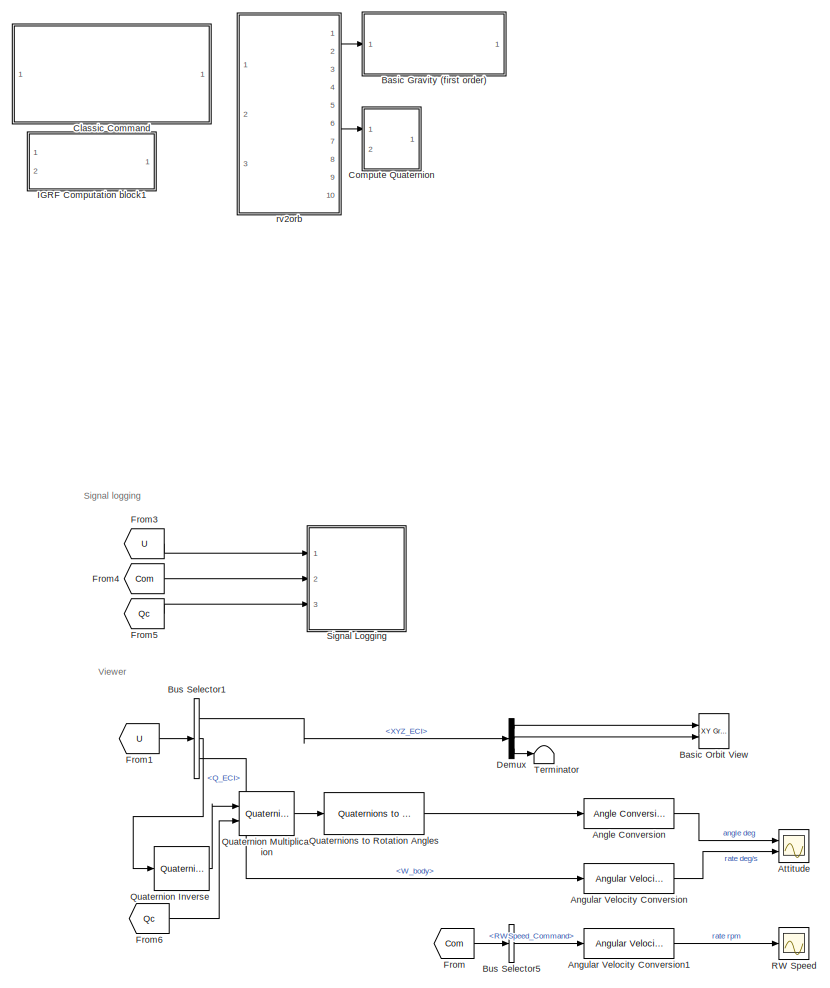
[diagram: root canvas - part 1/4, top right region]
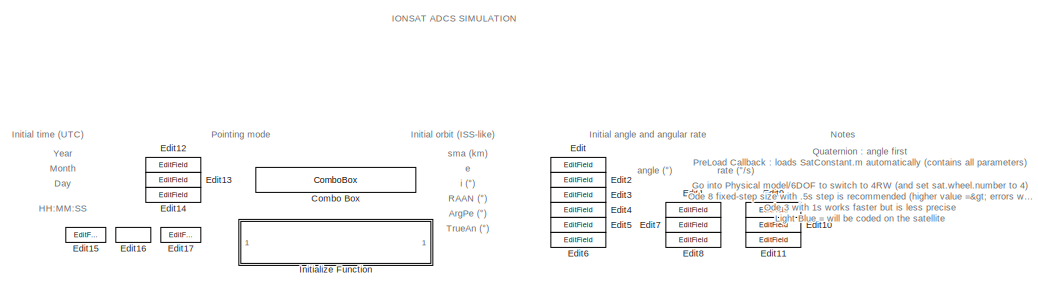
[diagram: root canvas - part 2/4, middle left region]
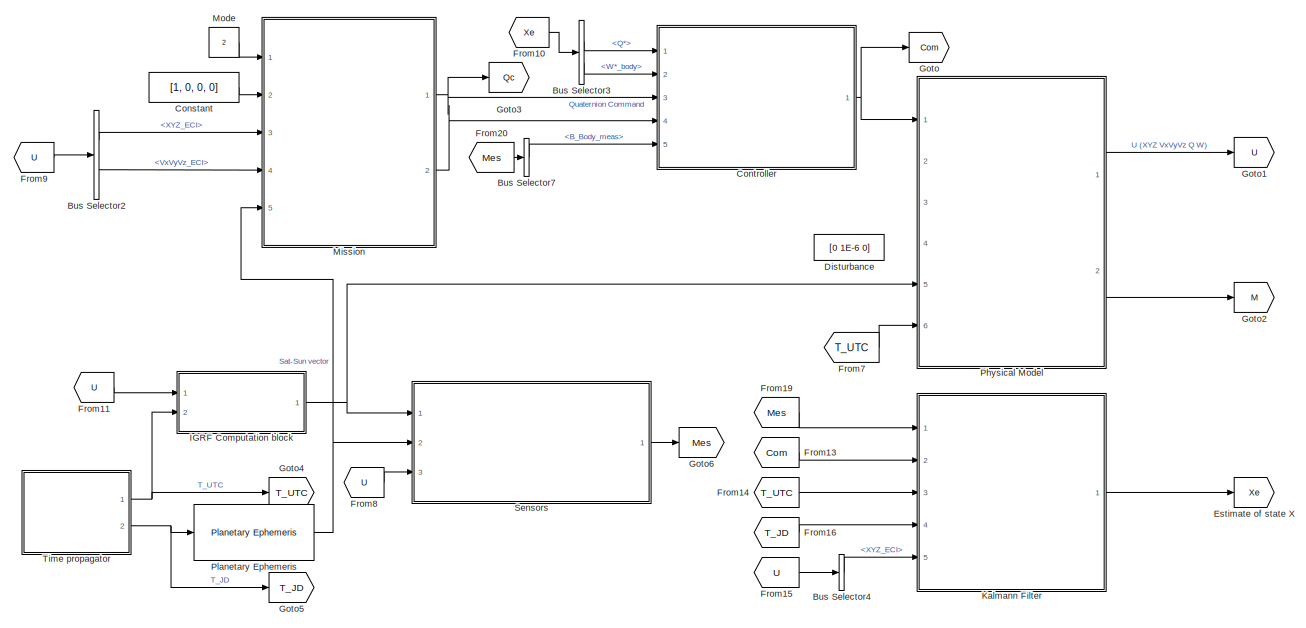
[diagram: root canvas - part 3/4, middle left region]
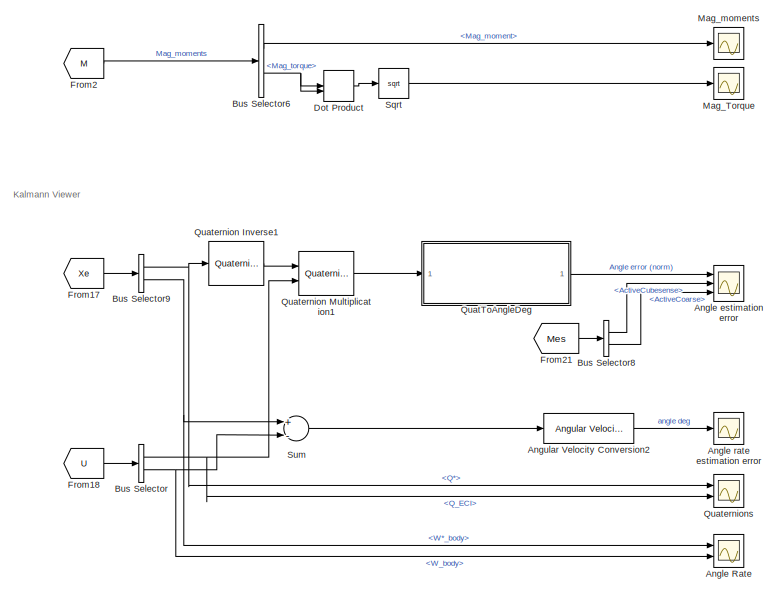
[diagram: root canvas - part 4/4, bottom right region]
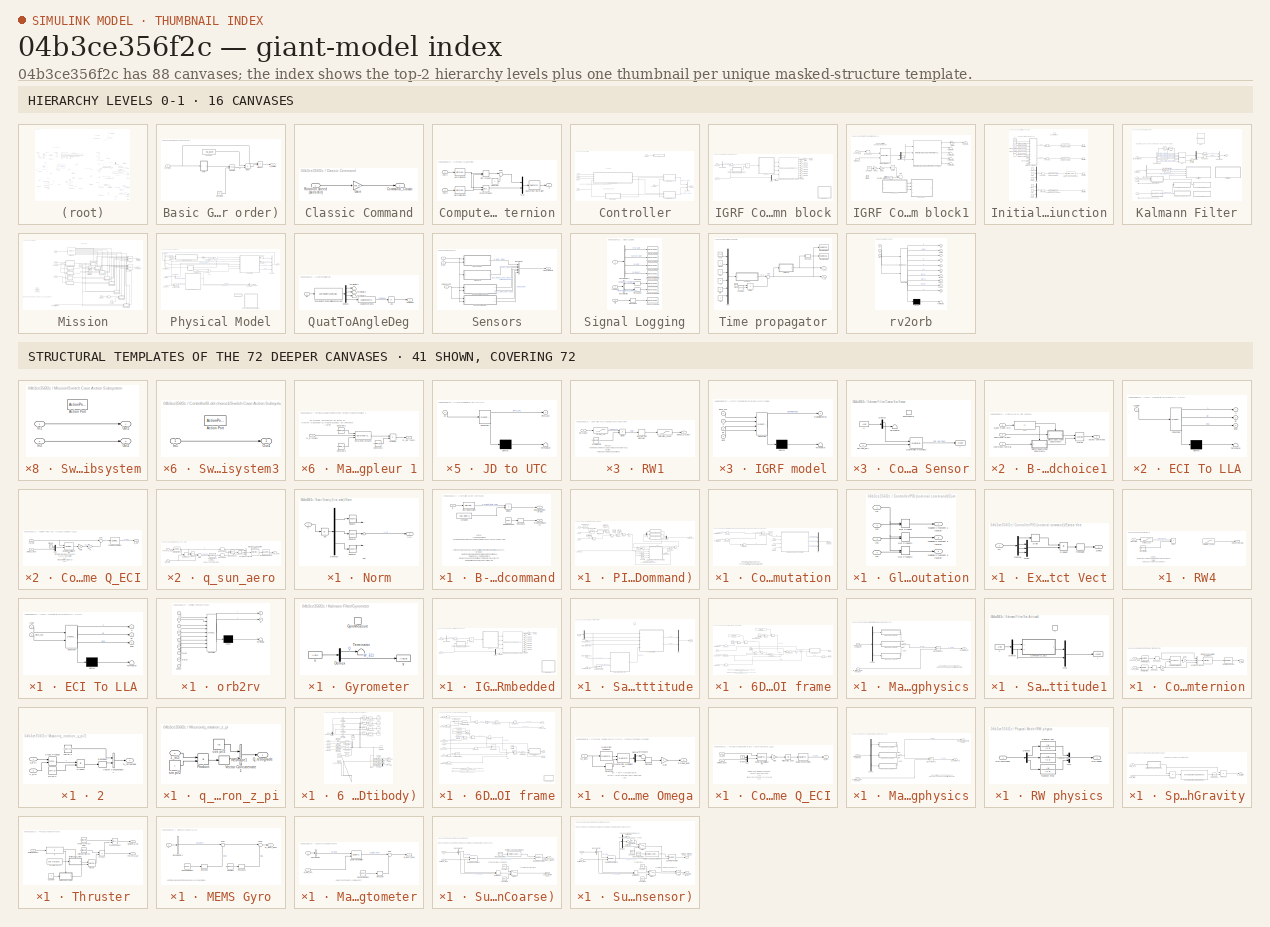
[diagram: thumbnail index - top-2 hierarchy levels (16 canvases) + 41 structural-template representatives of the remaining 72 canvases]
MODEL slx_04b3ce356f2c
KIND model
CONFIG AbsTol = auto
CONFIG EnableMultiTasking = off
CONFIG FixedStep = 1
CONFIG MaxStep = auto
CONFIG MinStep = auto
CONFIG PreLoadFcn = load('.\Data\SatConstants.mat')
CONFIG RelTol = 1e-3
CONFIG SampleTimeConstraint = Unconstrained
CONFIG Solver = ode8
CONFIG SolverName = ode8
CONFIG StartTime = 0.0
CONFIG StopTime = 8000
WORKSPACE source: MAT-file member
WORKSPACE MCOS: class17 (value not decoded)
BLOCK [Reference] Angle Conversion  REF=aerolibconvert2/Angle Conversion
  Ports = [1, 1]
  SourceBlock = aerolibconvert2/Angle Conversion
  SourceProductBaseCode = AE
  SourceProductName = Aerospace Blockset
  SourceType = Angle Conversion
BLOCK [Scope] Angle Rate
  Floating = off
  NumInputPorts = 2
  Ports = [2]
  ScopeSpecificationString = Simulink.scopes.TimeScopeBlockCfg('CurrentConfiguration', extmgr.ConfigurationSet(extmgr.Configuration('Core','General UI',true,'FigureColor',[1 1 1]),extmgr.Configuration('Core','Source UI',true),extmgr.Configuration('Sources','WiredSimulink',true,'DataLoggingVariableName','ScopeData3'),extmgr.Configuration('Visuals','Time Domain',true,'SerializedDisplays',{struct('MinYLimReal','-0.02653','MaxYLi...<+1788ch>
BLOCK [Scope] Angle estimation error
  Floating = off
  NumInputPorts = 3
  Ports = [3]
  ScopeSpecificationString = Simulink.scopes.TimeScopeBlockCfg('CurrentConfiguration', extmgr.ConfigurationSet(extmgr.Configuration('Core','General UI',true,'FigureColor',[1 1 1]),extmgr.Configuration('Core','Source UI',true),extmgr.Configuration('Sources','WiredSimulink',true,'DataLoggingVariableName','ScopeData1'),extmgr.Configuration('Visuals','Time Domain',true,'SerializedDisplays',{struct('MinYLimReal','-22.39589','MaxYL...<+2999ch>
BLOCK [Scope] Angle rate estimation error
  Floating = off
  NumInputPorts = 1
  Ports = [1]
  ScopeSpecificationString = Simulink.scopes.TimeScopeBlockCfg('CurrentConfiguration', extmgr.ConfigurationSet(extmgr.Configuration('Core','General UI',true,'FigureColor',[1 1 1]),extmgr.Configuration('Core','Source UI',true),extmgr.Configuration('Sources','WiredSimulink',true,'DataLoggingVariableName','ScopeData1'),extmgr.Configuration('Visuals','Time Domain',true,'SerializedDisplays',{struct('MinYLimReal','-0.41074','MaxYLi...<+1601ch>
BLOCK [Reference] Angular Velocity Conversion  REF=aerolibconvert2/Angular Velocity
Conversion
  Ports = [1, 1]
  SourceBlock = aerolibconvert2/Angular Velocity\nConversion
  SourceProductBaseCode = AE
  SourceProductName = Aerospace Blockset
  SourceType = Angular Velocity Conversion
BLOCK [Reference] Angular Velocity Conversion1  REF=aerolibconvert2/Angular Velocity
Conversion
  Ports = [1, 1]
  SourceBlock = aerolibconvert2/Angular Velocity\nConversion
  SourceProductBaseCode = AE
  SourceProductName = Aerospace Blockset
  SourceType = Angular Velocity Conversion
BLOCK [Reference] Angular Velocity Conversion2  REF=aerolibconvert2/Angular Velocity
Conversion
  Ports = [1, 1]
  SourceBlock = aerolibconvert2/Angular Velocity\nConversion
  SourceProductBaseCode = AE
  SourceProductName = Aerospace Blockset
  SourceType = Angular Velocity Conversion
BLOCK [Scope] Attitude
  Floating = off
  NumInputPorts = 2
  Ports = [2]
  ScopeSpecificationString = Simulink.scopes.TimeScopeBlockCfg('CurrentConfiguration', extmgr.ConfigurationSet(extmgr.Configuration('Core','General UI',true,'FigureColor',[1 1 1]),extmgr.Configuration('Core','Source UI',true),extmgr.Configuration('Sources','WiredSimulink',true,'DataLoggingVariableName','ScopeData1'),extmgr.Configuration('Visuals','Time Domain',true,'TimeAxisLabels','All','SerializedDisplays',{struct('MinYLimR...<+2366ch>
BLOCK [SubSystem] Basic Gravity (first order)
  Commented = on
  Ports = [1, 1]
  RequestExecContextInheritance = off
BLOCK [Constant] Basic Gravity (first order)/Constant
  Value = -mu_Earth
BLOCK [Constant] Basic Gravity (first order)/Constant3
  Value = 3/2
BLOCK [Product] Basic Gravity (first order)/Divide
  InputSameDT = off
  Inputs = */
  OutDataTypeStr = Inherit: Inherit via internal rule
  Ports = [2, 1]
  RndMeth = Floor
  SaturateOnIntegerOverflow = off
BLOCK [SubSystem] Basic Gravity (first order)/Norm
  Ports = [1, 1]
  RequestExecContextInheritance = off
BLOCK [Abs] Basic Gravity (first order)/Norm/Abs
  SaturateOnIntegerOverflow = off
BLOCK [Sum] Basic Gravity (first order)/Norm/Add
  InputSameDT = off
  Inputs = +++
  OutDataTypeStr = Inherit: Inherit via internal rule
  Ports = [3, 1]
  SaturateOnIntegerOverflow = off
BLOCK [Demux] Basic Gravity (first order)/Norm/Demux1
  DisplayOption = bar
  Outputs = 3
  Ports = [1, 3]
BLOCK [Math] Basic Gravity (first order)/Norm/Square
  Operator = square
  Ports = [1, 1]
BLOCK [Math] Basic Gravity (first order)/Norm/Square1
  Operator = square
  Ports = [1, 1]
BLOCK [Math] Basic Gravity (first order)/Norm/Square2
  Operator = square
  Ports = [1, 1]
BLOCK [Outport] Basic Gravity (first order)/Norm/r**2
  IconDisplay = Port number
BLOCK [Inport] Basic Gravity (first order)/Norm/u
  IconDisplay = Port number
BLOCK [Product] Basic Gravity (first order)/Product
  InputSameDT = off
  OutDataTypeStr = Inherit: Inherit via internal rule
  Ports = [2, 1]
  RndMeth = Floor
  SaturateOnIntegerOverflow = off
BLOCK [Math] Basic Gravity (first order)/Square3
  Operator = pow
  Ports = [2, 1]
BLOCK [Inport] Basic Gravity (first order)/XYZ_ECI
  IconDisplay = Port number
BLOCK [Outport] Basic Gravity (first order)/g_ECI (m//s²)
  IconDisplay = Port number
  VectorParamsAs1DForOutWhenUnconnected = on
BLOCK [Reference] Basic Orbit View  REF=simulink/Sinks/XY Graph
  Commented = on
  Ports = [2]
  SourceBlock = simulink/Sinks/XY Graph
  SourceProductBaseCode = SL
  SourceProductName = Simulink
  SourceType = XY scope.
BLOCK [BusSelector] Bus Selector
  OutputAsBus = off
  OutputSignals = Q_ECI,W_body
  Ports = [1, 2]
BLOCK [BusSelector] Bus Selector1
  OutputAsBus = off
  OutputSignals = XYZ_ECI,Q_ECI,W_body
  Ports = [1, 3]
BLOCK [BusSelector] Bus Selector2
  OutputAsBus = off
  OutputSignals = XYZ_ECI,VxVyVz_ECI
  Ports = [1, 2]
BLOCK [BusSelector] Bus Selector3
  OutputAsBus = off
  OutputSignals = Q*,W*_body
  Ports = [1, 2]
BLOCK [BusSelector] Bus Selector4
  OutputAsBus = off
  OutputSignals = XYZ_ECI
  Ports = [1, 1]
BLOCK [BusSelector] Bus Selector5
  OutputAsBus = off
  OutputSignals = RWSpeed_Command
  Ports = [1, 1]
BLOCK [BusSelector] Bus Selector6
  OutputAsBus = off
  OutputSignals = Mag_moment,Mag_torque
  Ports = [1, 2]
BLOCK [BusSelector] Bus Selector7
  OutputAsBus = off
  OutputSignals = B_Body_meas
  Ports = [1, 1]
BLOCK [BusSelector] Bus Selector8
  OutputAsBus = off
  OutputSignals = ActiveCubesense,ActiveCoarse
  Ports = [1, 2]
BLOCK [BusSelector] Bus Selector9
  OutputAsBus = off
  OutputSignals = Q*,W*_body
  Ports = [1, 2]
BLOCK [SubSystem] Classic Command
  Commented = on
  Ports = [1, 1]
  RequestExecContextInheritance = off
BLOCK [Outport] Classic Command/Command_Classic
  IconDisplay = Port number
BLOCK [Gain] Classic Command/Gain
  Gain = - sat.PID.k_mag_classic
  OutDataTypeStr = Inherit: Inherit via internal rule
  ParamDataTypeStr = Inherit: Inherit via internal rule
  SaturateOnIntegerOverflow = off
BLOCK [Inport] Classic Command/Rotation speed (sat//orbit)
  IconDisplay = Port number
BLOCK [ComboBox] Combo Box
  LabelPosition = Hide
  SelectedLabel = Sun Aero
BLOCK [SubSystem] Compute Quaternion
  Commented = on
  Ports = [2, 1]
  RequestExecContextInheritance = off
BLOCK [Constant] Compute Quaternion/Constant
BLOCK [Reference] Compute Quaternion/Cross Product  REF=vrlib/Utilities/Cross Product
  Ports = [2, 1]
  SourceBlock = vrlib/Utilities/Cross Product
  SourceProductBaseCode = SL
  SourceProductName = Simulink
  SourceType = Cross Product
BLOCK [DotProduct] Compute Quaternion/Dot Product
  OutDataTypeStr = Inherit: Inherit via internal rule
BLOCK [Mux] Compute Quaternion/Mux
  DisplayOption = bar
  Inputs = 2
  Ports = [2, 1]
BLOCK [Reference] Compute Quaternion/Normalization  REF=dspmathops/Normalization
  Ports = [1, 1]
  SourceBlock = dspmathops/Normalization
  SourceProductBaseCode = DS
  SourceProductName = DSP System Toolbox
  SourceType = Normalization
BLOCK [Reference] Compute Quaternion/Normalization1  REF=dspmathops/Normalization
  Ports = [1, 1]
  SourceBlock = dspmathops/Normalization
  SourceProductBaseCode = DS
  SourceProductName = DSP System Toolbox
  SourceType = Normalization
BLOCK [Reference] Compute Quaternion/Quaternion Normalize  REF=sharedutil/Quaternion
Normalize
  Ports = [1, 1]
  SourceBlock = sharedutil/Quaternion\nNormalize
  SourceProductBaseCode = AE
  SourceProductName = Aerospace Blockset
  SourceType = Quaternion Normalize
BLOCK [Sum] Compute Quaternion/Sum
  IconShape = round
  InputSameDT = off
  Inputs = |++
  OutDataTypeStr = Inherit: Inherit via internal rule
  Ports = [2, 1]
  SaturateOnIntegerOverflow = off
BLOCK [Inport] Compute Quaternion/Vect1
  IconDisplay = Port number
BLOCK [Inport] Compute Quaternion/Vect2
  IconDisplay = Port number
  Port = 2
BLOCK [Outport] Compute Quaternion/q
  IconDisplay = Port number
  PortDimensions = 4
BLOCK [Constant] Constant
  Value = [1, 0, 0, 0]
BLOCK [SubSystem] Controller
  Ports = [5, 1]
  RequestExecContextInheritance = off
  TreatAsAtomicUnit = on
BLOCK [SubSystem] Controller/B-dot choice1
  Ports = [3, 1]
  RequestExecContextInheritance = off
BLOCK [Inport] Controller/B-dot choice1/ command (normal)
  IconDisplay = Port number
BLOCK [Inport] Controller/B-dot choice1/B_dot mode (0//1)
  IconDisplay = Port number
  Port = 3
BLOCK [Inport] Controller/B-dot choice1/Command (B-dot)
  IconDisplay = Port number
  Port = 2
BLOCK [If] Controller/B-dot choice1/If1
  Ports = [1, 2]
BLOCK [Merge] Controller/B-dot choice1/Merge
  Ports = [2, 1]
BLOCK [SubSystem] Controller/B-dot choice1/Switch Case Action Subsystem3
  Ports = [1, 1, 0, 0, 0, 0, 0, 1]
  RequestExecContextInheritance = off
  TreatAsAtomicUnit = on
BLOCK [ActionPort] Controller/B-dot choice1/Switch Case Action Subsystem3/Action Port
  ActionPortLabel = if(u1 > 0)
BLOCK [Inport] Controller/B-dot choice1/Switch Case Action Subsystem3/In1
  IconDisplay = Port number
BLOCK [Outport] Controller/B-dot choice1/Switch Case Action Subsystem3/Out1
  IconDisplay = Port number
BLOCK [SubSystem] Controller/B-dot choice1/Switch Case Action Subsystem4
  Ports = [1, 1, 0, 0, 0, 0, 0, 1]
  RequestExecContextInheritance = off
  TreatAsAtomicUnit = on
BLOCK [ActionPort] Controller/B-dot choice1/Switch Case Action Subsystem4/Action Port
  ActionPortLabel = else
BLOCK [Inport] Controller/B-dot choice1/Switch Case Action Subsystem4/In1
  IconDisplay = Port number
BLOCK [Outport] Controller/B-dot choice1/Switch Case Action Subsystem4/Out1
  IconDisplay = Port number
BLOCK [Outport] Controller/B-dot choice1/output command
  IconDisplay = Port number
BLOCK [SubSystem] Controller/B-dot choice2
  Ports = [3, 1]
  RequestExecContextInheritance = off
BLOCK [Inport] Controller/B-dot choice2/ command (normal)
  IconDisplay = Port number
BLOCK [Inport] Controller/B-dot choice2/B_dot mode (0//1)
  IconDisplay = Port number
  Port = 3
BLOCK [Inport] Controller/B-dot choice2/Command (B-dot)
  IconDisplay = Port number
  Port = 2
BLOCK [If] Controller/B-dot choice2/If1
  Ports = [1, 2]
BLOCK [Merge] Controller/B-dot choice2/Merge
  Ports = [2, 1]
BLOCK [SubSystem] Controller/B-dot choice2/Switch Case Action Subsystem3
  Ports = [1, 1, 0, 0, 0, 0, 0, 1]
  RequestExecContextInheritance = off
  TreatAsAtomicUnit = on
BLOCK [ActionPort] Controller/B-dot choice2/Switch Case Action Subsystem3/Action Port
  ActionPortLabel = if(u1 > 0)
BLOCK [Inport] Controller/B-dot choice2/Switch Case Action Subsystem3/In1
  IconDisplay = Port number
BLOCK [Outport] Controller/B-dot choice2/Switch Case Action Subsystem3/Out1
  IconDisplay = Port number
BLOCK [SubSystem] Controller/B-dot choice2/Switch Case Action Subsystem4
  Ports = [1, 1, 0, 0, 0, 0, 0, 1]
  RequestExecContextInheritance = off
  TreatAsAtomicUnit = on
BLOCK [ActionPort] Controller/B-dot choice2/Switch Case Action Subsystem4/Action Port
  ActionPortLabel = else
BLOCK [Inport] Controller/B-dot choice2/Switch Case Action Subsystem4/In1
  IconDisplay = Port number
BLOCK [Outport] Controller/B-dot choice2/Switch Case Action Subsystem4/Out1
  IconDisplay = Port number
BLOCK [Outport] Controller/B-dot choice2/output command
  IconDisplay = Port number
BLOCK [SubSystem] Controller/B-dot command
  Ports = [1, 2]
  RequestExecContextInheritance = off
  TreatAsAtomicUnit = on
BLOCK [Inport] Controller/B-dot command/B
  IconDisplay = Port number
BLOCK [Reference] Controller/B-dot command/Discrete Derivative  REF=simulink/Discrete/Discrete Derivative
  Ports = [1, 1]
  SourceBlock = simulink/Discrete/Discrete Derivative
  SourceProductBaseCode = SL
  SourceProductName = Simulink
  SourceType = Discrete Derivative
BLOCK [Product] Controller/B-dot command/Divide1
  InputSameDT = off
  Inputs = **
  OutDataTypeStr = Inherit: Inherit via internal rule
  Ports = [2, 1]
  RndMeth = Floor
  SaturateOnIntegerOverflow = off
BLOCK [Outport] Controller/B-dot command/Magnetic moment (B-dot)
  IconDisplay = Port number
BLOCK [Reshape] Controller/B-dot command/Reshape2
  OutputDimensionality = Column vector (2-D)
  Ports = [1, 1]
BLOCK [Outport] Controller/B-dot command/Wheel command (0)
  IconDisplay = Port number
  Port = 2
BLOCK [Constant] Controller/B-dot command/constant c
  Value = -sat.bdot_c
BLOCK [Constant] Controller/B-dot command/wheels unused
  Value = [0, 0, 0]
BLOCK [Inport] Controller/B_Body
  IconDisplay = Port number
  Port = 5
BLOCK [Inport] Controller/B_dot mode
  IconDisplay = Port number
  Port = 4
BLOCK [BusCreator] Controller/Bus Creator
  DisplayOption = bar
  InheritFromInputs = on
  Inputs = 2
  Ports = [2, 1]
BLOCK [Outport] Controller/Command
  IconDisplay = Port number
BLOCK [Ground] Controller/Ground2
  Commented = on
BLOCK [SubSystem] Controller/PID (nominal command)
  Ports = [4, 2]
  RequestExecContextInheritance = off
  SystemSampleTime = 1
  TreatAsAtomicUnit = on
BLOCK [Inport] Controller/PID (nominal command)/B_IGRF_Body
  IconDisplay = Port number
  Port = 4
BLOCK [SubSystem] Controller/PID (nominal command)/Command Magnetic moments computation
  Ports = [5, 1]
  RequestExecContextInheritance = off
BLOCK [Inport] Controller/PID (nominal command)/Command Magnetic moments computation/B_IGRF_body (vect)
  IconDisplay = Port number
  OutDataTypeStr = double
  Port = 2
BLOCK [Inport] Controller/PID (nominal command)/Command Magnetic moments computation/Command (vect)
  IconDisplay = Port number
  OutDataTypeStr = double
BLOCK [Reference] Controller/PID (nominal command)/Command Magnetic moments computation/Cross Product  REF=vrlib/Utilities/Cross Product
  Ports = [2, 1]
  SourceBlock = vrlib/Utilities/Cross Product
  SourceProductBaseCode = SL
  SourceProductName = Simulink
  SourceType = Cross Product
BLOCK [DotProduct] Controller/PID (nominal command)/Command Magnetic moments computation/Dot Product
  OutDataTypeStr = Inherit: Inherit via internal rule
BLOCK [SubSystem] Controller/PID (nominal command)/Command Magnetic moments computation/Global magnetic moment computation
  Ports = [4, 3]
  RequestExecContextInheritance = off
BLOCK [DotProduct] Controller/PID (nominal command)/Command Magnetic moments computation/Global magnetic moment computation/Dot Product
  OutDataTypeStr = Inherit: Inherit via internal rule
BLOCK [DotProduct] Controller/PID (nominal command)/Command Magnetic moments computation/Global magnetic moment computation/Dot Product1
  OutDataTypeStr = Inherit: Inherit via internal rule
BLOCK [DotProduct] Controller/PID (nominal command)/Command Magnetic moments computation/Global magnetic moment computation/Dot Product2
  OutDataTypeStr = Inherit: Inherit via internal rule
BLOCK [Inport] Controller/PID (nominal command)/Command Magnetic moments computation/Global magnetic moment computation/In1
  IconDisplay = Port number
  OutDataTypeStr = double
BLOCK [Inport] Controller/PID (nominal command)/Command Magnetic moments computation/Global magnetic moment computation/In2
  IconDisplay = Port number
  Port = 2
BLOCK [Inport] Controller/PID (nominal command)/Command Magnetic moments computation/Global magnetic moment computation/In3
  IconDisplay = Port number
  Port = 3
BLOCK [Inport] Controller/PID (nominal command)/Command Magnetic moments computation/Global magnetic moment computation/In4
  IconDisplay = Port number
  Port = 4
BLOCK [Outport] Controller/PID (nominal command)/Command Magnetic moments computation/Global magnetic moment computation/magnetic moment 1 (scalar)
  IconDisplay = Port number
  VectorParamsAs1DForOutWhenUnconnected = on
BLOCK [Outport] Controller/PID (nominal command)/Command Magnetic moments computation/Global magnetic moment computation/magnetic moment 2 (scalar)
  IconDisplay = Port number
  Port = 2
  VectorParamsAs1DForOutWhenUnconnected = on
BLOCK [Outport] Controller/PID (nominal command)/Command Magnetic moments computation/Global magnetic moment computation/magnetic moment 3 (scalar)
  IconDisplay = Port number
  Port = 3
  VectorParamsAs1DForOutWhenUnconnected = on
BLOCK [Outport] Controller/PID (nominal command)/Command Magnetic moments computation/Mag vector command
  IconDisplay = Port number
BLOCK [Mux] Controller/PID (nominal command)/Command Magnetic moments computation/Mux
  DisplayOption = bar
  Inputs = 3
  Ports = [3, 1]
BLOCK [Product] Controller/PID (nominal command)/Command Magnetic moments computation/Product1
  InputSameDT = off
  Inputs = */
  OutDataTypeStr = Inherit: Inherit via internal rule
  Ports = [2, 1]
  RndMeth = Floor
  SaturateOnIntegerOverflow = off
BLOCK [Reshape] Controller/PID (nominal command)/Command Magnetic moments computation/Reshape
  OutputDimensionality = Column vector (2-D)
  Ports = [1, 1]
BLOCK [Reshape] Controller/PID (nominal command)/Command Magnetic moments computation/Reshape1
  OutputDimensionality = Column vector (2-D)
  Ports = [1, 1]
BLOCK [Inport] Controller/PID (nominal command)/Command Magnetic moments computation/h1 (vect)
  IconDisplay = Port number
  Port = 3
BLOCK [Inport] Controller/PID (nominal command)/Command Magnetic moments computation/h2 (vect)
  IconDisplay = Port number
  Port = 4
BLOCK [Inport] Controller/PID (nominal command)/Command Magnetic moments computation/h3 (vect)
  IconDisplay = Port number
  Port = 5
BLOCK [Constant] Controller/PID (nominal command)/Constant6
  Value = sat.mag_t.axe1
BLOCK [Constant] Controller/PID (nominal command)/Constant7
  Value = sat.mag_t.axe2
BLOCK [Constant] Controller/PID (nominal command)/Constant8
  Value = sat.mag_t.axe3
BLOCK [Reference] Controller/PID (nominal command)/Cross Product  REF=vrlib/Utilities/Cross Product
  Ports = [2, 1]
  SourceBlock = vrlib/Utilities/Cross Product
  SourceProductBaseCode = SL
  SourceProductName = Simulink
  SourceType = Cross Product
BLOCK [Demux] Controller/PID (nominal command)/Demux
  DisplayOption = bar
  Outputs = 3
  Ports = [1, 3]
BLOCK [SubSystem] Controller/PID (nominal command)/Extract Vect
  Ports = [1, 1]
  RequestExecContextInheritance = off
BLOCK [Demux] Controller/PID (nominal command)/Extract Vect/Demux
  DisplayOption = bar
  Ports = [1, 4]
BLOCK [Mux] Controller/PID (nominal command)/Extract Vect/Mux1
  DisplayOption = bar
  Inputs = 3
  Ports = [3, 1]
BLOCK [Product] Controller/PID (nominal command)/Extract Vect/Product
  InputSameDT = off
  OutDataTypeStr = Inherit: Inherit via internal rule
  Ports = [2, 1]
  RndMeth = Floor
  SaturateOnIntegerOverflow = off
BLOCK [Inport] Controller/PID (nominal command)/Extract Vect/Qr
  IconDisplay = Port number
BLOCK [Outport] Controller/PID (nominal command)/Extract Vect/Qvect
  IconDisplay = Port number
BLOCK [Reshape] Controller/PID (nominal command)/Extract Vect/Reshape
  OutputDimensionality = Column vector (2-D)
  Ports = [1, 1]
BLOCK [Signum] Controller/PID (nominal command)/Extract Vect/Sign
BLOCK [Gain] Controller/PID (nominal command)/Gain
  Gain = -1
  OutDataTypeStr = Inherit: Inherit via internal rule
  ParamDataTypeStr = Inherit: Inherit via internal rule
  SaturateOnIntegerOverflow = off
BLOCK [Constant] Controller/PID (nominal command)/Inertia
  Value = sat.inertia
BLOCK [Constant] Controller/PID (nominal command)/Kd
  Value = sat.PID.kd
BLOCK [Constant] Controller/PID (nominal command)/Kp
  Value = sat.PID.kp
BLOCK [Outport] Controller/PID (nominal command)/Mag Command
  IconDisplay = Port number
  Port = 2
BLOCK [Mux] Controller/PID (nominal command)/Mux
  DisplayOption = bar
  Inputs = 3
  Ports = [3, 1]
BLOCK [Sum] Controller/PID (nominal command)/Plus
  InputSameDT = off
  OutDataTypeStr = Inherit: Inherit via internal rule
  Ports = [2, 1]
  SaturateOnIntegerOverflow = off
BLOCK [Sum] Controller/PID (nominal command)/Plus1
  InputSameDT = off
  Inputs = +-
  OutDataTypeStr = Inherit: Inherit via internal rule
  Ports = [2, 1]
  SaturateOnIntegerOverflow = off
BLOCK [Product] Controller/PID (nominal command)/Product1
  InputSameDT = off
  OutDataTypeStr = Inherit: Inherit via internal rule
  Ports = [2, 1]
  RndMeth = Floor
  SaturateOnIntegerOverflow = off
BLOCK [Product] Controller/PID (nominal command)/Product2
  InputSameDT = off
  OutDataTypeStr = Inherit: Inherit via internal rule
  Ports = [2, 1]
  RndMeth = Floor
  SaturateOnIntegerOverflow = off
BLOCK [Product] Controller/PID (nominal command)/Product3
  InputSameDT = off
  Multiplication = Matrix(*)
  OutDataTypeStr = Inherit: Inherit via internal rule
  Ports = [2, 1]
  RndMeth = Floor
  SaturateOnIntegerOverflow = off
BLOCK [Product] Controller/PID (nominal command)/Product4
  InputSameDT = off
  Multiplication = Matrix(*)
  OutDataTypeStr = Inherit: Inherit via internal rule
  Ports = [2, 1]
  RndMeth = Floor
  SaturateOnIntegerOverflow = off
BLOCK [Inport] Controller/PID (nominal command)/Q_ECI
  IconDisplay = Port number
BLOCK [Inport] Controller/PID (nominal command)/Qc_ECI
  IconDisplay = Port number
  Port = 2
BLOCK [Reference] Controller/PID (nominal command)/Quaternion Inverse  REF=aerolibutil/Quaternion
Inverse
  Ports = [1, 1]
  SourceBlock = aerolibutil/Quaternion\nInverse
  SourceProductBaseCode = AE
  SourceProductName = Aerospace Blockset
  SourceType = Quaternion Inverse
BLOCK [Reference] Controller/PID (nominal command)/Quaternion Multiplication  REF=aerolibutil/Quaternion
Multiplication
  Ports = [2, 1]
  SourceBlock = aerolibutil/Quaternion\nMultiplication
  SourceProductBaseCode = AE
  SourceProductName = Aerospace Blockset
  SourceType = Quaternion Multiplication
BLOCK [Outport] Controller/PID (nominal command)/RW Command
  IconDisplay = Port number
BLOCK [SubSystem] Controller/PID (nominal command)/RW1
  Ports = [1, 1]
  RequestExecContextInheritance = off
BLOCK [DiscreteIntegrator] Controller/PID (nominal command)/RW1/Discrete-Time Integrator
  ICPrevOutput = DiscIntNeverNeededParam
  ICPrevScaledInput = DiscIntNeverNeededParam
  InitialConditionSetting = Auto
  IntegratorMethod = Integration: Trapezoidal
  Ports = [1, 1]
  SampleTime = -1
BLOCK [Product] Controller/PID (nominal command)/RW1/Divide
  InputSameDT = off
  Inputs = */
  OutDataTypeStr = Inherit: Inherit via internal rule
  Ports = [2, 1]
  RndMeth = Floor
  SaturateOnIntegerOverflow = off
BLOCK [Inport] Controller/PID (nominal command)/RW1/Mc (scalar)
  IconDisplay = Port number
BLOCK [Outport] Controller/PID (nominal command)/RW1/Omega_C (scalar)
  IconDisplay = Port number
  VectorParamsAs1DForOutWhenUnconnected = on
BLOCK [Saturate] Controller/PID (nominal command)/RW1/Saturation_speed
  InputPortMap = u0
  LowerLimit = - sat.wheel.max_speed
  Ports = [1, 1]
  UpperLimit = sat.wheel.max_speed
BLOCK [Saturate] Controller/PID (nominal command)/RW1/Torque_sat
  InputPortMap = u0
  LowerLimit = - sat.wheel.max_torque
  Ports = [1, 1]
  UpperLimit = sat.wheel.max_torque
BLOCK [Constant] Controller/PID (nominal command)/RW1/Wheel Inertia
  Value = sat.wheel.max_sigma/sat.wheel.max_speed
BLOCK [SubSystem] Controller/PID (nominal command)/RW2
  Ports = [1, 1]
  RequestExecContextInheritance = off
BLOCK [DiscreteIntegrator] Controller/PID (nominal command)/RW2/Discrete-Time Integrator
  ICPrevOutput = DiscIntNeverNeededParam
  ICPrevScaledInput = DiscIntNeverNeededParam
  InitialConditionSetting = Auto
  IntegratorMethod = Integration: Trapezoidal
  Ports = [1, 1]
  SampleTime = -1
BLOCK [Product] Controller/PID (nominal command)/RW2/Divide
  InputSameDT = off
  Inputs = */
  OutDataTypeStr = Inherit: Inherit via internal rule
  Ports = [2, 1]
  RndMeth = Floor
  SaturateOnIntegerOverflow = off
BLOCK [Inport] Controller/PID (nominal command)/RW2/Mc (scalar)
  IconDisplay = Port number
BLOCK [Outport] Controller/PID (nominal command)/RW2/Omega_C (scalar)
  IconDisplay = Port number
  VectorParamsAs1DForOutWhenUnconnected = on
BLOCK [Saturate] Controller/PID (nominal command)/RW2/Saturation_speed
  InputPortMap = u0
  LowerLimit = - sat.wheel.max_speed
  Ports = [1, 1]
  UpperLimit = sat.wheel.max_speed
BLOCK [Saturate] Controller/PID (nominal command)/RW2/Torque_sat
  InputPortMap = u0
  LowerLimit = - sat.wheel.max_torque
  Ports = [1, 1]
  UpperLimit = sat.wheel.max_torque
BLOCK [Constant] Controller/PID (nominal command)/RW2/Wheel Inertia
  Value = sat.wheel.max_sigma/sat.wheel.max_speed
BLOCK [SubSystem] Controller/PID (nominal command)/RW3
  Ports = [1, 1]
  RequestExecContextInheritance = off
BLOCK [DiscreteIntegrator] Controller/PID (nominal command)/RW3/Discrete-Time Integrator
  ICPrevOutput = DiscIntNeverNeededParam
  ICPrevScaledInput = DiscIntNeverNeededParam
  InitialConditionSetting = Auto
  IntegratorMethod = Integration: Trapezoidal
  Ports = [1, 1]
  SampleTime = -1
BLOCK [Product] Controller/PID (nominal command)/RW3/Divide
  InputSameDT = off
  Inputs = */
  OutDataTypeStr = Inherit: Inherit via internal rule
  Ports = [2, 1]
  RndMeth = Floor
  SaturateOnIntegerOverflow = off
BLOCK [Inport] Controller/PID (nominal command)/RW3/Mc (scalar)
  IconDisplay = Port number
BLOCK [Outport] Controller/PID (nominal command)/RW3/Omega_C (scalar)
  IconDisplay = Port number
  VectorParamsAs1DForOutWhenUnconnected = on
BLOCK [Saturate] Controller/PID (nominal command)/RW3/Saturation_speed
  InputPortMap = u0
  LowerLimit = - sat.wheel.max_speed
  Ports = [1, 1]
  UpperLimit = sat.wheel.max_speed
BLOCK [Saturate] Controller/PID (nominal command)/RW3/Torque_sat
  InputPortMap = u0
  LowerLimit = - sat.wheel.max_torque
  Ports = [1, 1]
  UpperLimit = sat.wheel.max_torque
BLOCK [Constant] Controller/PID (nominal command)/RW3/Wheel Inertia
  Value = sat.wheel.max_sigma/sat.wheel.max_speed
BLOCK [Constant] Controller/PID (nominal command)/Repartition
  Value = sat.wheel.repartition_matrix_3RW
BLOCK [Sum] Controller/PID (nominal command)/Subtract
  InputSameDT = off
  Inputs = +-
  OutDataTypeStr = Inherit: Inherit via internal rule
  Ports = [2, 1]
  SaturateOnIntegerOverflow = off
BLOCK [Inport] Controller/PID (nominal command)/W_Body
  IconDisplay = Port number
  Port = 3
BLOCK [Gain] Controller/PID (nominal command)/kp_mag
  Gain = -sat.PID.kpmag
  OutDataTypeStr = Inherit: Inherit via internal rule
  ParamDataTypeStr = Inherit: Inherit via internal rule
  SaturateOnIntegerOverflow = off
BLOCK [Inport] Controller/Q_ECI
  IconDisplay = Port number
BLOCK [Inport] Controller/Qc_ECI
  IconDisplay = Port number
  Port = 3
BLOCK [SubSystem] Controller/RW4
  Commented = on
  Ports = [1, 1]
  RequestExecContextInheritance = off
BLOCK [Product] Controller/RW4/Divide
  InputSameDT = off
  Inputs = */
  OutDataTypeStr = Inherit: Inherit via internal rule
  Ports = [2, 1]
  RndMeth = Floor
  SaturateOnIntegerOverflow = off
BLOCK [Inport] Controller/RW4/Mc (scalar)
  IconDisplay = Port number
BLOCK [Outport] Controller/RW4/Omega_C (scalar)
  IconDisplay = Port number
  VectorParamsAs1DForOutWhenUnconnected = on
BLOCK [Saturate] Controller/RW4/Saturation_speed
  InputPortMap = u0
  LowerLimit = - sat.wheel.max_speed
  Ports = [1, 1]
  UpperLimit = sat.wheel.max_speed
BLOCK [Saturate] Controller/RW4/Torque_sat
  InputPortMap = u0
  LowerLimit = - sat.wheel.max_torque
  Ports = [1, 1]
  UpperLimit = sat.wheel.max_torque
BLOCK [Constant] Controller/RW4/Wheel Inertia
  Value = sat.wheel.max_sigma/sat.wheel.max_speed
BLOCK [Inport] Controller/W_body
  IconDisplay = Port number
  Port = 2
BLOCK [Demux] Demux
  DisplayOption = bar
  Outputs = 3
  Ports = [1, 3]
BLOCK [Constant] Disturbance
  Value = [0 1E-6 0]
BLOCK [DotProduct] Dot Product
  OutDataTypeStr = Inherit: Inherit via internal rule
BLOCK [EditField] Edit
  Alignment = Center
  LabelPosition = Hide
  ShowInitialText = on
BLOCK [EditField] Edit1
  Alignment = Center
  LabelPosition = Hide
  ShowInitialText = on
BLOCK [EditField] Edit10
  Alignment = Center
  LabelPosition = Hide
  ShowInitialText = on
BLOCK [EditField] Edit11
  Alignment = Center
  LabelPosition = Hide
  ShowInitialText = on
BLOCK [EditField] Edit12
  Alignment = Center
  LabelPosition = Hide
  ShowInitialText = on
BLOCK [EditField] Edit13
  Alignment = Center
  LabelPosition = Hide
  ShowInitialText = on
BLOCK [EditField] Edit14
  Alignment = Center
  LabelPosition = Hide
  ShowInitialText = on
BLOCK [EditField] Edit15
  Alignment = Center
  LabelPosition = Hide
  ShowInitialText = on
BLOCK [EditField] Edit16
  Alignment = Center
  LabelPosition = Hide
  ShowInitialText = on
BLOCK [EditField] Edit17
  Alignment = Center
  LabelPosition = Hide
  ShowInitialText = on
BLOCK [EditField] Edit2
  Alignment = Center
  LabelPosition = Hide
  ShowInitialText = on
BLOCK [EditField] Edit3
  Alignment = Center
  LabelPosition = Hide
  ShowInitialText = on
BLOCK [EditField] Edit4
  Alignment = Center
  LabelPosition = Hide
  ShowInitialText = on
BLOCK [EditField] Edit5
  Alignment = Center
  LabelPosition = Hide
  ShowInitialText = on
BLOCK [EditField] Edit6
  Alignment = Center
  LabelPosition = Hide
  ShowInitialText = on
BLOCK [EditField] Edit7
  Alignment = Center
  LabelPosition = Hide
  ShowInitialText = on
BLOCK [EditField] Edit8
  Alignment = Center
  LabelPosition = Hide
  ShowInitialText = on
BLOCK [EditField] Edit9
  Alignment = Center
  LabelPosition = Hide
  ShowInitialText = on
BLOCK [Goto] Estimate of state X
  GotoTag = Xe
BLOCK [From] From
  GotoTag = Com
BLOCK [From] From1
  GotoTag = U
BLOCK [From] From10
  GotoTag = Xe
BLOCK [From] From11
  GotoTag = U
BLOCK [From] From13
  GotoTag = Com
BLOCK [From] From14
  GotoTag = T_UTC
BLOCK [From] From15
  GotoTag = U
BLOCK [From] From16
  GotoTag = T_JD
BLOCK [From] From17
  GotoTag = Xe
BLOCK [From] From18
  GotoTag = U
BLOCK [From] From19
  GotoTag = Mes
BLOCK [From] From2
  GotoTag = M
BLOCK [From] From20
  GotoTag = Mes
BLOCK [From] From21
  GotoTag = Mes
BLOCK [From] From3
  GotoTag = U
BLOCK [From] From4
  GotoTag = Com
BLOCK [From] From5
  GotoTag = Qc
BLOCK [From] From6
  GotoTag = Qc
BLOCK [From] From7
  GotoTag = T_UTC
BLOCK [From] From8
  GotoTag = U
BLOCK [From] From9
  GotoTag = U
BLOCK [Goto] Goto
  GotoTag = Com
BLOCK [Goto] Goto1
  GotoTag = U
BLOCK [Goto] Goto2
  GotoTag = M
BLOCK [Goto] Goto3
  GotoTag = Qc
BLOCK [Goto] Goto4
  GotoTag = T_UTC
BLOCK [Goto] Goto5
  GotoTag = T_JD
BLOCK [Goto] Goto6
  GotoTag = Mes
BLOCK [SubSystem] IGRF Computation block
  Ports = [2, 1]
  RequestExecContextInheritance = off
BLOCK [Inport] IGRF Computation block/<XYZ_ECI>
  IconDisplay = Port number
BLOCK [Outport] IGRF Computation block/B_ECI
  IconDisplay = Port number
BLOCK [BusSelector] IGRF Computation block/Bus Selector4
  OutputAsBus = off
  OutputSignals = XYZ_ECI
  Ports = [1, 1]
BLOCK [Demux] IGRF Computation block/Demux
  DisplayOption = bar
  Outputs = 2
  Ports = [1, 2]
BLOCK [SubSystem] IGRF Computation block/ECI To LLA
  ErrorFcn = Stateflow.Translate.translate
  PermitHierarchicalResolution = ExplicitOnly
  Ports = [1, 3]
  RequestExecContextInheritance = off
  SFBlockType = MATLAB Function
  TreatAsAtomicUnit = on
BLOCK [Demux] IGRF Computation block/ECI To LLA/ Demux 
  Outputs = 1
  Ports = [1, 1]
BLOCK [S-Function] IGRF Computation block/ECI To LLA/ SFunction 
  EnableBusSupport = on
  FunctionName = sf_sfun
  PortCounts = [1 4]
  Ports = [1, 4]
  SFcnIsStateOwnerBlock = off
  SFunctionDeploymentMode = off
  Tag = Stateflow S-Function IonSatSimulation_ne_marche_pas 3
BLOCK [Terminator] IGRF Computation block/ECI To LLA/ Terminator 
BLOCK [Inport] IGRF Computation block/ECI To LLA/X_ECEF
  IconDisplay = Port number
BLOCK [Outport] IGRF Computation block/ECI To LLA/h
  IconDisplay = Port number
BLOCK [Outport] IGRF Computation block/ECI To LLA/lat
  IconDisplay = Port number
  Port = 2
BLOCK [Outport] IGRF Computation block/ECI To LLA/long
  IconDisplay = Port number
  Port = 3
BLOCK [SubSystem] IGRF Computation block/ECI to ECEF IAU-2000//2006 à remplacer par un bloc codable
  ErrorFcn = Stateflow.Translate.translate
  PermitHierarchicalResolution = ExplicitOnly
  Ports = [1, 1]
  RequestExecContextInheritance = off
  SFBlockType = MATLAB Function
  TreatAsAtomicUnit = on
BLOCK [Demux] IGRF Computation block/ECI to ECEF IAU-2000//2006 à remplacer par un bloc codable/ Demux 
  Outputs = 1
  Ports = [1, 1]
BLOCK [S-Function] IGRF Computation block/ECI to ECEF IAU-2000//2006 à remplacer par un bloc codable/ SFunction 
  EnableBusSupport = on
  FunctionName = sf_sfun
  PortCounts = [1 2]
  Ports = [1, 2]
  SFcnIsStateOwnerBlock = off
  SFunctionDeploymentMode = off
  Tag = Stateflow S-Function IonSatSimulation_ne_marche_pas 10
BLOCK [Terminator] IGRF Computation block/ECI to ECEF IAU-2000//2006 à remplacer par un bloc codable/ Terminator 
BLOCK [Outport] IGRF Computation block/ECI to ECEF IAU-2000//2006 à remplacer par un bloc codable/DCM
  IconDisplay = Port number
BLOCK [Inport] IGRF Computation block/ECI to ECEF IAU-2000//2006 à remplacer par un bloc codable/Time_UTC
  IconDisplay = Port number
BLOCK [SubSystem] IGRF Computation block/IGRF model
  Commented = on
  ErrorFcn = Stateflow.Translate.translate
  PermitHierarchicalResolution = ExplicitOnly
  Ports = [4, 1]
  RequestExecContextInheritance = off
  SFBlockType = MATLAB Function
  TreatAsAtomicUnit = on
BLOCK [Demux] IGRF Computation block/IGRF model/ Demux 
  Outputs = 1
  Ports = [1, 1]
BLOCK [S-Function] IGRF Computation block/IGRF model/ SFunction 
  EnableBusSupport = on
  FunctionName = sf_sfun
  PortCounts = [4 2]
  Ports = [4, 2]
  SFcnIsStateOwnerBlock = off
  SFunctionDeploymentMode = off
  Tag = Stateflow S-Function IonSatSimulation_ne_marche_pas 4
BLOCK [Terminator] IGRF Computation block/IGRF model/ Terminator 
BLOCK [Inport] IGRF Computation block/IGRF model/Time_UTC
  IconDisplay = Port number
BLOCK [Inport] IGRF Computation block/IGRF model/h
  IconDisplay = Port number
  Port = 2
BLOCK [Inport] IGRF Computation block/IGRF model/lat
  IconDisplay = Port number
  Port = 3
BLOCK [Inport] IGRF Computation block/IGRF model/long
  IconDisplay = Port number
  Port = 4
BLOCK [Outport] IGRF Computation block/IGRF model/magFieldVector
  IconDisplay = Port number
BLOCK [Reference] IGRF Computation block/International Geomagnetic Reference Field 12  REF=aerolibgravity2/International Geomagnetic Reference Field 12
  Ports = [4, 10]
  SourceBlock = aerolibgravity2/International Geomagnetic Reference Field 12
  SourceProductBaseCode = AE
  SourceProductName = Aerospace Blockset
  SourceType = InternationalGeomagneticReferenceField12
BLOCK [Gain] IGRF Computation block/Multiply
  Gain = 1E-9
  OutDataTypeStr = Inherit: Inherit via internal rule
  ParamDataTypeStr = Inherit: Inherit via internal rule
  SaturateOnIntegerOverflow = off
BLOCK [Product] IGRF Computation block/Product
  InputSameDT = off
  Multiplication = Matrix(*)
  OutDataTypeStr = Inherit: Inherit via internal rule
  Ports = [2, 1]
  RndMeth = Floor
  SaturateOnIntegerOverflow = off
BLOCK [Reshape] IGRF Computation block/Reshape
  OutputDimensionality = Row vector (2-D)
  Ports = [1, 1]
BLOCK [Terminator] IGRF Computation block/Terminator
BLOCK [Terminator] IGRF Computation block/Terminator1
BLOCK [Terminator] IGRF Computation block/Terminator2
BLOCK [Terminator] IGRF Computation block/Terminator3
BLOCK [Terminator] IGRF Computation block/Terminator4
BLOCK [Terminator] IGRF Computation block/Terminator5
BLOCK [Terminator] IGRF Computation block/Terminator6
BLOCK [Terminator] IGRF Computation block/Terminator7
BLOCK [Terminator] IGRF Computation block/Terminator8
BLOCK [Terminator] IGRF Computation block/Terminator9
BLOCK [Inport] IGRF Computation block/Time_UTC 
  IconDisplay = Port number
  Port = 2
BLOCK [SubSystem] IGRF Computation block1
  Commented = on
  Ports = [2, 1]
  RequestExecContextInheritance = off
BLOCK [Outport] IGRF Computation block1/<B_ECI>
  IconDisplay = Port number
BLOCK [Inport] IGRF Computation block1/<XYZ_ECI>
  IconDisplay = Port number
BLOCK [Sum] IGRF Computation block1/Add
  Commented = on
  InputSameDT = off
  OutDataTypeStr = Inherit: Inherit via internal rule
  Ports = [2, 1]
  SaturateOnIntegerOverflow = off
BLOCK [Clock] IGRF Computation block1/Clock
BLOCK [Constant] IGRF Computation block1/Constant
  Commented = on
  Value = 365
BLOCK [Demux] IGRF Computation block1/Demux1
  DisplayOption = bar
  Outputs = 3
  Ports = [1, 3]
BLOCK [Product] IGRF Computation block1/Divide
  Commented = on
  InputSameDT = off
  Inputs = */
  OutDataTypeStr = Inherit: Inherit via internal rule
  Ports = [2, 1]
  RndMeth = Floor
  SaturateOnIntegerOverflow = off
BLOCK [Reference] IGRF Computation block1/ECI Position to LLA  REF=aerolibtransform2/ECI Position to LLA
  AttributesFormatString = %<red>
  Ports = [2, 1]
  SourceBlock = aerolibtransform2/ECI Position to LLA
  SourceProductBaseCode = AE
  SourceProductName = Aerospace Blockset
  SourceType = ECItoLLA
BLOCK [SubSystem] IGRF Computation block1/ECI To LLA
  ErrorFcn = Stateflow.Translate.translate
  PermitHierarchicalResolution = ExplicitOnly
  Ports = [2, 3]
  RequestExecContextInheritance = off
  SFBlockType = MATLAB Function
  TreatAsAtomicUnit = on
BLOCK [Demux] IGRF Computation block1/ECI To LLA/ Demux 
  Outputs = 1
  Ports = [1, 1]
BLOCK [S-Function] IGRF Computation block1/ECI To LLA/ SFunction 
  EnableBusSupport = on
  FunctionName = sf_sfun
  PortCounts = [2 4]
  Ports = [2, 4]
  SFcnIsStateOwnerBlock = off
  SFunctionDeploymentMode = off
  Tag = Stateflow S-Function IonSatSimulation_ne_marche_pas 5
BLOCK [Terminator] IGRF Computation block1/ECI To LLA/ Terminator 
BLOCK [Inport] IGRF Computation block1/ECI To LLA/Time_UTC
  IconDisplay = Port number
  Port = 2
BLOCK [Inport] IGRF Computation block1/ECI To LLA/X_ECI
  IconDisplay = Port number
BLOCK [Outport] IGRF Computation block1/ECI To LLA/h
  IconDisplay = Port number
BLOCK [Outport] IGRF Computation block1/ECI To LLA/lat
  IconDisplay = Port number
  Port = 2
BLOCK [Outport] IGRF Computation block1/ECI To LLA/long
  IconDisplay = Port number
  Port = 3
BLOCK [Gain] IGRF Computation block1/Gain1
  Commented = on
  Gain = 3600
  OutDataTypeStr = Inherit: Inherit via internal rule
  ParamDataTypeStr = Inherit: Inherit via internal rule
  SaturateOnIntegerOverflow = off
BLOCK [Gain] IGRF Computation block1/Gain2
  Commented = on
  Gain = 24
  OutDataTypeStr = Inherit: Inherit via internal rule
  ParamDataTypeStr = Inherit: Inherit via internal rule
  SaturateOnIntegerOverflow = off
BLOCK [SubSystem] IGRF Computation block1/IGRF model
  ErrorFcn = Stateflow.Translate.translate
  PermitHierarchicalResolution = ExplicitOnly
  Ports = [4, 1]
  RequestExecContextInheritance = off
  SFBlockType = MATLAB Function
  TreatAsAtomicUnit = on
BLOCK [Demux] IGRF Computation block1/IGRF model/ Demux 
  Outputs = 1
  Ports = [1, 1]
BLOCK [S-Function] IGRF Computation block1/IGRF model/ SFunction 
  EnableBusSupport = on
  FunctionName = sf_sfun
  PortCounts = [4 2]
  Ports = [4, 2]
  SFcnIsStateOwnerBlock = off
  SFunctionDeploymentMode = off
  Tag = Stateflow S-Function IonSatSimulation_ne_marche_pas 6
BLOCK [Terminator] IGRF Computation block1/IGRF model/ Terminator 
BLOCK [Inport] IGRF Computation block1/IGRF model/Time_UTC
  IconDisplay = Port number
  Port = 4
BLOCK [Inport] IGRF Computation block1/IGRF model/h
  IconDisplay = Port number
BLOCK [Inport] IGRF Computation block1/IGRF model/lat
  IconDisplay = Port number
  Port = 2
BLOCK [Inport] IGRF Computation block1/IGRF model/long
  IconDisplay = Port number
  Port = 3
BLOCK [Outport] IGRF Computation block1/IGRF model/magFieldVector
  IconDisplay = Port number
BLOCK [Ground] IGRF Computation block1/Initial time in decimal year Block ?
  Commented = on
BLOCK [Reference] IGRF Computation block1/International Geomagnetic Reference Field 12  REF=aerolibgravity2/International Geomagnetic Reference Field 12
  Ports = [3, 5]
  SourceBlock = aerolibgravity2/International Geomagnetic Reference Field 12
  SourceProductBaseCode = AE
  SourceProductName = Aerospace Blockset
  SourceType = InternationalGeomagneticReferenceField12
BLOCK [Gain] IGRF Computation block1/Multiply
  Gain = 1E-9
  OutDataTypeStr = Inherit: Inherit via internal rule
  ParamDataTypeStr = Inherit: Inherit via internal rule
  SaturateOnIntegerOverflow = off
BLOCK [Reshape] IGRF Computation block1/Reshape1
  OutputDimensionality = Column vector (2-D)
  Ports = [1, 1]
BLOCK [Terminator] IGRF Computation block1/Terminator
BLOCK [Terminator] IGRF Computation block1/Terminator1
BLOCK [Terminator] IGRF Computation block1/Terminator2
BLOCK [Terminator] IGRF Computation block1/Terminator3
BLOCK [Inport] IGRF Computation block1/Time (sec)
  IconDisplay = Port number
  Port = 2
BLOCK [SubSystem] Initialize Function
  Ports = []
  RequestExecContextInheritance = off
  TreatAsAtomicUnit = on
BLOCK [Reference] Initialize Function/Angle Conversion1  REF=aerolibconvert2/Angle Conversion
  Ports = [1, 1]
  SourceBlock = aerolibconvert2/Angle Conversion
  SourceProductBaseCode = AE
  SourceProductName = Aerospace Blockset
  SourceType = Angle Conversion
BLOCK [Reference] Initialize Function/Angle Conversion2  REF=aerolibconvert2/Angle Conversion
  Ports = [1, 1]
  SourceBlock = aerolibconvert2/Angle Conversion
  SourceProductBaseCode = AE
  SourceProductName = Aerospace Blockset
  SourceType = Angle Conversion
BLOCK [Reference] Initialize Function/Angle Conversion3  REF=aerolibconvert2/Angle Conversion
  Ports = [1, 1]
  SourceBlock = aerolibconvert2/Angle Conversion
  SourceProductBaseCode = AE
  SourceProductName = Aerospace Blockset
  SourceType = Angle Conversion
BLOCK [Reference] Initialize Function/Angle Conversion4  REF=aerolibconvert2/Angle Conversion
  Ports = [1, 1]
  SourceBlock = aerolibconvert2/Angle Conversion
  SourceProductBaseCode = AE
  SourceProductName = Aerospace Blockset
  SourceType = Angle Conversion
BLOCK [Reference] Initialize Function/Angle Conversion5  REF=aerolibconvert2/Angle Conversion
  Ports = [1, 1]
  SourceBlock = aerolibconvert2/Angle Conversion
  SourceProductBaseCode = AE
  SourceProductName = Aerospace Blockset
  SourceType = Angle Conversion
BLOCK [Reference] Initialize Function/Angular Velocity Conversion2  REF=aerolibconvert2/Angular Velocity
Conversion
  Ports = [1, 1]
  SourceBlock = aerolibconvert2/Angular Velocity\nConversion
  SourceProductBaseCode = AE
  SourceProductName = Aerospace Blockset
  SourceType = Angular Velocity Conversion
BLOCK [EventListener] Initialize Function/Event Listener
  DisableCoverage = on
  EventName = reset
BLOCK [Ground] Initialize Function/Ground
BLOCK [Ground] Initialize Function/Ground1
BLOCK [Ground] Initialize Function/Ground2
BLOCK [Reference] Initialize Function/Length Conversion  REF=aerolibconvert2/Length Conversion
  Ports = [1, 1]
  SourceBlock = aerolibconvert2/Length Conversion
  SourceProductBaseCode = AE
  SourceProductName = Aerospace Blockset
  SourceType = Length Conversion
BLOCK [Mux] Initialize Function/Mux
  DisplayOption = bar
  Inputs = 3
  Ports = [3, 1]
BLOCK [Mux] Initialize Function/Mux1
  DisplayOption = bar
  Inputs = 3
  Ports = [3, 1]
BLOCK [Constant] Initialize Function/O
  Value = 146
BLOCK [Reshape] Initialize Function/Reshape
  OutputDimensionality = Column vector (2-D)
  Ports = [1, 1]
BLOCK [Reshape] Initialize Function/Reshape1
  OutputDimensionality = Column vector (2-D)
  Ports = [1, 1]
BLOCK [Reshape] Initialize Function/Reshape2
  OutputDimensionality = Column vector (2-D)
  Ports = [1, 1]
BLOCK [Reshape] Initialize Function/Reshape3
  OutputDimensionality = Column vector (2-D)
  Ports = [1, 1]
BLOCK [Reference] Initialize Function/Rotation Angles to Quaternions  REF=sharedtransform/Rotation Angles to Quaternions
  AttributesFormatString = Rotation Order: %<rotationOrder>
  Ports = [1, 1]
  SourceBlock = sharedtransform/Rotation Angles to Quaternions
  SourceProductBaseCode = AE
  SourceProductName = Aerospace Blockset
  SourceType = Ang2Quat
BLOCK [StateWriter] Initialize Function/State Writer1
  StateOwnerBlock = ../../Physical Model/6DOF in ECI frame/Integrator_speed
BLOCK [StateWriter] Initialize Function/State Writer2
  StateOwnerBlock = ../../Physical Model/6DOF in ECI frame/Integrator_pos
BLOCK [StateWriter] Initialize Function/State Writer3
  StateOwnerBlock = ../../Physical Model/6DOF in ECI frame/Compute Q_ECI/Integrator_quat
BLOCK [StateWriter] Initialize Function/State Writer4
  StateOwnerBlock = ../../Physical Model/6DOF in ECI frame/Integrator_rate
BLOCK [Reference] Initialize Function/Velocity Conversion  REF=aerolibconvert2/Velocity Conversion
  Ports = [1, 1]
  SourceBlock = aerolibconvert2/Velocity Conversion
  SourceProductBaseCode = AE
  SourceProductName = Aerospace Blockset
  SourceType = Velocity Conversion
BLOCK [Constant] Initialize Function/a
  Value = 7000
BLOCK [Constant] Initialize Function/alpha
  Value = 90
BLOCK [Constant] Initialize Function/alpha'
  Value = 0
BLOCK [Constant] Initialize Function/beta
  Value = 0
BLOCK [Constant] Initialize Function/beta'
  Value = 0
BLOCK [Constant] Initialize Function/e
  Value = 0
BLOCK [Constant] Initialize Function/gamma
  Value = 0
BLOCK [Constant] Initialize Function/gamma'
  Value = 0
BLOCK [Constant] Initialize Function/i
  Value = 51
BLOCK [Constant] Initialize Function/nu
  Value = 0
BLOCK [Constant] Initialize Function/o
  Value = 344
BLOCK [SubSystem] Initialize Function/orb2rv
  ErrorFcn = Stateflow.Translate.translate
  PermitHierarchicalResolution = ExplicitOnly
  Ports = [9, 2]
  RequestExecContextInheritance = off
  SFBlockType = MATLAB Function
  TreatAsAtomicUnit = on
BLOCK [Demux] Initialize Function/orb2rv/ Demux 
  Outputs = 1
  Ports = [1, 1]
BLOCK [S-Function] Initialize Function/orb2rv/ SFunction 
  EnableBusSupport = on
  FunctionName = sf_sfun
  PortCounts = [9 3]
  Ports = [9, 3]
  SFcnIsStateOwnerBlock = off
  SFunctionDeploymentMode = off
  Tag = Stateflow S-Function IonSatSimulation_ne_marche_pas 2
BLOCK [Terminator] Initialize Function/orb2rv/ Terminator 
BLOCK [Inport] Initialize Function/orb2rv/O
  IconDisplay = Port number
  Port = 4
BLOCK [Inport] Initialize Function/orb2rv/a
  IconDisplay = Port number
BLOCK [Inport] Initialize Function/orb2rv/argLat
  IconDisplay = Port number
  Port = 8
BLOCK [Inport] Initialize Function/orb2rv/e
  IconDisplay = Port number
  Port = 2
BLOCK [Inport] Initialize Function/orb2rv/i
  IconDisplay = Port number
  Port = 3
BLOCK [Inport] Initialize Function/orb2rv/lonPer
  IconDisplay = Port number
  Port = 9
BLOCK [Inport] Initialize Function/orb2rv/nu
  IconDisplay = Port number
  Port = 6
BLOCK [Inport] Initialize Function/orb2rv/o
  IconDisplay = Port number
  Port = 5
BLOCK [Outport] Initialize Function/orb2rv/r
  IconDisplay = Port number
BLOCK [Inport] Initialize Function/orb2rv/truLon
  IconDisplay = Port number
  Port = 7
BLOCK [Outport] Initialize Function/orb2rv/v
  IconDisplay = Port number
  Port = 2
BLOCK [SubSystem] Kalmann Filter
  Ports = [5, 1]
  RequestExecContextInheritance = off
  SystemSampleTime = 1
  TreatAsAtomicUnit = on
BLOCK [Logic] Kalmann Filter/AND
  AllPortsSameDT = off
  IconShape = distinctive
  OutDataTypeStr = boolean
  Ports = [2, 1]
BLOCK [BusCreator] Kalmann Filter/Bus Creator
  DisplayOption = bar
  InheritFromInputs = on
  Inputs = 2
  Ports = [2, 1]
BLOCK [BusSelector] Kalmann Filter/Bus Selector
  OutputAsBus = off
  OutputSignals = RWSpeed_Command,Magnetotorquer_Command
  Ports = [1, 2]
BLOCK [BusSelector] Kalmann Filter/Bus Selector1
  OutputAsBus = off
  OutputSignals = B_Body_meas,W_body_meas,ActiveCubesense,Sun_precise_Body_meas,ActiveCoarse,Sun_coarse_Body_meas
  Ports = [1, 6]
BLOCK [SubSystem] Kalmann Filter/Coarse Sun Sensor
  Ports = [1, 0, 0, 1]
  RequestExecContextInheritance = off
  TreatAsAtomicUnit = on
BLOCK [Demux] Kalmann Filter/Coarse Sun Sensor/Demux
  DisplayOption = bar
  Outputs = 2
  Ports = [1, 2]
BLOCK [Reference] Kalmann Filter/Coarse Sun Sensor/Quaternion Rotation1  REF=aerolibutil/Quaternion
Rotation
  Ports = [2, 1]
  SourceBlock = aerolibutil/Quaternion\nRotation
  SourceProductBaseCode = AE
  SourceProductName = Aerospace Blockset
  SourceType = Quaternion Rotation
BLOCK [Inport] Kalmann Filter/Coarse Sun Sensor/Sat-Sun_ECI
  IconDisplay = Port number
BLOCK [TriggerPort] Kalmann Filter/Coarse Sun Sensor/SunMeasure
  FunctionName = SunMeasureCoarse
  FunctionVisibility = scoped
  IsSimulinkFunction = on
  Ports = []
  StatesWhenEnabling = held
  TriggerType = function-call
  VariantControl = (inherit)
BLOCK [Terminator] Kalmann Filter/Coarse Sun Sensor/Terminator
BLOCK [ArgIn] Kalmann Filter/Coarse Sun Sensor/u
  ArgumentName = u
  DisableCoverage = on
  PortDimensions = 7
BLOCK [ArgOut] Kalmann Filter/Coarse Sun Sensor/y
  ArgumentName = y
  DisableCoverage = on
  PortDimensions = 3
BLOCK [Inport] Kalmann Filter/Command
  IconDisplay = Port number
  Port = 2
BLOCK [SubSystem] Kalmann Filter/Cubesense (Sun Sensor)
  Ports = [1, 0, 0, 1]
  RequestExecContextInheritance = off
  TreatAsAtomicUnit = on
BLOCK [Demux] Kalmann Filter/Cubesense (Sun Sensor)/Demux
  DisplayOption = bar
  Outputs = 2
  Ports = [1, 2]
BLOCK [Reference] Kalmann Filter/Cubesense (Sun Sensor)/Quaternion Rotation1  REF=aerolibutil/Quaternion
Rotation
  Ports = [2, 1]
  SourceBlock = aerolibutil/Quaternion\nRotation
  SourceProductBaseCode = AE
  SourceProductName = Aerospace Blockset
  SourceType = Quaternion Rotation
BLOCK [Inport] Kalmann Filter/Cubesense (Sun Sensor)/Sat-Sun_ECI
  IconDisplay = Port number
BLOCK [TriggerPort] Kalmann Filter/Cubesense (Sun Sensor)/SunMeasure
  FunctionName = SunMeasure
  FunctionVisibility = scoped
  IsSimulinkFunction = on
  Ports = []
  StatesWhenEnabling = held
  TriggerType = function-call
  VariantControl = (inherit)
BLOCK [Terminator] Kalmann Filter/Cubesense (Sun Sensor)/Terminator
BLOCK [ArgIn] Kalmann Filter/Cubesense (Sun Sensor)/u
  ArgumentName = u
  DisableCoverage = on
  PortDimensions = 7
BLOCK [ArgOut] Kalmann Filter/Cubesense (Sun Sensor)/y
  ArgumentName = y
  DisableCoverage = on
  PortDimensions = 3
BLOCK [Demux] Kalmann Filter/Demux
  DisplayOption = bar
  Outputs = 2
  Ports = [1, 2]
BLOCK [Reference] Kalmann Filter/Discrete Derivative  REF=simulink/Discrete/Discrete Derivative
  Ports = [1, 1]
  SourceBlock = simulink/Discrete/Discrete Derivative
  SourceProductBaseCode = SL
  SourceProductName = Simulink
  SourceType = Discrete Derivative
BLOCK [Reference] Kalmann Filter/EKF  REF=sharedTrackingLibrary/Extended Kalman Filter
  Commented = on
  Ports = [6, 1]
  SourceBlock = sharedTrackingLibrary/Extended Kalman Filter
  SourceProductBaseCode = CT
  SourceProductName = Control System Toolbox
  SourceType = Extended Kalman Filter
BLOCK [SubSystem] Kalmann Filter/Gyrometer
  Ports = [0, 0, 0, 1]
  RequestExecContextInheritance = off
  TreatAsAtomicUnit = on
BLOCK [Demux] Kalmann Filter/Gyrometer/Demux
  DisplayOption = bar
  Outputs = 2
  Ports = [1, 2]
BLOCK [TriggerPort] Kalmann Filter/Gyrometer/GyroMeasure
  FunctionName = GyroMeasure
  FunctionVisibility = scoped
  IsSimulinkFunction = on
  Ports = []
  StatesWhenEnabling = held
  TriggerType = function-call
  VariantControl = (inherit)
BLOCK [Terminator] Kalmann Filter/Gyrometer/Terminator
BLOCK [ArgIn] Kalmann Filter/Gyrometer/u
  ArgumentName = u
  DisableCoverage = on
  PortDimensions = 7
BLOCK [ArgOut] Kalmann Filter/Gyrometer/y
  ArgumentName = y
  DisableCoverage = on
  PortDimensions = 3
BLOCK [SubSystem] Kalmann Filter/IGRF embedded
  Ports = [2, 1]
  RequestExecContextInheritance = off
BLOCK [Inport] Kalmann Filter/IGRF embedded/<XYZ_ECI>
  IconDisplay = Port number
BLOCK [Outport] Kalmann Filter/IGRF embedded/B_ECI
  IconDisplay = Port number
BLOCK [BusSelector] Kalmann Filter/IGRF embedded/Bus Selector4
  OutputAsBus = off
  OutputSignals = XYZ_ECI
  Ports = [1, 1]
BLOCK [Demux] Kalmann Filter/IGRF embedded/Demux
  DisplayOption = bar
  Outputs = 2
  Ports = [1, 2]
BLOCK [SubSystem] Kalmann Filter/IGRF embedded/ECI To LLA
  ErrorFcn = Stateflow.Translate.translate
  PermitHierarchicalResolution = ExplicitOnly
  Ports = [1, 3]
  RequestExecContextInheritance = off
  SFBlockType = MATLAB Function
  TreatAsAtomicUnit = on
BLOCK [Demux] Kalmann Filter/IGRF embedded/ECI To LLA/ Demux 
  Outputs = 1
  Ports = [1, 1]
BLOCK [S-Function] Kalmann Filter/IGRF embedded/ECI To LLA/ SFunction 
  EnableBusSupport = on
  FunctionName = sf_sfun
  PortCounts = [1 4]
  Ports = [1, 4]
  SFcnIsStateOwnerBlock = off
  SFunctionDeploymentMode = off
  Tag = Stateflow S-Function IonSatSimulation_ne_marche_pas 11
BLOCK [Terminator] Kalmann Filter/IGRF embedded/ECI To LLA/ Terminator 
BLOCK [Inport] Kalmann Filter/IGRF embedded/ECI To LLA/X_ECEF
  IconDisplay = Port number
BLOCK [Outport] Kalmann Filter/IGRF embedded/ECI To LLA/h
  IconDisplay = Port number
BLOCK [Outport] Kalmann Filter/IGRF embedded/ECI To LLA/lat
  IconDisplay = Port number
  Port = 2
BLOCK [Outport] Kalmann Filter/IGRF embedded/ECI To LLA/long
  IconDisplay = Port number
  Port = 3
BLOCK [SubSystem] Kalmann Filter/IGRF embedded/ECI to ECEF IAU-2000//2006 à remplacer par un bloc codable
  ErrorFcn = Stateflow.Translate.translate
  PermitHierarchicalResolution = ExplicitOnly
  Ports = [1, 1]
  RequestExecContextInheritance = off
  SFBlockType = MATLAB Function
  TreatAsAtomicUnit = on
BLOCK [Demux] Kalmann Filter/IGRF embedded/ECI to ECEF IAU-2000//2006 à remplacer par un bloc codable/ Demux 
  Outputs = 1
  Ports = [1, 1]
BLOCK [S-Function] Kalmann Filter/IGRF embedded/ECI to ECEF IAU-2000//2006 à remplacer par un bloc codable/ SFunction 
  EnableBusSupport = on
  FunctionName = sf_sfun
  PortCounts = [1 2]
  Ports = [1, 2]
  SFcnIsStateOwnerBlock = off
  SFunctionDeploymentMode = off
  Tag = Stateflow S-Function IonSatSimulation_ne_marche_pas 12
BLOCK [Terminator] Kalmann Filter/IGRF embedded/ECI to ECEF IAU-2000//2006 à remplacer par un bloc codable/ Terminator 
BLOCK [Outport] Kalmann Filter/IGRF embedded/ECI to ECEF IAU-2000//2006 à remplacer par un bloc codable/DCM
  IconDisplay = Port number
BLOCK [Inport] Kalmann Filter/IGRF embedded/ECI to ECEF IAU-2000//2006 à remplacer par un bloc codable/Time_UTC
  IconDisplay = Port number
BLOCK [SubSystem] Kalmann Filter/IGRF embedded/IGRF model
  Commented = on
  ErrorFcn = Stateflow.Translate.translate
  PermitHierarchicalResolution = ExplicitOnly
  Ports = [4, 1]
  RequestExecContextInheritance = off
  SFBlockType = MATLAB Function
  TreatAsAtomicUnit = on
BLOCK [Demux] Kalmann Filter/IGRF embedded/IGRF model/ Demux 
  Outputs = 1
  Ports = [1, 1]
BLOCK [S-Function] Kalmann Filter/IGRF embedded/IGRF model/ SFunction 
  EnableBusSupport = on
  FunctionName = sf_sfun
  PortCounts = [4 2]
  Ports = [4, 2]
  SFcnIsStateOwnerBlock = off
  SFunctionDeploymentMode = off
  Tag = Stateflow S-Function IonSatSimulation_ne_marche_pas 13
BLOCK [Terminator] Kalmann Filter/IGRF embedded/IGRF model/ Terminator 
BLOCK [Inport] Kalmann Filter/IGRF embedded/IGRF model/Time_UTC
  IconDisplay = Port number
BLOCK [Inport] Kalmann Filter/IGRF embedded/IGRF model/h
  IconDisplay = Port number
  Port = 2
BLOCK [Inport] Kalmann Filter/IGRF embedded/IGRF model/lat
  IconDisplay = Port number
  Port = 3
BLOCK [Inport] Kalmann Filter/IGRF embedded/IGRF model/long
  IconDisplay = Port number
  Port = 4
BLOCK [Outport] Kalmann Filter/IGRF embedded/IGRF model/magFieldVector
  IconDisplay = Port number
BLOCK [Reference] Kalmann Filter/IGRF embedded/International Geomagnetic Reference Field 12  REF=aerolibgravity2/International Geomagnetic Reference Field 12
  Ports = [4, 10]
  SourceBlock = aerolibgravity2/International Geomagnetic Reference Field 12
  SourceProductBaseCode = AE
  SourceProductName = Aerospace Blockset
  SourceType = InternationalGeomagneticReferenceField12
BLOCK [Gain] Kalmann Filter/IGRF embedded/Multiply
  Gain = 1E-9
  OutDataTypeStr = Inherit: Inherit via internal rule
  ParamDataTypeStr = Inherit: Inherit via internal rule
  SaturateOnIntegerOverflow = off
BLOCK [Product] Kalmann Filter/IGRF embedded/Product
  InputSameDT = off
  Multiplication = Matrix(*)
  OutDataTypeStr = Inherit: Inherit via internal rule
  Ports = [2, 1]
  RndMeth = Floor
  SaturateOnIntegerOverflow = off
BLOCK [Reshape] Kalmann Filter/IGRF embedded/Reshape
  OutputDimensionality = Row vector (2-D)
  Ports = [1, 1]
BLOCK [Terminator] Kalmann Filter/IGRF embedded/Terminator
BLOCK [Terminator] Kalmann Filter/IGRF embedded/Terminator1
BLOCK [Terminator] Kalmann Filter/IGRF embedded/Terminator2
BLOCK [Terminator] Kalmann Filter/IGRF embedded/Terminator3
BLOCK [Terminator] Kalmann Filter/IGRF embedded/Terminator4
BLOCK [Terminator] Kalmann Filter/IGRF embedded/Terminator5
BLOCK [Terminator] Kalmann Filter/IGRF embedded/Terminator6
BLOCK [Terminator] Kalmann Filter/IGRF embedded/Terminator7
BLOCK [Terminator] Kalmann Filter/IGRF embedded/Terminator8
BLOCK [Terminator] Kalmann Filter/IGRF embedded/Terminator9
BLOCK [Inport] Kalmann Filter/IGRF embedded/Time_UTC 
  IconDisplay = Port number
  Port = 2
BLOCK [SubSystem] Kalmann Filter/Magnetometer
  Ports = [1, 0, 0, 1]
  RequestExecContextInheritance = off
  TreatAsAtomicUnit = on
BLOCK [Inport] Kalmann Filter/Magnetometer/B_IGRFemb_ECI
  IconDisplay = Port number
BLOCK [Demux] Kalmann Filter/Magnetometer/Demux
  DisplayOption = bar
  Outputs = 2
  Ports = [1, 2]
BLOCK [TriggerPort] Kalmann Filter/Magnetometer/MagMeasure
  FunctionName = MagMeasure
  FunctionVisibility = scoped
  IsSimulinkFunction = on
  Ports = []
  StatesWhenEnabling = held
  TriggerType = function-call
  VariantControl = (inherit)
BLOCK [Reference] Kalmann Filter/Magnetometer/Quaternion Rotation  REF=aerolibutil/Quaternion
Rotation
  Ports = [2, 1]
  SourceBlock = aerolibutil/Quaternion\nRotation
  SourceProductBaseCode = AE
  SourceProductName = Aerospace Blockset
  SourceType = Quaternion Rotation
BLOCK [Terminator] Kalmann Filter/Magnetometer/Terminator
BLOCK [ArgIn] Kalmann Filter/Magnetometer/u
  ArgumentName = u
  DisableCoverage = on
  PortDimensions = 7
BLOCK [ArgOut] Kalmann Filter/Magnetometer/y
  ArgumentName = y
  DisableCoverage = on
  PortDimensions = 3
BLOCK [Inport] Kalmann Filter/Measurements
  IconDisplay = Port number
BLOCK [Logic] Kalmann Filter/NOT
  AllPortsSameDT = off
  IconShape = distinctive
  Operator = NOT
  OutDataTypeStr = boolean
  Ports = [1, 1]
BLOCK [Reference] Kalmann Filter/Planetary Ephemeris  REF=aerolibcelestial/Planetary Ephemeris
  Ports = [1, 1]
  SourceBlock = aerolibcelestial/Planetary Ephemeris
  SourceProductBaseCode = AE
  SourceProductName = Aerospace Blockset
  SourceType = PlanetaryEphemeris
BLOCK [Reshape] Kalmann Filter/Reshape
  OutputDimensionality = Customize
  OutputDimensions = [4]
  Ports = [1, 1]
BLOCK [Reshape] Kalmann Filter/Reshape1
  OutputDimensionality = Customize
  OutputDimensions = [3]
  Ports = [1, 1]
BLOCK [SubSystem] Kalmann Filter/Sat Attitude
  Commented = on
  Ports = [4, 0, 0, 1]
  RequestExecContextInheritance = off
  TreatAsAtomicUnit = on
BLOCK [SubSystem] Kalmann Filter/Sat Attitude/6DOF in ECI frame
  Ports = [5, 2]
  RequestExecContextInheritance = off
BLOCK [Inport] Kalmann Filter/Sat Attitude/6DOF in ECI frame/<Q_ECI>
  IconDisplay = Port number
BLOCK [Sum] Kalmann Filter/Sat Attitude/6DOF in ECI frame/Add
  InputSameDT = off
  OutDataTypeStr = Inherit: Inherit via internal rule
  Ports = [2, 1]
  SaturateOnIntegerOverflow = off
BLOCK [Sum] Kalmann Filter/Sat Attitude/6DOF in ECI frame/Add1
  InputSameDT = off
  Inputs = --+
  OutDataTypeStr = Inherit: Inherit via internal rule
  Ports = [3, 1]
  SaturateOnIntegerOverflow = off
BLOCK [SubSystem] Kalmann Filter/Sat Attitude/6DOF in ECI frame/Compute Q_ECI
  Ports = [2, 1]
  RequestExecContextInheritance = off
BLOCK [Inport] Kalmann Filter/Sat Attitude/6DOF in ECI frame/Compute Q_ECI/<Q_ECI>
  IconDisplay = Port number
BLOCK [Gain] Kalmann Filter/Sat Attitude/6DOF in ECI frame/Compute Q_ECI/Gain
  Gain = 1/2
  OutDataTypeStr = Inherit: Inherit via internal rule
  ParamDataTypeStr = Inherit: Inherit via internal rule
  SaturateOnIntegerOverflow = off
BLOCK [Ground] Kalmann Filter/Sat Attitude/6DOF in ECI frame/Compute Q_ECI/Ground
BLOCK [Mux] Kalmann Filter/Sat Attitude/6DOF in ECI frame/Compute Q_ECI/Mux
  DisplayOption = bar
  Inputs = 2
  Ports = [2, 1]
BLOCK [Inport] Kalmann Filter/Sat Attitude/6DOF in ECI frame/Compute Q_ECI/Omega_body
  IconDisplay = Port number
  Port = 2
BLOCK [Outport] Kalmann Filter/Sat Attitude/6DOF in ECI frame/Compute Q_ECI/Q_ECI
  IconDisplay = Port number
BLOCK [Reference] Kalmann Filter/Sat Attitude/6DOF in ECI frame/Compute Q_ECI/Quaternion Multiplication  REF=aerolibutil/Quaternion
Multiplication
  Ports = [2, 1]
  SourceBlock = aerolibutil/Quaternion\nMultiplication
  SourceProductBaseCode = AE
  SourceProductName = Aerospace Blockset
  SourceType = Quaternion Multiplication
BLOCK [Reference] Kalmann Filter/Sat Attitude/6DOF in ECI frame/Compute Q_ECI/Quaternion Normalize  REF=sharedutil/Quaternion
Normalize
  Ports = [1, 1]
  SourceBlock = sharedutil/Quaternion\nNormalize
  SourceProductBaseCode = AE
  SourceProductName = Aerospace Blockset
  SourceType = Quaternion Normalize
BLOCK [Sum] Kalmann Filter/Sat Attitude/6DOF in ECI frame/Compute Q_ECI/Sum
  IconShape = round
  InputSameDT = off
  Inputs = |++
  OutDataTypeStr = Inherit: Inherit via internal rule
  Ports = [2, 1]
  SaturateOnIntegerOverflow = off
BLOCK [Gain] Kalmann Filter/Sat Attitude/6DOF in ECI frame/Compute Q_ECI/dt
  OutDataTypeStr = Inherit: Inherit via internal rule
  ParamDataTypeStr = Inherit: Inherit via internal rule
  SaturateOnIntegerOverflow = off
BLOCK [Constant] Kalmann Filter/Sat Attitude/6DOF in ECI frame/Constant
  Value = sat.wheel.repartition_matrix_3RW
BLOCK [Constant] Kalmann Filter/Sat Attitude/6DOF in ECI frame/Constant1
  Value = sat.wheel.repartition_matrix_3RW
BLOCK [Reference] Kalmann Filter/Sat Attitude/6DOF in ECI frame/Cross Product1  REF=vrlib/Utilities/Cross Product
  Ports = [2, 1]
  SourceBlock = vrlib/Utilities/Cross Product
  SourceProductBaseCode = SL
  SourceProductName = Simulink
  SourceType = Cross Product
BLOCK [Inport] Kalmann Filter/Sat Attitude/6DOF in ECI frame/OmegaWheels
  IconDisplay = Port number
  Port = 3
BLOCK [Inport] Kalmann Filter/Sat Attitude/6DOF in ECI frame/Omega_Body 
  IconDisplay = Port number
  Port = 2
BLOCK [Product] Kalmann Filter/Sat Attitude/6DOF in ECI frame/Product
  InputSameDT = off
  Multiplication = Matrix(*)
  OutDataTypeStr = Inherit: Inherit via internal rule
  Ports = [2, 1]
  RndMeth = Floor
  SaturateOnIntegerOverflow = off
BLOCK [Product] Kalmann Filter/Sat Attitude/6DOF in ECI frame/Product1
  InputSameDT = off
  Multiplication = Matrix(*)
  OutDataTypeStr = Inherit: Inherit via internal rule
  Ports = [2, 1]
  RndMeth = Floor
  SaturateOnIntegerOverflow = off
BLOCK [Product] Kalmann Filter/Sat Attitude/6DOF in ECI frame/Product2
  InputSameDT = off
  Inputs = /*
  Multiplication = Matrix(*)
  OutDataTypeStr = Inherit: Inherit via internal rule
  Ports = [2, 1]
  RndMeth = Floor
  SaturateOnIntegerOverflow = off
BLOCK [Product] Kalmann Filter/Sat Attitude/6DOF in ECI frame/Product3
  InputSameDT = off
  Multiplication = Matrix(*)
  OutDataTypeStr = Inherit: Inherit via internal rule
  Ports = [2, 1]
  RndMeth = Floor
  SaturateOnIntegerOverflow = off
BLOCK [Product] Kalmann Filter/Sat Attitude/6DOF in ECI frame/Product4
  InputSameDT = off
  Multiplication = Matrix(*)
  OutDataTypeStr = Inherit: Inherit via internal rule
  Ports = [2, 1]
  RndMeth = Floor
  SaturateOnIntegerOverflow = off
BLOCK [Product] Kalmann Filter/Sat Attitude/6DOF in ECI frame/Product5
  InputSameDT = off
  Multiplication = Matrix(*)
  OutDataTypeStr = Inherit: Inherit via internal rule
  Ports = [2, 1]
  RndMeth = Floor
  SaturateOnIntegerOverflow = off
BLOCK [Outport] Kalmann Filter/Sat Attitude/6DOF in ECI frame/Q_ECI
  IconDisplay = Port number
BLOCK [Constant] Kalmann Filter/Sat Attitude/6DOF in ECI frame/RW Inertia
  Value = eye(sat.wheel.number)*sat.wheel.inertia
BLOCK [Constant] Kalmann Filter/Sat Attitude/6DOF in ECI frame/RW Inertia1
  Value = eye(sat.wheel.number)*sat.wheel.inertia
BLOCK [Reshape] Kalmann Filter/Sat Attitude/6DOF in ECI frame/Reshape
  Ports = [1, 1]
BLOCK [Reshape] Kalmann Filter/Sat Attitude/6DOF in ECI frame/Reshape2
  Ports = [1, 1]
BLOCK [Reshape] Kalmann Filter/Sat Attitude/6DOF in ECI frame/Reshape3
  OutputDimensionality = Column vector (2-D)
  Ports = [1, 1]
BLOCK [Reshape] Kalmann Filter/Sat Attitude/6DOF in ECI frame/Reshape4
  OutputDimensionality = Column vector (2-D)
  Ports = [1, 1]
BLOCK [Reshape] Kalmann Filter/Sat Attitude/6DOF in ECI frame/Reshape5
  OutputDimensionality = Column vector (2-D)
  Ports = [1, 1]
BLOCK [Constant] Kalmann Filter/Sat Attitude/6DOF in ECI frame/Sat Inertia
  Value = sat.inertia
BLOCK [Sum] Kalmann Filter/Sat Attitude/6DOF in ECI frame/Sum
  IconShape = round
  InputSameDT = off
  Inputs = |++
  OutDataTypeStr = Inherit: Inherit via internal rule
  Ports = [2, 1]
  SaturateOnIntegerOverflow = off
BLOCK [Inport] Kalmann Filter/Sat Attitude/6DOF in ECI frame/Torque_Body
  IconDisplay = Port number
  Port = 5
BLOCK [Outport] Kalmann Filter/Sat Attitude/6DOF in ECI frame/W_body
  IconDisplay = Port number
  Port = 2
BLOCK [Inport] Kalmann Filter/Sat Attitude/6DOF in ECI frame/dOmegaWheels//dt
  IconDisplay = Port number
  Port = 4
BLOCK [Gain] Kalmann Filter/Sat Attitude/6DOF in ECI frame/dt
  OutDataTypeStr = Inherit: Inherit via internal rule
  ParamDataTypeStr = Inherit: Inherit via internal rule
  SaturateOnIntegerOverflow = off
BLOCK [Inport] Kalmann Filter/Sat Attitude/B_IGRFemb_ECI
  IconDisplay = Port number
  Port = 4
BLOCK [Demux] Kalmann Filter/Sat Attitude/Demux
  DisplayOption = bar
  Outputs = 2
  Ports = [1, 2]
BLOCK [SubSystem] Kalmann Filter/Sat Attitude/Magnetorquer physics
  Ports = [2, 1]
  RequestExecContextInheritance = off
BLOCK [Sum] Kalmann Filter/Sat Attitude/Magnetorquer physics/Add1
  InputSameDT = off
  Inputs = +++
  OutDataTypeStr = Inherit: Inherit via internal rule
  Ports = [3, 1]
  SaturateOnIntegerOverflow = off
BLOCK [Inport] Kalmann Filter/Sat Attitude/Magnetorquer physics/B_IGRF_body (vecteur)
  IconDisplay = Port number
  Port = 2
BLOCK [Outport] Kalmann Filter/Sat Attitude/Magnetorquer physics/Couple (vect)
  IconDisplay = Port number
BLOCK [Reference] Kalmann Filter/Sat Attitude/Magnetorquer physics/Cross Product  REF=vrlib/Utilities/Cross Product
  Ports = [2, 1]
  SourceBlock = vrlib/Utilities/Cross Product
  SourceProductBaseCode = SL
  SourceProductName = Simulink
  SourceType = Cross Product
BLOCK [Demux] Kalmann Filter/Sat Attitude/Magnetorquer physics/Demux
  DisplayOption = bar
  Outputs = 3
  Ports = [1, 3]
BLOCK [Inport] Kalmann Filter/Sat Attitude/Magnetorquer physics/Mag vector command
  IconDisplay = Port number
BLOCK [SubSystem] Kalmann Filter/Sat Attitude/Magnetorquer physics/Magnétocoupleur 1
  Ports = [1, 1]
  RequestExecContextInheritance = off
BLOCK [Constant] Kalmann Filter/Sat Attitude/Magnetorquer physics/Magnétocoupleur 1/Constant1
  Value = sat.mag_t.max_mm1
BLOCK [Constant] Kalmann Filter/Sat Attitude/Magnetorquer physics/Magnétocoupleur 1/Constant2
  Value = - sat.mag_t.max_mm1
BLOCK [Constant] Kalmann Filter/Sat Attitude/Magnetorquer physics/Magnétocoupleur 1/Constant6
  Value = sat.mag_t.axe1
BLOCK [Product] Kalmann Filter/Sat Attitude/Magnetorquer physics/Magnétocoupleur 1/Product
  InputSameDT = off
  OutDataTypeStr = Inherit: Inherit via internal rule
  Ports = [2, 1]
  RndMeth = Floor
  SaturateOnIntegerOverflow = off
BLOCK [Reference] Kalmann Filter/Sat Attitude/Magnetorquer physics/Magnétocoupleur 1/Saturation Dynamic  REF=simulink/Discontinuities/Saturation
Dynamic
  Ports = [3, 1]
  SourceBlock = simulink/Discontinuities/Saturation\nDynamic
  SourceProductBaseCode = SL
  SourceProductName = Simulink
  SourceType = Saturation Dynamic
BLOCK [Inport] Kalmann Filter/Sat Attitude/Magnetorquer physics/Magnétocoupleur 1/m_in (scalar)
  IconDisplay = Port number
BLOCK [Outport] Kalmann Filter/Sat Attitude/Magnetorquer physics/Magnétocoupleur 1/m_out (vect)
  IconDisplay = Port number
BLOCK [SubSystem] Kalmann Filter/Sat Attitude/Magnetorquer physics/Magnétocoupleur 2
  Ports = [1, 1]
  RequestExecContextInheritance = off
BLOCK [Constant] Kalmann Filter/Sat Attitude/Magnetorquer physics/Magnétocoupleur 2/Constant
  Value = - sat.mag_t.max_mm2
BLOCK [Constant] Kalmann Filter/Sat Attitude/Magnetorquer physics/Magnétocoupleur 2/Constant1
  Value = sat.mag_t.max_mm2
BLOCK [Constant] Kalmann Filter/Sat Attitude/Magnetorquer physics/Magnétocoupleur 2/Constant6
  Value = sat.mag_t.axe2
BLOCK [Product] Kalmann Filter/Sat Attitude/Magnetorquer physics/Magnétocoupleur 2/Product
  InputSameDT = off
  OutDataTypeStr = Inherit: Inherit via internal rule
  Ports = [2, 1]
  RndMeth = Floor
  SaturateOnIntegerOverflow = off
BLOCK [Reference] Kalmann Filter/Sat Attitude/Magnetorquer physics/Magnétocoupleur 2/Saturation Dynamic  REF=simulink/Discontinuities/Saturation
Dynamic
  Ports = [3, 1]
  SourceBlock = simulink/Discontinuities/Saturation\nDynamic
  SourceProductBaseCode = SL
  SourceProductName = Simulink
  SourceType = Saturation Dynamic
BLOCK [Inport] Kalmann Filter/Sat Attitude/Magnetorquer physics/Magnétocoupleur 2/m_in (scalar)
  IconDisplay = Port number
BLOCK [Outport] Kalmann Filter/Sat Attitude/Magnetorquer physics/Magnétocoupleur 2/m_out (vect)
  IconDisplay = Port number
BLOCK [SubSystem] Kalmann Filter/Sat Attitude/Magnetorquer physics/Magnétocoupleur 3
  Ports = [1, 1]
  RequestExecContextInheritance = off
BLOCK [Constant] Kalmann Filter/Sat Attitude/Magnetorquer physics/Magnétocoupleur 3/Constant1
  Value = sat.mag_t.max_mm3
BLOCK [Constant] Kalmann Filter/Sat Attitude/Magnetorquer physics/Magnétocoupleur 3/Constant2
  Value = - sat.mag_t.max_mm3
BLOCK [Constant] Kalmann Filter/Sat Attitude/Magnetorquer physics/Magnétocoupleur 3/Constant6
  Value = sat.mag_t.axe3
BLOCK [Product] Kalmann Filter/Sat Attitude/Magnetorquer physics/Magnétocoupleur 3/Product
  InputSameDT = off
  OutDataTypeStr = Inherit: Inherit via internal rule
  Ports = [2, 1]
  RndMeth = Floor
  SaturateOnIntegerOverflow = off
BLOCK [Reference] Kalmann Filter/Sat Attitude/Magnetorquer physics/Magnétocoupleur 3/Saturation Dynamic  REF=simulink/Discontinuities/Saturation
Dynamic
  Ports = [3, 1]
  SourceBlock = simulink/Discontinuities/Saturation\nDynamic
  SourceProductBaseCode = SL
  SourceProductName = Simulink
  SourceType = Saturation Dynamic
BLOCK [Inport] Kalmann Filter/Sat Attitude/Magnetorquer physics/Magnétocoupleur 3/m_in (scalar)
  IconDisplay = Port number
BLOCK [Outport] Kalmann Filter/Sat Attitude/Magnetorquer physics/Magnétocoupleur 3/m_out (vect)
  IconDisplay = Port number
BLOCK [Inport] Kalmann Filter/Sat Attitude/Magnetotorquers_C
  IconDisplay = Port number
  Port = 3
BLOCK [Mux] Kalmann Filter/Sat Attitude/Mux
  DisplayOption = bar
  Inputs = 2
  Ports = [2, 1]
BLOCK [Inport] Kalmann Filter/Sat Attitude/OmegaWheels_C
  IconDisplay = Port number
BLOCK [Reference] Kalmann Filter/Sat Attitude/Quaternion Rotation  REF=aerolibutil/Quaternion
Rotation
  Ports = [2, 1]
  SourceBlock = aerolibutil/Quaternion\nRotation
  SourceProductBaseCode = AE
  SourceProductName = Aerospace Blockset
  SourceType = Quaternion Rotation
BLOCK [Inport] Kalmann Filter/Sat Attitude/dOmegaWheels//dt
  IconDisplay = Port number
  Port = 2
BLOCK [TriggerPort] Kalmann Filter/Sat Attitude/f
  FunctionName = SatAttitudeFull
  FunctionVisibility = scoped
  IsSimulinkFunction = on
  Ports = []
  StatesWhenEnabling = held
  TriggerType = function-call
  VariantControl = (inherit)
BLOCK [ArgIn] Kalmann Filter/Sat Attitude/u
  ArgumentName = u
  DisableCoverage = on
  PortDimensions = 7
BLOCK [ArgOut] Kalmann Filter/Sat Attitude/y
  ArgumentName = y
  DisableCoverage = on
  PortDimensions = 7
BLOCK [SubSystem] Kalmann Filter/Sat Attitude1
  Ports = [0, 0, 0, 1]
  RequestExecContextInheritance = off
  TreatAsAtomicUnit = on
BLOCK [SubSystem] Kalmann Filter/Sat Attitude1/Compute Q_ECI
  Ports = [2, 1]
  RequestExecContextInheritance = off
BLOCK [Inport] Kalmann Filter/Sat Attitude1/Compute Q_ECI/<Q_ECI>
  IconDisplay = Port number
BLOCK [Gain] Kalmann Filter/Sat Attitude1/Compute Q_ECI/Gain
  Gain = 1/2
  OutDataTypeStr = Inherit: Inherit via internal rule
  ParamDataTypeStr = Inherit: Inherit via internal rule
  SaturateOnIntegerOverflow = off
BLOCK [Ground] Kalmann Filter/Sat Attitude1/Compute Q_ECI/Ground
BLOCK [Mux] Kalmann Filter/Sat Attitude1/Compute Q_ECI/Mux
  DisplayOption = bar
  Inputs = 2
  Ports = [2, 1]
BLOCK [Inport] Kalmann Filter/Sat Attitude1/Compute Q_ECI/Omega_body
  IconDisplay = Port number
  Port = 2
BLOCK [Outport] Kalmann Filter/Sat Attitude1/Compute Q_ECI/Q_ECI
  IconDisplay = Port number
BLOCK [Reference] Kalmann Filter/Sat Attitude1/Compute Q_ECI/Quaternion Multiplication  REF=aerolibutil/Quaternion
Multiplication
  Ports = [2, 1]
  SourceBlock = aerolibutil/Quaternion\nMultiplication
  SourceProductBaseCode = AE
  SourceProductName = Aerospace Blockset
  SourceType = Quaternion Multiplication
BLOCK [Reference] Kalmann Filter/Sat Attitude1/Compute Q_ECI/Quaternion Normalize  REF=sharedutil/Quaternion
Normalize
  Ports = [1, 1]
  SourceBlock = sharedutil/Quaternion\nNormalize
  SourceProductBaseCode = AE
  SourceProductName = Aerospace Blockset
  SourceType = Quaternion Normalize
BLOCK [Sum] Kalmann Filter/Sat Attitude1/Compute Q_ECI/Sum
  IconShape = round
  InputSameDT = off
  Inputs = |++
  OutDataTypeStr = Inherit: Inherit via internal rule
  Ports = [2, 1]
  SaturateOnIntegerOverflow = off
BLOCK [Gain] Kalmann Filter/Sat Attitude1/Compute Q_ECI/dt
  OutDataTypeStr = Inherit: Inherit via internal rule
  ParamDataTypeStr = Inherit: Inherit via internal rule
  SaturateOnIntegerOverflow = off
BLOCK [Demux] Kalmann Filter/Sat Attitude1/Demux
  DisplayOption = bar
  Outputs = 2
  Ports = [1, 2]
BLOCK [Mux] Kalmann Filter/Sat Attitude1/Mux
  DisplayOption = bar
  Inputs = 2
  Ports = [2, 1]
BLOCK [TriggerPort] Kalmann Filter/Sat Attitude1/f
  FunctionName = SatAttitude
  FunctionVisibility = scoped
  IsSimulinkFunction = on
  Ports = []
  StatesWhenEnabling = held
  TriggerType = function-call
  VariantControl = (inherit)
BLOCK [ArgIn] Kalmann Filter/Sat Attitude1/u
  ArgumentName = u
  DisableCoverage = on
  PortDimensions = 7
BLOCK [ArgOut] Kalmann Filter/Sat Attitude1/y
  ArgumentName = y
  DisableCoverage = on
  PortDimensions = 7
BLOCK [Scope] Kalmann Filter/Scope
  Floating = off
  NumInputPorts = 1
  Ports = [1]
  ScopeSpecificationString = Simulink.scopes.TimeScopeBlockCfg('CurrentConfiguration', extmgr.ConfigurationSet(extmgr.Configuration('Core','General UI',true),extmgr.Configuration('Core','Source UI',true),extmgr.Configuration('Sources','WiredSimulink',true,'DataLoggingVariableName','ScopeData1'),extmgr.Configuration('Visuals','Time Domain',true,'SerializedDisplays',{struct('MinYLimReal','-0.0000007','MaxYLimReal','0.0000009','...<+1972ch>
BLOCK [Inport] Kalmann Filter/TJD
  IconDisplay = Port number
  Port = 4
BLOCK [Inport] Kalmann Filter/T_UTC
  IconDisplay = Port number
  Port = 3
BLOCK [Reference] Kalmann Filter/UKF  REF=sharedTrackingLibrary/Unscented Kalman Filter
  Ports = [6, 2]
  SourceBlock = sharedTrackingLibrary/Unscented Kalman Filter
  SourceProductBaseCode = CT
  SourceProductName = Control System Toolbox
  SourceType = Unscented Kalman Filter
BLOCK [Inport] Kalmann Filter/XYZ_ECI
  IconDisplay = Port number
  Port = 5
BLOCK [Outport] Kalmann Filter/Xe
  IconDisplay = Port number
BLOCK [Scope] Mag_Torque
  Floating = off
  NumInputPorts = 1
  Ports = [1]
  ScopeSpecificationString = Simulink.scopes.TimeScopeBlockCfg('CurrentConfiguration', extmgr.ConfigurationSet(extmgr.Configuration('Core','General UI',true,'FigureColor',[1 1 1]),extmgr.Configuration('Core','Source UI',true),extmgr.Configuration('Sources','WiredSimulink',true,'DataLoggingVariableName','ScopeData1'),extmgr.Configuration('Visuals','Time Domain',true,'TimeAxisLabels','All','SerializedDisplays',{struct('MinYLimR...<+2234ch>
BLOCK [Scope] Mag_moments
  Floating = off
  NumInputPorts = 1
  Ports = [1]
  ScopeSpecificationString = Simulink.scopes.TimeScopeBlockCfg('CurrentConfiguration', extmgr.ConfigurationSet(extmgr.Configuration('Core','General UI',true,'FigureColor',[1 1 1]),extmgr.Configuration('Core','Source UI',true),extmgr.Configuration('Sources','WiredSimulink',true,'DataLoggingVariableName','ScopeData1'),extmgr.Configuration('Visuals','Time Domain',true,'TimeAxisLabels','All','SerializedDisplays',{struct('MinYLimR...<+2071ch>
BLOCK [SubSystem] Mission
  Ports = [5, 2]
  RequestExecContextInheritance = off
  SystemSampleTime = 1
  TreatAsAtomicUnit = on
BLOCK [SubSystem] Mission/Compute orbit quaternion
  Ports = [2, 1]
  RequestExecContextInheritance = off
BLOCK [Reference] Mission/Compute orbit quaternion/3x3 Cross Product  REF=sharedutil/3x3 Cross Product
  Ports = [2, 1]
  SourceBlock = sharedutil/3x3 Cross Product
  SourceProductBaseCode = AE
  SourceProductName = Aerospace Blockset
  SourceType = CrossProduct
BLOCK [Inport] Mission/Compute orbit quaternion/<VxVyVz_ECI>
  IconDisplay = Port number
  Port = 2
BLOCK [Inport] Mission/Compute orbit quaternion/<XYZ_ECI>
  IconDisplay = Port number
BLOCK [Reference] Mission/Compute orbit quaternion/Direction Cosine Matrix to Quaternions  REF=sharedtransform/Direction Cosine Matrix 
to Quaternions
  Ports = [1, 1]
  SourceBlock = sharedtransform/Direction Cosine Matrix \nto Quaternions
  SourceProductBaseCode = AE
  SourceProductName = Aerospace Blockset
  SourceType = DCM2Quaternion
BLOCK [Gain] Mission/Compute orbit quaternion/Gain
  OutDataTypeStr = Inherit: Inherit via internal rule
  ParamDataTypeStr = Inherit: Inherit via internal rule
  SaturateOnIntegerOverflow = off
BLOCK [Gain] Mission/Compute orbit quaternion/Gain1
  Gain = -1
  OutDataTypeStr = Inherit: Inherit via internal rule
  ParamDataTypeStr = Inherit: Inherit via internal rule
  SaturateOnIntegerOverflow = off
BLOCK [Reference] Mission/Compute orbit quaternion/Normalization  REF=dspmathops/Normalization
  Ports = [1, 1]
  SourceBlock = dspmathops/Normalization
  SourceProductBaseCode = DS
  SourceProductName = DSP System Toolbox
  SourceType = Normalization
BLOCK [Reference] Mission/Compute orbit quaternion/Normalization1  REF=dspmathops/Normalization
  Ports = [1, 1]
  SourceBlock = dspmathops/Normalization
  SourceProductBaseCode = DS
  SourceProductName = DSP System Toolbox
  SourceType = Normalization
BLOCK [Outport] Mission/Compute orbit quaternion/Q_orbit
  IconDisplay = Port number
BLOCK [Reference] Mission/Compute orbit quaternion/Quaternion Inverse  REF=aerolibutil/Quaternion
Inverse
  Ports = [1, 1]
  SourceBlock = aerolibutil/Quaternion\nInverse
  SourceProductBaseCode = AE
  SourceProductName = Aerospace Blockset
  SourceType = Quaternion Inverse
BLOCK [Reshape] Mission/Compute orbit quaternion/Reshape
  OutputDimensionality = Column vector (2-D)
  Ports = [1, 1]
BLOCK [Reshape] Mission/Compute orbit quaternion/Reshape1
  OutputDimensionality = Column vector (2-D)
  Ports = [1, 1]
BLOCK [Concatenate] Mission/Compute orbit quaternion/Vector Concatenate
  ConcatenateDimension = 2
  Mode = Multidimensional array
  NumInputs = 3
  Ports = [3, 1]
BLOCK [Inport] Mission/Custom Quaternion_ECI
  IconDisplay = Port number
  Port = 2
BLOCK [Inport] Mission/GS_ECI
  IconDisplay = Port number
  Port = 5
BLOCK [Inport] Mission/MODE
  IconDisplay = Port number
  OutDataTypeStr = int8
  OutMax = 100
  OutMin = 1
BLOCK [Merge] Mission/Merge
  Inputs = 8
  Ports = [8, 1]
BLOCK [Merge] Mission/Merge1
  Inputs = 8
  Ports = [8, 1]
BLOCK [Outport] Mission/Quaternion Command
  IconDisplay = Port number
BLOCK [Reference] Mission/Quaternion Multiplication  REF=aerolibutil/Quaternion
Multiplication
  Ports = [2, 1]
  SourceBlock = aerolibutil/Quaternion\nMultiplication
  SourceProductBaseCode = AE
  SourceProductName = Aerospace Blockset
  SourceType = Quaternion Multiplication
BLOCK [Reference] Mission/Quaternion Multiplication1  REF=aerolibutil/Quaternion
Multiplication
  Ports = [2, 1]
  SourceBlock = aerolibutil/Quaternion\nMultiplication
  SourceProductBaseCode = AE
  SourceProductName = Aerospace Blockset
  SourceType = Quaternion Multiplication
BLOCK [Reshape] Mission/Reshape1
  OutputDimensionality = Column vector (2-D)
  Ports = [1, 1]
BLOCK [SwitchCase] Mission/Switch Case
  CaseConditions = {1, 2, 3, 4, 5, 6, 7}
  Ports = [1, 8]
BLOCK [SubSystem] Mission/Switch Case Action Subsystem
  Ports = [2, 2, 0, 0, 0, 0, 0, 1]
  RequestExecContextInheritance = off
  TreatAsAtomicUnit = on
BLOCK [ActionPort] Mission/Switch Case Action Subsystem/Action Port
  ActionPortLabel = default:
BLOCK [Inport] Mission/Switch Case Action Subsystem/In1
  IconDisplay = Port number
BLOCK [Inport] Mission/Switch Case Action Subsystem/In2
  IconDisplay = Port number
  Port = 2
BLOCK [Outport] Mission/Switch Case Action Subsystem/Out1
  IconDisplay = Port number
BLOCK [Outport] Mission/Switch Case Action Subsystem/Out2
  IconDisplay = Port number
  Port = 2
BLOCK [SubSystem] Mission/Switch Case Action Subsystem1
  Ports = [2, 2, 0, 0, 0, 0, 0, 1]
  RequestExecContextInheritance = off
  TreatAsAtomicUnit = on
BLOCK [ActionPort] Mission/Switch Case Action Subsystem1/Action Port
  ActionPortLabel = case [ 5 ]:
BLOCK [Inport] Mission/Switch Case Action Subsystem1/In1
  IconDisplay = Port number
BLOCK [Inport] Mission/Switch Case Action Subsystem1/In2
  IconDisplay = Port number
  Port = 2
BLOCK [Outport] Mission/Switch Case Action Subsystem1/Out1
  IconDisplay = Port number
BLOCK [Outport] Mission/Switch Case Action Subsystem1/Out2
  IconDisplay = Port number
  Port = 2
BLOCK [SubSystem] Mission/Switch Case Action Subsystem2
  Ports = [2, 2, 0, 0, 0, 0, 0, 1]
  RequestExecContextInheritance = off
  TreatAsAtomicUnit = on
BLOCK [ActionPort] Mission/Switch Case Action Subsystem2/Action Port
  ActionPortLabel = case [ 4 ]:
BLOCK [Inport] Mission/Switch Case Action Subsystem2/In1
  IconDisplay = Port number
BLOCK [Inport] Mission/Switch Case Action Subsystem2/In2
  IconDisplay = Port number
  Port = 2
BLOCK [Outport] Mission/Switch Case Action Subsystem2/Out1
  IconDisplay = Port number
BLOCK [Outport] Mission/Switch Case Action Subsystem2/Out2
  IconDisplay = Port number
  Port = 2
BLOCK [SubSystem] Mission/Switch Case Action Subsystem3
  Ports = [2, 2, 0, 0, 0, 0, 0, 1]
  RequestExecContextInheritance = off
  TreatAsAtomicUnit = on
BLOCK [ActionPort] Mission/Switch Case Action Subsystem3/Action Port
  ActionPortLabel = case [ 3 ]:
BLOCK [Inport] Mission/Switch Case Action Subsystem3/In1
  IconDisplay = Port number
BLOCK [Inport] Mission/Switch Case Action Subsystem3/In2
  IconDisplay = Port number
  Port = 2
BLOCK [Outport] Mission/Switch Case Action Subsystem3/Out1
  IconDisplay = Port number
BLOCK [Outport] Mission/Switch Case Action Subsystem3/Out2
  IconDisplay = Port number
  Port = 2
BLOCK [SubSystem] Mission/Switch Case Action Subsystem4
  Ports = [2, 2, 0, 0, 0, 0, 0, 1]
  RequestExecContextInheritance = off
  TreatAsAtomicUnit = on
BLOCK [ActionPort] Mission/Switch Case Action Subsystem4/Action Port
  ActionPortLabel = case [ 2 ]:
BLOCK [Inport] Mission/Switch Case Action Subsystem4/In1
  IconDisplay = Port number
BLOCK [Inport] Mission/Switch Case Action Subsystem4/In2
  IconDisplay = Port number
  Port = 2
BLOCK [Outport] Mission/Switch Case Action Subsystem4/Out1
  IconDisplay = Port number
BLOCK [Outport] Mission/Switch Case Action Subsystem4/Out2
  IconDisplay = Port number
  Port = 2
BLOCK [SubSystem] Mission/Switch Case Action Subsystem5
  Ports = [2, 2, 0, 0, 0, 0, 0, 1]
  RequestExecContextInheritance = off
  TreatAsAtomicUnit = on
BLOCK [ActionPort] Mission/Switch Case Action Subsystem5/Action Port
  ActionPortLabel = case [ 1 ]:
BLOCK [Inport] Mission/Switch Case Action Subsystem5/In1
  IconDisplay = Port number
BLOCK [Inport] Mission/Switch Case Action Subsystem5/In2
  IconDisplay = Port number
  Port = 2
BLOCK [Outport] Mission/Switch Case Action Subsystem5/Out1
  IconDisplay = Port number
BLOCK [Outport] Mission/Switch Case Action Subsystem5/Out2
  IconDisplay = Port number
  Port = 2
BLOCK [SubSystem] Mission/Switch Case Action Subsystem6
  Ports = [2, 2, 0, 0, 0, 0, 0, 1]
  RequestExecContextInheritance = off
  TreatAsAtomicUnit = on
BLOCK [ActionPort] Mission/Switch Case Action Subsystem6/Action Port
  ActionPortLabel = case [ 7 ]:
BLOCK [Inport] Mission/Switch Case Action Subsystem6/In1
  IconDisplay = Port number
BLOCK [Inport] Mission/Switch Case Action Subsystem6/In2
  IconDisplay = Port number
  Port = 2
BLOCK [Outport] Mission/Switch Case Action Subsystem6/Out1
  IconDisplay = Port number
BLOCK [Outport] Mission/Switch Case Action Subsystem6/Out2
  IconDisplay = Port number
  Port = 2
BLOCK [SubSystem] Mission/Switch Case Action Subsystem7
  Ports = [2, 2, 0, 0, 0, 0, 0, 1]
  RequestExecContextInheritance = off
  TreatAsAtomicUnit = on
BLOCK [ActionPort] Mission/Switch Case Action Subsystem7/Action Port
  ActionPortLabel = case [ 6 ]:
BLOCK [Inport] Mission/Switch Case Action Subsystem7/In1
  IconDisplay = Port number
BLOCK [Inport] Mission/Switch Case Action Subsystem7/Input1
  IconDisplay = Port number
  Port = 2
BLOCK [Outport] Mission/Switch Case Action Subsystem7/Out1
  IconDisplay = Port number
BLOCK [Outport] Mission/Switch Case Action Subsystem7/Out3
  IconDisplay = Port number
  Port = 2
BLOCK [Inport] Mission/VxVyVz_ECI
  IconDisplay = Port number
  Port = 4
BLOCK [Inport] Mission/XYZ_ECI
  IconDisplay = Port number
  Port = 3
BLOCK [Constant] Mission/constant 0
  Value = 0
BLOCK [Constant] Mission/constant 1
BLOCK [SubSystem] Mission/q_rotation_y_pi//2
  Ports = [2, 1]
  RequestExecContextInheritance = off
BLOCK [Reference] Mission/q_rotation_y_pi//2/Cross Product  REF=vrlib/Utilities/Cross Product
  Ports = [2, 1]
  SourceBlock = vrlib/Utilities/Cross Product
  SourceProductBaseCode = SL
  SourceProductName = Simulink
  SourceType = Cross Product
BLOCK [Product] Mission/q_rotation_y_pi//2/Product
  InputSameDT = off
  OutDataTypeStr = Inherit: Inherit via internal rule
  Ports = [2, 1]
  RndMeth = Floor
  SaturateOnIntegerOverflow = off
BLOCK [Outport] Mission/q_rotation_y_pi//2/Q_retrograde
  IconDisplay = Port number
BLOCK [Reshape] Mission/q_rotation_y_pi//2/Reshape1
  OutputDimensionality = Column vector (2-D)
  Ports = [1, 1]
BLOCK [Inport] Mission/q_rotation_y_pi//2/V_ECI
  IconDisplay = Port number
  Port = 2
BLOCK [Concatenate] Mission/q_rotation_y_pi//2/Vector Concatenate1
  Mode = Multidimensional array
  Ports = [2, 1]
BLOCK [Constant] Mission/q_rotation_y_pi//2/cos pi//4
  Value = [sqrt(2)]
BLOCK [Constant] Mission/q_rotation_y_pi//2/sin pi//4
  Value = sqrt(2)
BLOCK [Inport] Mission/q_rotation_y_pi//2/z_ECI
  IconDisplay = Port number
BLOCK [SubSystem] Mission/q_rotation_z_pi
  Ports = [1, 1]
  RequestExecContextInheritance = off
BLOCK [Product] Mission/q_rotation_z_pi/Product
  InputSameDT = off
  OutDataTypeStr = Inherit: Inherit via internal rule
  Ports = [2, 1]
  RndMeth = Floor
  SaturateOnIntegerOverflow = off
BLOCK [Outport] Mission/q_rotation_z_pi/Q_retrograde
  IconDisplay = Port number
BLOCK [Reshape] Mission/q_rotation_z_pi/Reshape1
  OutputDimensionality = Column vector (2-D)
  Ports = [1, 1]
BLOCK [Concatenate] Mission/q_rotation_z_pi/Vector Concatenate1
  Mode = Multidimensional array
  Ports = [2, 1]
BLOCK [Constant] Mission/q_rotation_z_pi/cos pi//2
  Value = [0]
BLOCK [Constant] Mission/q_rotation_z_pi/sin pi//2
BLOCK [Inport] Mission/q_rotation_z_pi/z_ECI
  IconDisplay = Port number
BLOCK [SubSystem] Mission/q_sun_aero
  Ports = [2, 1]
  RequestExecContextInheritance = off
BLOCK [Inport] Mission/q_sun_aero/<VxVyVz_ECI>
  IconDisplay = Port number
  Port = 2
BLOCK [Reference] Mission/q_sun_aero/Cross Product  REF=vrlib/Utilities/Cross Product
  Ports = [2, 1]
  SourceBlock = vrlib/Utilities/Cross Product
  SourceProductBaseCode = SL
  SourceProductName = Simulink
  SourceType = Cross Product
BLOCK [Reference] Mission/q_sun_aero/Direction Cosine Matrix to Quaternions  REF=sharedtransform/Direction Cosine Matrix 
to Quaternions
  Ports = [1, 1]
  SourceBlock = sharedtransform/Direction Cosine Matrix \nto Quaternions
  SourceProductBaseCode = AE
  SourceProductName = Aerospace Blockset
  SourceType = DCM2Quaternion
BLOCK [DotProduct] Mission/q_sun_aero/Dot Product
  OutDataTypeStr = Inherit: Inherit via internal rule
BLOCK [Inport] Mission/q_sun_aero/GS_ECI
  IconDisplay = Port number
BLOCK [Reference] Mission/q_sun_aero/Normalization1  REF=dspmathops/Normalization
  Ports = [1, 1]
  SourceBlock = dspmathops/Normalization
  SourceProductBaseCode = DS
  SourceProductName = DSP System Toolbox
  SourceType = Normalization
BLOCK [Reference] Mission/q_sun_aero/Normalization2  REF=dspmathops/Normalization
  Ports = [1, 1]
  SourceBlock = dspmathops/Normalization
  SourceProductBaseCode = DS
  SourceProductName = DSP System Toolbox
  SourceType = Normalization
BLOCK [Sum] Mission/q_sun_aero/Plus
  InputSameDT = off
  Inputs = -+
  OutDataTypeStr = Inherit: Inherit via internal rule
  Ports = [2, 1]
  SaturateOnIntegerOverflow = off
BLOCK [Product] Mission/q_sun_aero/Product
  InputSameDT = off
  OutDataTypeStr = Inherit: Inherit via internal rule
  Ports = [2, 1]
  RndMeth = Floor
  SaturateOnIntegerOverflow = off
BLOCK [Outport] Mission/q_sun_aero/Q_sun_aero
  IconDisplay = Port number
BLOCK [Reference] Mission/q_sun_aero/Quaternion Inverse  REF=aerolibutil/Quaternion
Inverse
  Ports = [1, 1]
  SourceBlock = aerolibutil/Quaternion\nInverse
  SourceProductBaseCode = AE
  SourceProductName = Aerospace Blockset
  SourceType = Quaternion Inverse
BLOCK [Reshape] Mission/q_sun_aero/Reshape1
  OutputDimensionality = Column vector (2-D)
  Ports = [1, 1]
BLOCK [Reshape] Mission/q_sun_aero/Reshape2
  OutputDimensionality = Column vector (2-D)
  Ports = [1, 1]
BLOCK [Reshape] Mission/q_sun_aero/Reshape3
  OutputDimensionality = Column vector (2-D)
  Ports = [1, 1]
BLOCK [Concatenate] Mission/q_sun_aero/Vector Concatenate
  ConcatenateDimension = 2
  Mode = Multidimensional array
  NumInputs = 3
  Ports = [3, 1]
BLOCK [SubSystem] Mission/q_sun_sun
  Ports = [2, 1]
  RequestExecContextInheritance = off
BLOCK [Inport] Mission/q_sun_sun/<VxVyVz_ECI>
  IconDisplay = Port number
BLOCK [Reference] Mission/q_sun_sun/Cross Product1  REF=vrlib/Utilities/Cross Product
  Ports = [2, 1]
  SourceBlock = vrlib/Utilities/Cross Product
  SourceProductBaseCode = SL
  SourceProductName = Simulink
  SourceType = Cross Product
BLOCK [Reference] Mission/q_sun_sun/Direction Cosine Matrix to Quaternions1  REF=sharedtransform/Direction Cosine Matrix 
to Quaternions
  Ports = [1, 1]
  SourceBlock = sharedtransform/Direction Cosine Matrix \nto Quaternions
  SourceProductBaseCode = AE
  SourceProductName = Aerospace Blockset
  SourceType = DCM2Quaternion
BLOCK [DotProduct] Mission/q_sun_sun/Dot Product1
  OutDataTypeStr = Inherit: Inherit via internal rule
BLOCK [Inport] Mission/q_sun_sun/GS_ECI
  IconDisplay = Port number
  Port = 2
BLOCK [Reference] Mission/q_sun_sun/Normalization3  REF=dspmathops/Normalization
  Ports = [1, 1]
  SourceBlock = dspmathops/Normalization
  SourceProductBaseCode = DS
  SourceProductName = DSP System Toolbox
  SourceType = Normalization
BLOCK [Reference] Mission/q_sun_sun/Normalization4  REF=dspmathops/Normalization
  Ports = [1, 1]
  SourceBlock = dspmathops/Normalization
  SourceProductBaseCode = DS
  SourceProductName = DSP System Toolbox
  SourceType = Normalization
BLOCK [Sum] Mission/q_sun_sun/Plus1
  InputSameDT = off
  Inputs = -+
  OutDataTypeStr = Inherit: Inherit via internal rule
  Ports = [2, 1]
  SaturateOnIntegerOverflow = off
BLOCK [Product] Mission/q_sun_sun/Product1
  InputSameDT = off
  OutDataTypeStr = Inherit: Inherit via internal rule
  Ports = [2, 1]
  RndMeth = Floor
  SaturateOnIntegerOverflow = off
BLOCK [Outport] Mission/q_sun_sun/Q_sun_sun
  IconDisplay = Port number
BLOCK [Reference] Mission/q_sun_sun/Quaternion Inverse1  REF=aerolibutil/Quaternion
Inverse
  Ports = [1, 1]
  SourceBlock = aerolibutil/Quaternion\nInverse
  SourceProductBaseCode = AE
  SourceProductName = Aerospace Blockset
  SourceType = Quaternion Inverse
BLOCK [Reshape] Mission/q_sun_sun/Reshape4
  OutputDimensionality = Column vector (2-D)
  Ports = [1, 1]
BLOCK [Reshape] Mission/q_sun_sun/Reshape5
  OutputDimensionality = Column vector (2-D)
  Ports = [1, 1]
BLOCK [Reshape] Mission/q_sun_sun/Reshape6
  OutputDimensionality = Column vector (2-D)
  Ports = [1, 1]
BLOCK [Concatenate] Mission/q_sun_sun/Vector Concatenate1
  ConcatenateDimension = 2
  Mode = Multidimensional array
  NumInputs = 3
  Ports = [3, 1]
BLOCK [Constant] Mission/quaternion 0
  Value = [1, 0, 0, 0]
BLOCK [Outport] Mission/state of B-dot mode (0//1)
  IconDisplay = Port number
  Port = 2
BLOCK [Constant] Mode
  OutDataTypeStr = int8
  Value = 2
BLOCK [SubSystem] Physical Model
  MinAlgLoopOccurrences = on
  Ports = [6, 2]
  RequestExecContextInheritance = off
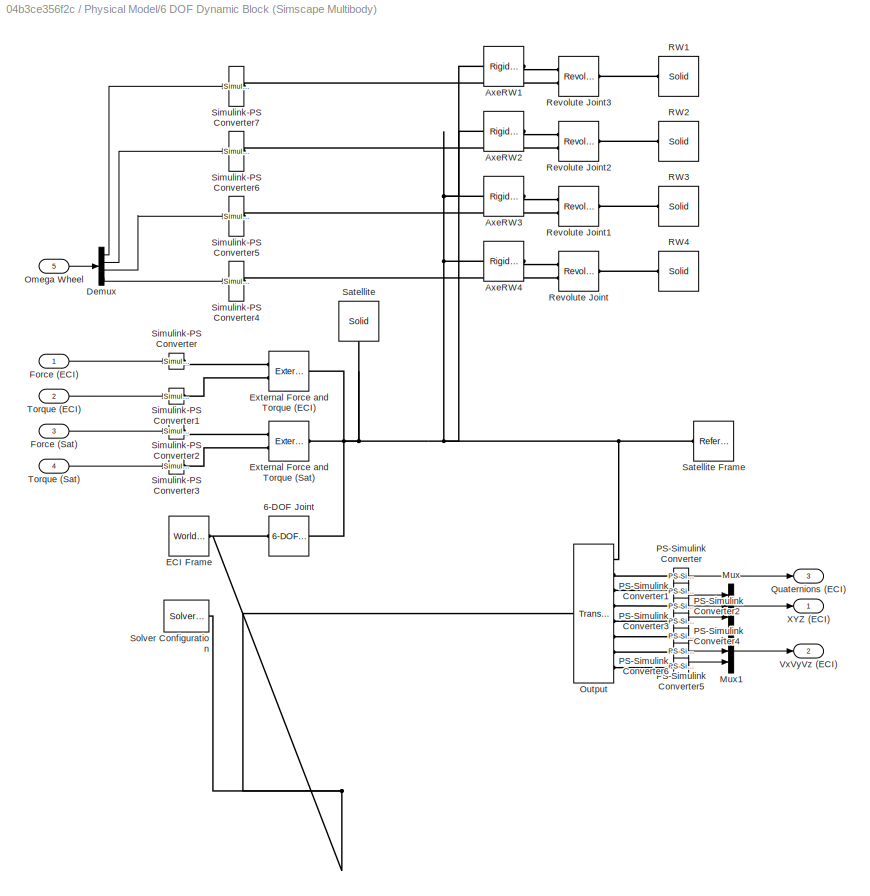
BLOCK [SubSystem] Physical Model/6 DOF Dynamic Block (Simscape Multibody)
  Commented = on
  Ports = [5, 3]
  RequestExecContextInheritance = off
BLOCK [Reference] Physical Model/6 DOF Dynamic Block (Simscape Multibody)/6-DOF Joint  REF=sm_lib/Joints/6-DOF Joint
  Ports = [0, 0, 0, 0, 0, 1, 1]
  SourceBlock = sm_lib/Joints/6-DOF Joint
  SourceProductBaseCode = MS
  SourceProductName = Simscape Multibody
  SourceType = 6-DOF Joint
BLOCK [Reference] Physical Model/6 DOF Dynamic Block (Simscape Multibody)/AxeRW1  REF=sm_lib/Frames and
Transforms/Rigid
Transform
  Ports = [0, 0, 0, 0, 0, 1, 1]
  SourceBlock = sm_lib/Frames and\nTransforms/Rigid\nTransform
  SourceProductBaseCode = MS
  SourceProductName = Simscape Multibody
  SourceType = Rigid\nTransform
BLOCK [Reference] Physical Model/6 DOF Dynamic Block (Simscape Multibody)/AxeRW2  REF=sm_lib/Frames and
Transforms/Rigid
Transform
  Ports = [0, 0, 0, 0, 0, 1, 1]
  SourceBlock = sm_lib/Frames and\nTransforms/Rigid\nTransform
  SourceProductBaseCode = MS
  SourceProductName = Simscape Multibody
  SourceType = Rigid\nTransform
BLOCK [Reference] Physical Model/6 DOF Dynamic Block (Simscape Multibody)/AxeRW3  REF=sm_lib/Frames and
Transforms/Rigid
Transform
  Ports = [0, 0, 0, 0, 0, 1, 1]
  SourceBlock = sm_lib/Frames and\nTransforms/Rigid\nTransform
  SourceProductBaseCode = MS
  SourceProductName = Simscape Multibody
  SourceType = Rigid\nTransform
BLOCK [Reference] Physical Model/6 DOF Dynamic Block (Simscape Multibody)/AxeRW4  REF=sm_lib/Frames and
Transforms/Rigid
Transform
  Ports = [0, 0, 0, 0, 0, 1, 1]
  SourceBlock = sm_lib/Frames and\nTransforms/Rigid\nTransform
  SourceProductBaseCode = MS
  SourceProductName = Simscape Multibody
  SourceType = Rigid\nTransform
BLOCK [Demux] Physical Model/6 DOF Dynamic Block (Simscape Multibody)/Demux
  DisplayOption = bar
  Ports = [1, 4]
BLOCK [Reference] Physical Model/6 DOF Dynamic Block (Simscape Multibody)/ECI Frame  REF=sm_lib/Frames and
Transforms/World Frame
  Ports = [0, 0, 0, 0, 0, 0, 1]
  SourceBlock = sm_lib/Frames and\nTransforms/World Frame
  SourceProductBaseCode = MS
  SourceProductName = Simscape Multibody
  SourceType = World Frame
BLOCK [Reference] Physical Model/6 DOF Dynamic Block (Simscape Multibody)/External Force and Torque (ECI)  REF=sm_lib/Forces and
Torques/External Force
and Torque
  Ports = [0, 0, 0, 0, 0, 2, 1]
  SourceBlock = sm_lib/Forces and\nTorques/External Force\nand Torque
  SourceProductBaseCode = MS
  SourceProductName = Simscape Multibody
  SourceType = External Force\nand Torque
BLOCK [Reference] Physical Model/6 DOF Dynamic Block (Simscape Multibody)/External Force and Torque (Sat)  REF=sm_lib/Forces and
Torques/External Force
and Torque
  Ports = [0, 0, 0, 0, 0, 2, 1]
  SourceBlock = sm_lib/Forces and\nTorques/External Force\nand Torque
  SourceProductBaseCode = MS
  SourceProductName = Simscape Multibody
  SourceType = External Force\nand Torque
BLOCK [Inport] Physical Model/6 DOF Dynamic Block (Simscape Multibody)/Force (ECI)
  IconDisplay = Port number
BLOCK [Inport] Physical Model/6 DOF Dynamic Block (Simscape Multibody)/Force (Sat)
  IconDisplay = Port number
  Port = 3
BLOCK [Mux] Physical Model/6 DOF Dynamic Block (Simscape Multibody)/Mux
  DisplayOption = bar
  Inputs = 3
  Ports = [3, 1]
BLOCK [Mux] Physical Model/6 DOF Dynamic Block (Simscape Multibody)/Mux1
  DisplayOption = bar
  Inputs = 3
  Ports = [3, 1]
BLOCK [Inport] Physical Model/6 DOF Dynamic Block (Simscape Multibody)/Omega Wheel
  IconDisplay = Port number
  Port = 5
BLOCK [Reference] Physical Model/6 DOF Dynamic Block (Simscape Multibody)/Output  REF=sm_lib/Frames and
Transforms/Transform
Sensor
  Ports = [0, 0, 0, 0, 0, 1, 8]
  SourceBlock = sm_lib/Frames and\nTransforms/Transform\nSensor
  SourceProductBaseCode = MS
  SourceProductName = Simscape Multibody
  SourceType = Transform\nSensor
BLOCK [Reference] Physical Model/6 DOF Dynamic Block (Simscape Multibody)/PS-Simulink Converter  REF=nesl_utility/PS-Simulink
Converter
  Ports = [0, 1, 0, 0, 0, 1]
  SourceBlock = nesl_utility/PS-Simulink\nConverter
  SourceProductBaseCode = SS
  SourceProductName = Simscape
  SourceType = PS-Simulink\nConverter
BLOCK [Reference] Physical Model/6 DOF Dynamic Block (Simscape Multibody)/PS-Simulink Converter1  REF=nesl_utility/PS-Simulink
Converter
  Ports = [0, 1, 0, 0, 0, 1]
  SourceBlock = nesl_utility/PS-Simulink\nConverter
  SourceProductBaseCode = SS
  SourceProductName = Simscape
  SourceType = PS-Simulink\nConverter
BLOCK [Reference] Physical Model/6 DOF Dynamic Block (Simscape Multibody)/PS-Simulink Converter2  REF=nesl_utility/PS-Simulink
Converter
  Ports = [0, 1, 0, 0, 0, 1]
  SourceBlock = nesl_utility/PS-Simulink\nConverter
  SourceProductBaseCode = SS
  SourceProductName = Simscape
  SourceType = PS-Simulink\nConverter
BLOCK [Reference] Physical Model/6 DOF Dynamic Block (Simscape Multibody)/PS-Simulink Converter3  REF=nesl_utility/PS-Simulink
Converter
  Ports = [0, 1, 0, 0, 0, 1]
  SourceBlock = nesl_utility/PS-Simulink\nConverter
  SourceProductBaseCode = SS
  SourceProductName = Simscape
  SourceType = PS-Simulink\nConverter
BLOCK [Reference] Physical Model/6 DOF Dynamic Block (Simscape Multibody)/PS-Simulink Converter4  REF=nesl_utility/PS-Simulink
Converter
  Ports = [0, 1, 0, 0, 0, 1]
  SourceBlock = nesl_utility/PS-Simulink\nConverter
  SourceProductBaseCode = SS
  SourceProductName = Simscape
  SourceType = PS-Simulink\nConverter
BLOCK [Reference] Physical Model/6 DOF Dynamic Block (Simscape Multibody)/PS-Simulink Converter5  REF=nesl_utility/PS-Simulink
Converter
  Ports = [0, 1, 0, 0, 0, 1]
  SourceBlock = nesl_utility/PS-Simulink\nConverter
  SourceProductBaseCode = SS
  SourceProductName = Simscape
  SourceType = PS-Simulink\nConverter
BLOCK [Reference] Physical Model/6 DOF Dynamic Block (Simscape Multibody)/PS-Simulink Converter6  REF=nesl_utility/PS-Simulink
Converter
  Ports = [0, 1, 0, 0, 0, 1]
  SourceBlock = nesl_utility/PS-Simulink\nConverter
  SourceProductBaseCode = SS
  SourceProductName = Simscape
  SourceType = PS-Simulink\nConverter
BLOCK [Outport] Physical Model/6 DOF Dynamic Block (Simscape Multibody)/Quaternions (ECI)
  IconDisplay = Port number
  Port = 3
BLOCK [Reference] Physical Model/6 DOF Dynamic Block (Simscape Multibody)/RW1  REF=sm_lib/Body Elements/Solid
  Ports = [0, 0, 0, 0, 0, 0, 1]
  SourceBlock = sm_lib/Body Elements/Solid
  SourceProductBaseCode = MS
  SourceProductName = Simscape Multibody
  SourceType = Solid
BLOCK [Reference] Physical Model/6 DOF Dynamic Block (Simscape Multibody)/RW2  REF=sm_lib/Body Elements/Solid
  Ports = [0, 0, 0, 0, 0, 0, 1]
  SourceBlock = sm_lib/Body Elements/Solid
  SourceProductBaseCode = MS
  SourceProductName = Simscape Multibody
  SourceType = Solid
BLOCK [Reference] Physical Model/6 DOF Dynamic Block (Simscape Multibody)/RW3  REF=sm_lib/Body Elements/Solid
  Ports = [0, 0, 0, 0, 0, 0, 1]
  SourceBlock = sm_lib/Body Elements/Solid
  SourceProductBaseCode = MS
  SourceProductName = Simscape Multibody
  SourceType = Solid
BLOCK [Reference] Physical Model/6 DOF Dynamic Block (Simscape Multibody)/RW4  REF=sm_lib/Body Elements/Solid
  Ports = [0, 0, 0, 0, 0, 0, 1]
  SourceBlock = sm_lib/Body Elements/Solid
  SourceProductBaseCode = MS
  SourceProductName = Simscape Multibody
  SourceType = Solid
BLOCK [Reference] Physical Model/6 DOF Dynamic Block (Simscape Multibody)/Revolute Joint  REF=sm_lib/Joints/Revolute Joint
  Ports = [0, 0, 0, 0, 0, 2, 1]
  SourceBlock = sm_lib/Joints/Revolute Joint
  SourceProductBaseCode = MS
  SourceProductName = Simscape Multibody
  SourceType = Revolute Joint
BLOCK [Reference] Physical Model/6 DOF Dynamic Block (Simscape Multibody)/Revolute Joint1  REF=sm_lib/Joints/Revolute Joint
  Ports = [0, 0, 0, 0, 0, 2, 1]
  SourceBlock = sm_lib/Joints/Revolute Joint
  SourceProductBaseCode = MS
  SourceProductName = Simscape Multibody
  SourceType = Revolute Joint
BLOCK [Reference] Physical Model/6 DOF Dynamic Block (Simscape Multibody)/Revolute Joint2  REF=sm_lib/Joints/Revolute Joint
  Ports = [0, 0, 0, 0, 0, 2, 1]
  SourceBlock = sm_lib/Joints/Revolute Joint
  SourceProductBaseCode = MS
  SourceProductName = Simscape Multibody
  SourceType = Revolute Joint
BLOCK [Reference] Physical Model/6 DOF Dynamic Block (Simscape Multibody)/Revolute Joint3  REF=sm_lib/Joints/Revolute Joint
  Ports = [0, 0, 0, 0, 0, 2, 1]
  SourceBlock = sm_lib/Joints/Revolute Joint
  SourceProductBaseCode = MS
  SourceProductName = Simscape Multibody
  SourceType = Revolute Joint
BLOCK [Reference] Physical Model/6 DOF Dynamic Block (Simscape Multibody)/Satellite  REF=sm_lib/Body Elements/Solid
  Ports = [0, 0, 0, 0, 0, 0, 1]
  SourceBlock = sm_lib/Body Elements/Solid
  SourceProductBaseCode = MS
  SourceProductName = Simscape Multibody
  SourceType = Solid
BLOCK [Reference] Physical Model/6 DOF Dynamic Block (Simscape Multibody)/Satellite Frame  REF=sm_lib/Frames and
Transforms/Reference
Frame
  Ports = [0, 0, 0, 0, 0, 0, 1]
  SourceBlock = sm_lib/Frames and\nTransforms/Reference\nFrame
  SourceProductBaseCode = MS
  SourceProductName = Simscape Multibody
  SourceType = Reference\nFrame
BLOCK [Reference] Physical Model/6 DOF Dynamic Block (Simscape Multibody)/Simulink-PS Converter  REF=nesl_utility/Simulink-PS
Converter
  Ports = [1, 0, 0, 0, 0, 0, 1]
  SourceBlock = nesl_utility/Simulink-PS\nConverter
  SourceProductBaseCode = SS
  SourceProductName = Simscape
  SourceType = Simulink-PS\nConverter
BLOCK [Reference] Physical Model/6 DOF Dynamic Block (Simscape Multibody)/Simulink-PS Converter1  REF=nesl_utility/Simulink-PS
Converter
  Ports = [1, 0, 0, 0, 0, 0, 1]
  SourceBlock = nesl_utility/Simulink-PS\nConverter
  SourceProductBaseCode = SS
  SourceProductName = Simscape
  SourceType = Simulink-PS\nConverter
BLOCK [Reference] Physical Model/6 DOF Dynamic Block (Simscape Multibody)/Simulink-PS Converter2  REF=nesl_utility/Simulink-PS
Converter
  Ports = [1, 0, 0, 0, 0, 0, 1]
  SourceBlock = nesl_utility/Simulink-PS\nConverter
  SourceProductBaseCode = SS
  SourceProductName = Simscape
  SourceType = Simulink-PS\nConverter
BLOCK [Reference] Physical Model/6 DOF Dynamic Block (Simscape Multibody)/Simulink-PS Converter3  REF=nesl_utility/Simulink-PS
Converter
  Ports = [1, 0, 0, 0, 0, 0, 1]
  SourceBlock = nesl_utility/Simulink-PS\nConverter
  SourceProductBaseCode = SS
  SourceProductName = Simscape
  SourceType = Simulink-PS\nConverter
BLOCK [Reference] Physical Model/6 DOF Dynamic Block (Simscape Multibody)/Simulink-PS Converter4  REF=nesl_utility/Simulink-PS
Converter
  Ports = [1, 0, 0, 0, 0, 0, 1]
  SourceBlock = nesl_utility/Simulink-PS\nConverter
  SourceProductBaseCode = SS
  SourceProductName = Simscape
  SourceType = Simulink-PS\nConverter
BLOCK [Reference] Physical Model/6 DOF Dynamic Block (Simscape Multibody)/Simulink-PS Converter5  REF=nesl_utility/Simulink-PS
Converter
  Ports = [1, 0, 0, 0, 0, 0, 1]
  SourceBlock = nesl_utility/Simulink-PS\nConverter
  SourceProductBaseCode = SS
  SourceProductName = Simscape
  SourceType = Simulink-PS\nConverter
BLOCK [Reference] Physical Model/6 DOF Dynamic Block (Simscape Multibody)/Simulink-PS Converter6  REF=nesl_utility/Simulink-PS
Converter
  Ports = [1, 0, 0, 0, 0, 0, 1]
  SourceBlock = nesl_utility/Simulink-PS\nConverter
  SourceProductBaseCode = SS
  SourceProductName = Simscape
  SourceType = Simulink-PS\nConverter
BLOCK [Reference] Physical Model/6 DOF Dynamic Block (Simscape Multibody)/Simulink-PS Converter7  REF=nesl_utility/Simulink-PS
Converter
  Ports = [1, 0, 0, 0, 0, 0, 1]
  SourceBlock = nesl_utility/Simulink-PS\nConverter
  SourceProductBaseCode = SS
  SourceProductName = Simscape
  SourceType = Simulink-PS\nConverter
BLOCK [Reference] Physical Model/6 DOF Dynamic Block (Simscape Multibody)/Solver Configuration  REF=nesl_utility/Solver
Configuration
  Ports = [0, 0, 0, 0, 0, 0, 1]
  SourceBlock = nesl_utility/Solver\nConfiguration
  SourceProductBaseCode = SS
  SourceProductName = Simscape
  SourceType = Solver\nConfiguration
BLOCK [Inport] Physical Model/6 DOF Dynamic Block (Simscape Multibody)/Torque (ECI)
  IconDisplay = Port number
  Port = 2
BLOCK [Inport] Physical Model/6 DOF Dynamic Block (Simscape Multibody)/Torque (Sat)
  IconDisplay = Port number
  Port = 4
BLOCK [Outport] Physical Model/6 DOF Dynamic Block (Simscape Multibody)/VxVyVz (ECI)
  IconDisplay = Port number
  Port = 2
BLOCK [Outport] Physical Model/6 DOF Dynamic Block (Simscape Multibody)/XYZ (ECI)
  IconDisplay = Port number
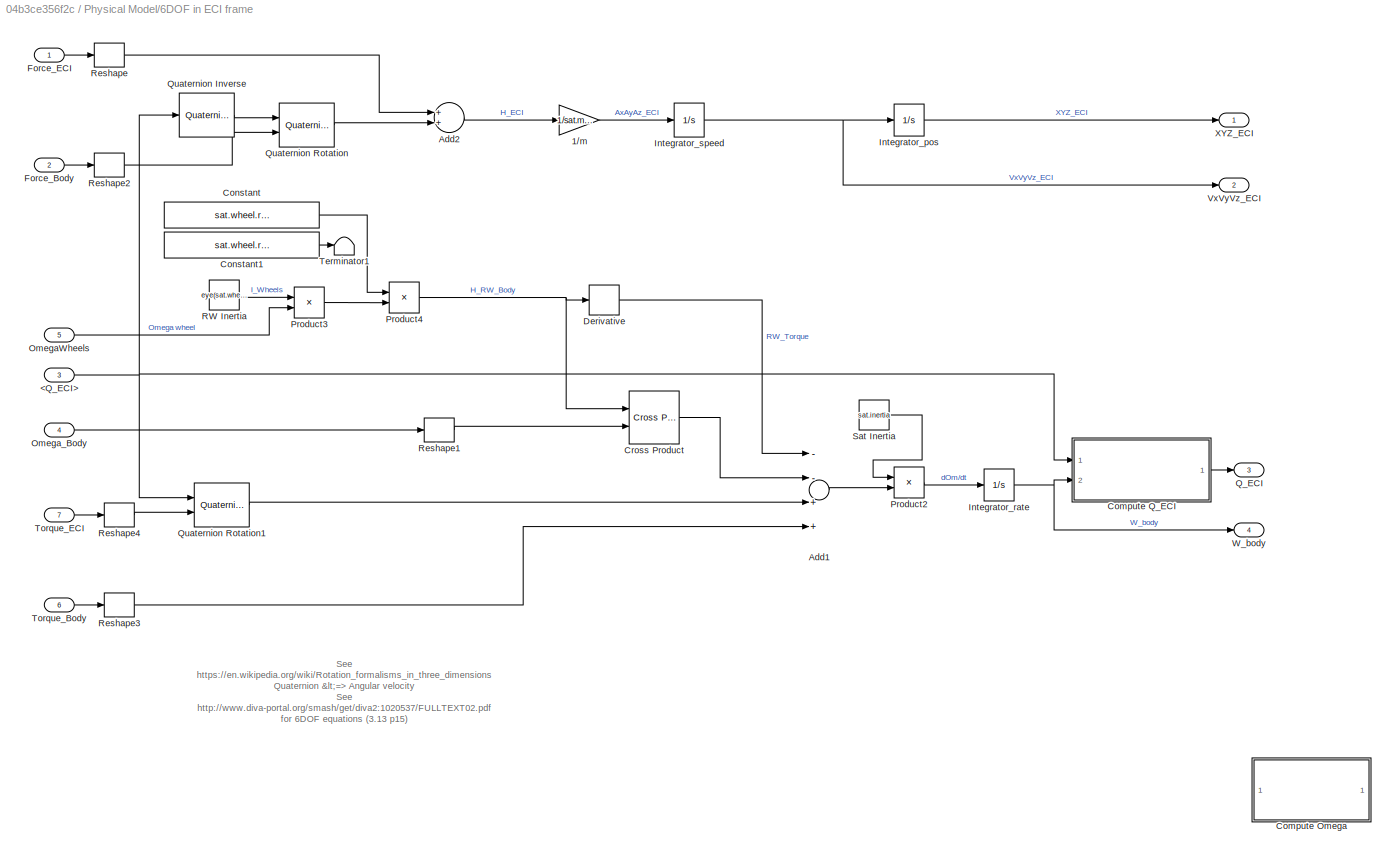
BLOCK [SubSystem] Physical Model/6DOF in ECI frame
  Ports = [7, 4]
  RequestExecContextInheritance = off
BLOCK [Gain] Physical Model/6DOF in ECI frame/1//m
  Gain = 1/sat.mass
  OutDataTypeStr = Inherit: Inherit via internal rule
  ParamDataTypeStr = Inherit: Inherit via internal rule
  SaturateOnIntegerOverflow = off
BLOCK [Inport] Physical Model/6DOF in ECI frame/<Q_ECI>
  IconDisplay = Port number
  Port = 3
BLOCK [Sum] Physical Model/6DOF in ECI frame/Add1
  InputSameDT = off
  Inputs = --++
  OutDataTypeStr = Inherit: Inherit via internal rule
  Ports = [4, 1]
  SaturateOnIntegerOverflow = off
BLOCK [Sum] Physical Model/6DOF in ECI frame/Add2
  InputSameDT = off
  OutDataTypeStr = Inherit: Inherit via internal rule
  Ports = [2, 1]
  SaturateOnIntegerOverflow = off
BLOCK [SubSystem] Physical Model/6DOF in ECI frame/Compute Omega
  Commented = on
  Ports = [1, 1]
  RequestExecContextInheritance = off
BLOCK [Inport] Physical Model/6DOF in ECI frame/Compute Omega/<Q_ECI>
  IconDisplay = Port number
BLOCK [Demux] Physical Model/6DOF in ECI frame/Compute Omega/Demux
  DisplayOption = bar
  Outputs = 2
  Ports = [1, 2]
BLOCK [Derivative] Physical Model/6DOF in ECI frame/Compute Omega/Derivative
BLOCK [Gain] Physical Model/6DOF in ECI frame/Compute Omega/Gain
  Gain = 2
  OutDataTypeStr = Inherit: Inherit via internal rule
  ParamDataTypeStr = Inherit: Inherit via internal rule
  SaturateOnIntegerOverflow = off
BLOCK [Outport] Physical Model/6DOF in ECI frame/Compute Omega/Omega_body
  IconDisplay = Port number
  PortDimensions = [3 1]
BLOCK [Reference] Physical Model/6DOF in ECI frame/Compute Omega/Quaternion Conjugate  REF=aerolibutil/Quaternion
Conjugate
  Ports = [1, 1]
  SourceBlock = aerolibutil/Quaternion\nConjugate
  SourceProductBaseCode = AE
  SourceProductName = Aerospace Blockset
  SourceType = Quaternion Conjugate
BLOCK [Reference] Physical Model/6DOF in ECI frame/Compute Omega/Quaternion Multiplication  REF=aerolibutil/Quaternion
Multiplication
  Ports = [2, 1]
  SourceBlock = aerolibutil/Quaternion\nMultiplication
  SourceProductBaseCode = AE
  SourceProductName = Aerospace Blockset
  SourceType = Quaternion Multiplication
BLOCK [Reshape] Physical Model/6DOF in ECI frame/Compute Omega/Reshape
  OutputDimensionality = Column vector (2-D)
  Ports = [1, 1]
BLOCK [Terminator] Physical Model/6DOF in ECI frame/Compute Omega/Terminator
BLOCK [SubSystem] Physical Model/6DOF in ECI frame/Compute Q_ECI
  Ports = [2, 1]
  RequestExecContextInheritance = off
BLOCK [Inport] Physical Model/6DOF in ECI frame/Compute Q_ECI/<Q_ECI>
  IconDisplay = Port number
BLOCK [Gain] Physical Model/6DOF in ECI frame/Compute Q_ECI/Gain
  Gain = 1/2
  OutDataTypeStr = Inherit: Inherit via internal rule
  ParamDataTypeStr = Inherit: Inherit via internal rule
  SaturateOnIntegerOverflow = off
BLOCK [Ground] Physical Model/6DOF in ECI frame/Compute Q_ECI/Ground
BLOCK [Integrator] Physical Model/6DOF in ECI frame/Compute Q_ECI/Integrator_quat
  InitialCondition = [1 0 0 0]
  Ports = [1, 1]
BLOCK [Mux] Physical Model/6DOF in ECI frame/Compute Q_ECI/Mux
  DisplayOption = bar
  Inputs = 2
  Ports = [2, 1]
BLOCK [Inport] Physical Model/6DOF in ECI frame/Compute Q_ECI/Omega_body
  IconDisplay = Port number
  Port = 2
BLOCK [Outport] Physical Model/6DOF in ECI frame/Compute Q_ECI/Q_ECI
  IconDisplay = Port number
BLOCK [Reference] Physical Model/6DOF in ECI frame/Compute Q_ECI/Quaternion Multiplication  REF=aerolibutil/Quaternion
Multiplication
  Ports = [2, 1]
  SourceBlock = aerolibutil/Quaternion\nMultiplication
  SourceProductBaseCode = AE
  SourceProductName = Aerospace Blockset
  SourceType = Quaternion Multiplication
BLOCK [Reference] Physical Model/6DOF in ECI frame/Compute Q_ECI/Quaternion Normalize  REF=sharedutil/Quaternion
Normalize
  Ports = [1, 1]
  SourceBlock = sharedutil/Quaternion\nNormalize
  SourceProductBaseCode = AE
  SourceProductName = Aerospace Blockset
  SourceType = Quaternion Normalize
BLOCK [Constant] Physical Model/6DOF in ECI frame/Constant
  Value = sat.wheel.repartition_matrix_3RW
BLOCK [Constant] Physical Model/6DOF in ECI frame/Constant1
  Value = sat.wheel.repartition_matrix_4RW
BLOCK [Reference] Physical Model/6DOF in ECI frame/Cross Product  REF=vrlib/Utilities/Cross Product
  Ports = [2, 1]
  SourceBlock = vrlib/Utilities/Cross Product
  SourceProductBaseCode = SL
  SourceProductName = Simulink
  SourceType = Cross Product
BLOCK [Derivative] Physical Model/6DOF in ECI frame/Derivative
BLOCK [Inport] Physical Model/6DOF in ECI frame/Force_Body
  IconDisplay = Port number
  Port = 2
BLOCK [Inport] Physical Model/6DOF in ECI frame/Force_ECI
  IconDisplay = Port number
BLOCK [Integrator] Physical Model/6DOF in ECI frame/Integrator_pos
  Ports = [1, 1]
BLOCK [Integrator] Physical Model/6DOF in ECI frame/Integrator_rate
  Ports = [1, 1]
BLOCK [Integrator] Physical Model/6DOF in ECI frame/Integrator_speed
  Ports = [1, 1]
BLOCK [Inport] Physical Model/6DOF in ECI frame/OmegaWheels
  IconDisplay = Port number
  Port = 5
BLOCK [Inport] Physical Model/6DOF in ECI frame/Omega_Body 
  IconDisplay = Port number
  Port = 4
BLOCK [Product] Physical Model/6DOF in ECI frame/Product2
  InputSameDT = off
  Inputs = /*
  Multiplication = Matrix(*)
  OutDataTypeStr = Inherit: Inherit via internal rule
  Ports = [2, 1]
  RndMeth = Floor
  SaturateOnIntegerOverflow = off
BLOCK [Product] Physical Model/6DOF in ECI frame/Product3
  InputSameDT = off
  Multiplication = Matrix(*)
  OutDataTypeStr = Inherit: Inherit via internal rule
  Ports = [2, 1]
  RndMeth = Floor
  SaturateOnIntegerOverflow = off
BLOCK [Product] Physical Model/6DOF in ECI frame/Product4
  InputSameDT = off
  Multiplication = Matrix(*)
  OutDataTypeStr = Inherit: Inherit via internal rule
  Ports = [2, 1]
  RndMeth = Floor
  SaturateOnIntegerOverflow = off
BLOCK [Outport] Physical Model/6DOF in ECI frame/Q_ECI
  IconDisplay = Port number
  Port = 3
BLOCK [Reference] Physical Model/6DOF in ECI frame/Quaternion Inverse  REF=aerolibutil/Quaternion
Inverse
  Ports = [1, 1]
  SourceBlock = aerolibutil/Quaternion\nInverse
  SourceProductBaseCode = AE
  SourceProductName = Aerospace Blockset
  SourceType = Quaternion Inverse
BLOCK [Reference] Physical Model/6DOF in ECI frame/Quaternion Rotation  REF=aerolibutil/Quaternion
Rotation
  Ports = [2, 1]
  SourceBlock = aerolibutil/Quaternion\nRotation
  SourceProductBaseCode = AE
  SourceProductName = Aerospace Blockset
  SourceType = Quaternion Rotation
BLOCK [Reference] Physical Model/6DOF in ECI frame/Quaternion Rotation1  REF=aerolibutil/Quaternion
Rotation
  Ports = [2, 1]
  SourceBlock = aerolibutil/Quaternion\nRotation
  SourceProductBaseCode = AE
  SourceProductName = Aerospace Blockset
  SourceType = Quaternion Rotation
BLOCK [Constant] Physical Model/6DOF in ECI frame/RW Inertia
  Value = eye(sat.wheel.number)*sat.wheel.inertia
BLOCK [Reshape] Physical Model/6DOF in ECI frame/Reshape
  OutputDimensionality = Column vector (2-D)
  Ports = [1, 1]
BLOCK [Reshape] Physical Model/6DOF in ECI frame/Reshape1
  OutputDimensionality = Column vector (2-D)
  Ports = [1, 1]
BLOCK [Reshape] Physical Model/6DOF in ECI frame/Reshape2
  OutputDimensionality = Column vector (2-D)
  Ports = [1, 1]
BLOCK [Reshape] Physical Model/6DOF in ECI frame/Reshape3
  OutputDimensionality = Column vector (2-D)
  Ports = [1, 1]
BLOCK [Reshape] Physical Model/6DOF in ECI frame/Reshape4
  OutputDimensionality = Column vector (2-D)
  Ports = [1, 1]
BLOCK [Constant] Physical Model/6DOF in ECI frame/Sat Inertia
  Value = sat.inertia
BLOCK [Terminator] Physical Model/6DOF in ECI frame/Terminator1
BLOCK [Inport] Physical Model/6DOF in ECI frame/Torque_Body
  IconDisplay = Port number
  Port = 6
BLOCK [Inport] Physical Model/6DOF in ECI frame/Torque_ECI
  IconDisplay = Port number
  Port = 7
  PortDimensions = 3
BLOCK [Outport] Physical Model/6DOF in ECI frame/VxVyVz_ECI
  IconDisplay = Port number
  Port = 2
BLOCK [Outport] Physical Model/6DOF in ECI frame/W_body
  IconDisplay = Port number
  Port = 4
BLOCK [Outport] Physical Model/6DOF in ECI frame/XYZ_ECI
  IconDisplay = Port number
BLOCK [Sum] Physical Model/Add
  InputSameDT = off
  OutDataTypeStr = Inherit: Inherit via internal rule
  Ports = [2, 1]
  SaturateOnIntegerOverflow = off
BLOCK [Sum] Physical Model/Add1
  InputSameDT = off
  Inputs = +++
  OutDataTypeStr = Inherit: Inherit via internal rule
  Ports = [3, 1]
  SaturateOnIntegerOverflow = off
BLOCK [Inport] Physical Model/B_IGRF_ECI
  IconDisplay = Port number
  Port = 5
BLOCK [BusCreator] Physical Model/Bus Creator
  DisplayOption = bar
  InheritFromInputs = on
  Inputs = 4
  Ports = [4, 1]
BLOCK [BusCreator] Physical Model/Bus Creator1
  DisplayOption = bar
  InheritFromInputs = on
  Inputs = 2
  Ports = [2, 1]
BLOCK [BusSelector] Physical Model/Bus Selector
  OutputAsBus = off
  OutputSignals = XYZ_ECI,Q_ECI,W_body
  Ports = [1, 3]
BLOCK [BusSelector] Physical Model/Bus Selector1
  OutputAsBus = off
  OutputSignals = RWSpeed_Command,Magnetotorquer_Command
  Ports = [1, 2]
BLOCK [Inport] Physical Model/Command
  IconDisplay = Port number
BLOCK [Inport] Physical Model/DisturbanceForce (ECI)
  IconDisplay = Port number
  Port = 3
BLOCK [Inport] Physical Model/DisturbanceTorque (Body)
  IconDisplay = Port number
  Port = 4
BLOCK [Outport] Physical Model/Mag_Moment
  IconDisplay = Port number
  Port = 2
BLOCK [SubSystem] Physical Model/Magnetorquer physics
  Ports = [2, 2]
  RequestExecContextInheritance = off
BLOCK [Sum] Physical Model/Magnetorquer physics/Add1
  InputSameDT = off
  Inputs = +++
  OutDataTypeStr = Inherit: Inherit via internal rule
  Ports = [3, 1]
  SaturateOnIntegerOverflow = off
BLOCK [Inport] Physical Model/Magnetorquer physics/B_IGRF_body (vecteur)
  IconDisplay = Port number
  Port = 2
BLOCK [Outport] Physical Model/Magnetorquer physics/Couple (vect)
  IconDisplay = Port number
  PortDimensions = 3
BLOCK [Reference] Physical Model/Magnetorquer physics/Cross Product  REF=vrlib/Utilities/Cross Product
  Ports = [2, 1]
  SourceBlock = vrlib/Utilities/Cross Product
  SourceProductBaseCode = SL
  SourceProductName = Simulink
  SourceType = Cross Product
BLOCK [Demux] Physical Model/Magnetorquer physics/Demux
  DisplayOption = bar
  Outputs = 3
  Ports = [1, 3]
BLOCK [Inport] Physical Model/Magnetorquer physics/Mag vector command
  IconDisplay = Port number
BLOCK [SubSystem] Physical Model/Magnetorquer physics/Magnétocoupleur 1
  Ports = [1, 1]
  RequestExecContextInheritance = off
BLOCK [Constant] Physical Model/Magnetorquer physics/Magnétocoupleur 1/Constant1
  Value = sat.mag_t.max_mm1
BLOCK [Constant] Physical Model/Magnetorquer physics/Magnétocoupleur 1/Constant2
  Value = - sat.mag_t.max_mm1
BLOCK [Constant] Physical Model/Magnetorquer physics/Magnétocoupleur 1/Constant6
  Value = sat.mag_t.axe1
BLOCK [Product] Physical Model/Magnetorquer physics/Magnétocoupleur 1/Product
  InputSameDT = off
  OutDataTypeStr = Inherit: Inherit via internal rule
  Ports = [2, 1]
  RndMeth = Floor
  SaturateOnIntegerOverflow = off
BLOCK [Reference] Physical Model/Magnetorquer physics/Magnétocoupleur 1/Saturation Dynamic  REF=simulink/Discontinuities/Saturation
Dynamic
  Ports = [3, 1]
  SourceBlock = simulink/Discontinuities/Saturation\nDynamic
  SourceProductBaseCode = SL
  SourceProductName = Simulink
  SourceType = Saturation Dynamic
BLOCK [Inport] Physical Model/Magnetorquer physics/Magnétocoupleur 1/m_in (scalar)
  IconDisplay = Port number
BLOCK [Outport] Physical Model/Magnetorquer physics/Magnétocoupleur 1/m_out (vect)
  IconDisplay = Port number
BLOCK [SubSystem] Physical Model/Magnetorquer physics/Magnétocoupleur 2
  Ports = [1, 1]
  RequestExecContextInheritance = off
BLOCK [Constant] Physical Model/Magnetorquer physics/Magnétocoupleur 2/Constant
  Value = - sat.mag_t.max_mm2
BLOCK [Constant] Physical Model/Magnetorquer physics/Magnétocoupleur 2/Constant1
  Value = sat.mag_t.max_mm2
BLOCK [Constant] Physical Model/Magnetorquer physics/Magnétocoupleur 2/Constant6
  Value = sat.mag_t.axe2
BLOCK [Product] Physical Model/Magnetorquer physics/Magnétocoupleur 2/Product
  InputSameDT = off
  OutDataTypeStr = Inherit: Inherit via internal rule
  Ports = [2, 1]
  RndMeth = Floor
  SaturateOnIntegerOverflow = off
BLOCK [Reference] Physical Model/Magnetorquer physics/Magnétocoupleur 2/Saturation Dynamic  REF=simulink/Discontinuities/Saturation
Dynamic
  Ports = [3, 1]
  SourceBlock = simulink/Discontinuities/Saturation\nDynamic
  SourceProductBaseCode = SL
  SourceProductName = Simulink
  SourceType = Saturation Dynamic
BLOCK [Inport] Physical Model/Magnetorquer physics/Magnétocoupleur 2/m_in (scalar)
  IconDisplay = Port number
BLOCK [Outport] Physical Model/Magnetorquer physics/Magnétocoupleur 2/m_out (vect)
  IconDisplay = Port number
BLOCK [SubSystem] Physical Model/Magnetorquer physics/Magnétocoupleur 3
  Ports = [1, 1]
  RequestExecContextInheritance = off
BLOCK [Constant] Physical Model/Magnetorquer physics/Magnétocoupleur 3/Constant1
  Value = sat.mag_t.max_mm3
BLOCK [Constant] Physical Model/Magnetorquer physics/Magnétocoupleur 3/Constant2
  Value = - sat.mag_t.max_mm3
BLOCK [Constant] Physical Model/Magnetorquer physics/Magnétocoupleur 3/Constant6
  Value = sat.mag_t.axe3
BLOCK [Product] Physical Model/Magnetorquer physics/Magnétocoupleur 3/Product
  InputSameDT = off
  OutDataTypeStr = Inherit: Inherit via internal rule
  Ports = [2, 1]
  RndMeth = Floor
  SaturateOnIntegerOverflow = off
BLOCK [Reference] Physical Model/Magnetorquer physics/Magnétocoupleur 3/Saturation Dynamic  REF=simulink/Discontinuities/Saturation
Dynamic
  Ports = [3, 1]
  SourceBlock = simulink/Discontinuities/Saturation\nDynamic
  SourceProductBaseCode = SL
  SourceProductName = Simulink
  SourceType = Saturation Dynamic
BLOCK [Inport] Physical Model/Magnetorquer physics/Magnétocoupleur 3/m_in (scalar)
  IconDisplay = Port number
BLOCK [Outport] Physical Model/Magnetorquer physics/Magnétocoupleur 3/m_out (vect)
  IconDisplay = Port number
BLOCK [Outport] Physical Model/Magnetorquer physics/Real mag moments vector
  IconDisplay = Port number
  Port = 2
BLOCK [Reference] Physical Model/Quaternion Rotation  REF=aerolibutil/Quaternion
Rotation
  Ports = [2, 1]
  SourceBlock = aerolibutil/Quaternion\nRotation
  SourceProductBaseCode = AE
  SourceProductName = Aerospace Blockset
  SourceType = Quaternion Rotation
BLOCK [SubSystem] Physical Model/RW physics
  Commented = through
  Ports = [1, 1]
  RequestExecContextInheritance = off
BLOCK [Demux] Physical Model/RW physics/Demux
  DisplayOption = bar
  Outputs = 3
  Ports = [1, 3]
BLOCK [Mux] Physical Model/RW physics/Mux
  DisplayOption = bar
  Inputs = 3
  Ports = [3, 1]
BLOCK [Inport] Physical Model/RW physics/RW command
  IconDisplay = Port number
BLOCK [Outport] Physical Model/RW physics/RW speed
  IconDisplay = Port number
BLOCK [TransferFcn] Physical Model/RW physics/Transfer Fcn
  Denominator = [1 1]
BLOCK [TransferFcn] Physical Model/RW physics/Transfer Fcn1
  Denominator = [1 1]
BLOCK [TransferFcn] Physical Model/RW physics/Transfer Fcn2
  Denominator = [1 1]
BLOCK [Reshape] Physical Model/Reshape
  Ports = [1, 1]
BLOCK [Reshape] Physical Model/Reshape1
  Ports = [1, 1]
BLOCK [Reshape] Physical Model/Reshape2
  OutputDimensionality = Column vector (2-D)
  Ports = [1, 1]
BLOCK [SubSystem] Physical Model/Spherical Harmonic Gravity
  Ports = [2, 1]
  RequestExecContextInheritance = off
  SystemSampleTime = 1
  TreatAsAtomicUnit = on
BLOCK [SubSystem] Physical Model/Spherical Harmonic Gravity/ECI to ECEF IAU-2000//2006
  ErrorFcn = Stateflow.Translate.translate
  PermitHierarchicalResolution = ExplicitOnly
  Ports = [1, 1]
  RequestExecContextInheritance = off
  SFBlockType = MATLAB Function
  TreatAsAtomicUnit = on
BLOCK [Demux] Physical Model/Spherical Harmonic Gravity/ECI to ECEF IAU-2000//2006/ Demux 
  Outputs = 1
  Ports = [1, 1]
BLOCK [S-Function] Physical Model/Spherical Harmonic Gravity/ECI to ECEF IAU-2000//2006/ SFunction 
  EnableBusSupport = on
  FunctionName = sf_sfun
  PortCounts = [1 2]
  Ports = [1, 2]
  SFcnIsStateOwnerBlock = off
  SFunctionDeploymentMode = off
  Tag = Stateflow S-Function IonSatSimulation_ne_marche_pas 9
BLOCK [Terminator] Physical Model/Spherical Harmonic Gravity/ECI to ECEF IAU-2000//2006/ Terminator 
BLOCK [Outport] Physical Model/Spherical Harmonic Gravity/ECI to ECEF IAU-2000//2006/DCM
  IconDisplay = Port number
BLOCK [Inport] Physical Model/Spherical Harmonic Gravity/ECI to ECEF IAU-2000//2006/Time_UTC
  IconDisplay = Port number
BLOCK [Product] Physical Model/Spherical Harmonic Gravity/Product
  InputSameDT = off
  Multiplication = Matrix(*)
  OutDataTypeStr = Inherit: Inherit via internal rule
  Ports = [2, 1]
  RndMeth = Floor
  SaturateOnIntegerOverflow = off
BLOCK [Product] Physical Model/Spherical Harmonic Gravity/Product1
  InputSameDT = off
  Inputs = /*
  Multiplication = Matrix(*)
  OutDataTypeStr = Inherit: Inherit via internal rule
  Ports = [2, 1]
  RndMeth = Floor
  SaturateOnIntegerOverflow = off
BLOCK [Reference] Physical Model/Spherical Harmonic Gravity/Spherical Harmonic Gravity Model  REF=aerolibgravity2/Spherical Harmonic Gravity Model
  Ports = [1, 1]
  SourceBlock = aerolibgravity2/Spherical Harmonic Gravity Model
  SourceProductBaseCode = AE
  SourceProductName = Aerospace Blockset
  SourceType = Spherical Harmonic Gravity Model
BLOCK [Inport] Physical Model/Spherical Harmonic Gravity/Time_UTC
  IconDisplay = Port number
  Port = 2
BLOCK [Math] Physical Model/Spherical Harmonic Gravity/Transpose
  Operator = transpose
  Ports = [1, 1]
BLOCK [Inport] Physical Model/Spherical Harmonic Gravity/XYZ_ECI
  IconDisplay = Port number
BLOCK [Outport] Physical Model/Spherical Harmonic Gravity/g_ECI (m//s²)
  IconDisplay = Port number
  VectorParamsAs1DForOutWhenUnconnected = on
BLOCK [SubSystem] Physical Model/Thruster
  Ports = [1, 2]
  RequestExecContextInheritance = off
BLOCK [Inport] Physical Model/Thruster (Boolean)
  IconDisplay = Port number
  Port = 2
BLOCK [Constant] Physical Model/Thruster/Constant
  Value = 0
BLOCK [Reference] Physical Model/Thruster/Cross Product  REF=vrlib/Utilities/Cross Product
  Ports = [2, 1]
  SourceBlock = vrlib/Utilities/Cross Product
  SourceProductBaseCode = SL
  SourceProductName = Simulink
  SourceType = Cross Product
BLOCK [Outport] Physical Model/Thruster/Force (G_sat)
  IconDisplay = Port number
BLOCK [If] Physical Model/Thruster/If
  IfExpression = u1
  Ports = [1, 2]
BLOCK [SubSystem] Physical Model/Thruster/If Action Subsystem
  Ports = [1, 1, 0, 0, 0, 0, 0, 1]
  RequestExecContextInheritance = off
  TreatAsAtomicUnit = on
BLOCK [ActionPort] Physical Model/Thruster/If Action Subsystem/Action Port
  ActionPortLabel = if(u1)
BLOCK [Inport] Physical Model/Thruster/If Action Subsystem/In1
  IconDisplay = Port number
BLOCK [Outport] Physical Model/Thruster/If Action Subsystem/Out1
  IconDisplay = Port number
  VectorParamsAs1DForOutWhenUnconnected = on
BLOCK [SubSystem] Physical Model/Thruster/If Action Subsystem1
  Ports = [1, 1, 0, 0, 0, 0, 0, 1]
  RequestExecContextInheritance = off
  TreatAsAtomicUnit = on
BLOCK [ActionPort] Physical Model/Thruster/If Action Subsystem1/Action Port
  ActionPortLabel = else
BLOCK [Inport] Physical Model/Thruster/If Action Subsystem1/In1
  IconDisplay = Port number
BLOCK [Outport] Physical Model/Thruster/If Action Subsystem1/Out1
  IconDisplay = Port number
  VectorParamsAs1DForOutWhenUnconnected = on
BLOCK [Merge] Physical Model/Thruster/Merge
  Ports = [2, 1]
BLOCK [Outport] Physical Model/Thruster/Moment (G_sat)
  IconDisplay = Port number
  Port = 2
BLOCK [Inport] Physical Model/Thruster/On//Off (Boolean)
  IconDisplay = Port number
  OutDataTypeStr = boolean
BLOCK [Product] Physical Model/Thruster/Product
  InputSameDT = off
  OutDataTypeStr = Inherit: Inherit via internal rule
  Ports = [2, 1]
  RndMeth = Floor
  SaturateOnIntegerOverflow = off
BLOCK [Constant] Physical Model/Thruster/Thruster Force
  Value = sat.thruster.force
BLOCK [Constant] Physical Model/Thruster/unit vector of thrust
  Value = sat.thruster.dir
BLOCK [Constant] Physical Model/Thruster/vector G-Thrust point
  Value = sat.thruster.point
BLOCK [Inport] Physical Model/Time_UTC
  IconDisplay = Port number
  Port = 6
BLOCK [Outport] Physical Model/U_out
  IconDisplay = Port number
BLOCK [Gain] Physical Model/m
  Gain = sat.mass
  OutDataTypeStr = Inherit: Inherit via internal rule
  ParamDataTypeStr = Inherit: Inherit via internal rule
  SaturateOnIntegerOverflow = off
BLOCK [Reference] Planetary Ephemeris  REF=aerolibcelestial/Planetary Ephemeris
  Ports = [1, 1]
  SourceBlock = aerolibcelestial/Planetary Ephemeris
  SourceProductBaseCode = AE
  SourceProductName = Aerospace Blockset
  SourceType = PlanetaryEphemeris
BLOCK [SubSystem] QuatToAngleDeg
  Ports = [1, 1]
  RequestExecContextInheritance = off
BLOCK [Abs] QuatToAngleDeg/Abs
  SaturateOnIntegerOverflow = off
BLOCK [Reference] QuatToAngleDeg/Angle Conversion1  REF=aerolibconvert2/Angle Conversion
  Ports = [1, 1]
  SourceBlock = aerolibconvert2/Angle Conversion
  SourceProductBaseCode = AE
  SourceProductName = Aerospace Blockset
  SourceType = Angle Conversion
BLOCK [Reference] QuatToAngleDeg/Coordinate Transformation Conversion  REF=robotcorelib/Coordinate Transformation Conversion
  Ports = [1, 1]
  SourceBlock = robotcorelib/Coordinate Transformation Conversion
  SourceProductBaseCode = RO
  SourceProductName = Robotics System Toolbox
  SourceType = robotics.slcore.internal.block.CoordinateTransformationConversion
BLOCK [Demux] QuatToAngleDeg/Demux1
  DisplayOption = bar
  Ports = [1, 4]
BLOCK [Inport] QuatToAngleDeg/In1
  IconDisplay = Port number
BLOCK [Terminator] QuatToAngleDeg/Terminator1
BLOCK [Terminator] QuatToAngleDeg/Terminator2
BLOCK [Terminator] QuatToAngleDeg/Terminator3
BLOCK [Outport] QuatToAngleDeg/angle deg
  IconDisplay = Port number
BLOCK [Reference] Quaternion Inverse  REF=aerolibutil/Quaternion
Inverse
  Ports = [1, 1]
  SourceBlock = aerolibutil/Quaternion\nInverse
  SourceProductBaseCode = AE
  SourceProductName = Aerospace Blockset
  SourceType = Quaternion Inverse
BLOCK [Reference] Quaternion Inverse1  REF=aerolibutil/Quaternion
Inverse
  Ports = [1, 1]
  SourceBlock = aerolibutil/Quaternion\nInverse
  SourceProductBaseCode = AE
  SourceProductName = Aerospace Blockset
  SourceType = Quaternion Inverse
BLOCK [Reference] Quaternion Multiplication  REF=aerolibutil/Quaternion
Multiplication
  Ports = [2, 1]
  SourceBlock = aerolibutil/Quaternion\nMultiplication
  SourceProductBaseCode = AE
  SourceProductName = Aerospace Blockset
  SourceType = Quaternion Multiplication
BLOCK [Reference] Quaternion Multiplication1  REF=aerolibutil/Quaternion
Multiplication
  Ports = [2, 1]
  SourceBlock = aerolibutil/Quaternion\nMultiplication
  SourceProductBaseCode = AE
  SourceProductName = Aerospace Blockset
  SourceType = Quaternion Multiplication
BLOCK [Scope] Quaternions
  Floating = off
  NumInputPorts = 2
  Ports = [2]
  ScopeSpecificationString = Simulink.scopes.TimeScopeBlockCfg('CurrentConfiguration', extmgr.ConfigurationSet(extmgr.Configuration('Core','General UI',true,'FigureColor',[1 1 1]),extmgr.Configuration('Core','Source UI',true),extmgr.Configuration('Sources','WiredSimulink',true,'DataLoggingVariableName','ScopeData2'),extmgr.Configuration('Visuals','Time Domain',true,'SerializedDisplays',{struct('MinYLimReal','0.15847','MaxYLim...<+1771ch>
BLOCK [Reference] Quaternions to Rotation Angles  REF=sharedtransform/Quaternions to Rotation Angles
  AttributesFormatString = Rotation Order: %<rotationOrder>
  Ports = [1, 1]
  SourceBlock = sharedtransform/Quaternions to Rotation Angles
  SourceProductBaseCode = AE
  SourceProductName = Aerospace Blockset
  SourceType = Quat2Ang
BLOCK [Scope] RW Speed
  Floating = off
  NumInputPorts = 1
  Ports = [1]
  ScopeSpecificationString = Simulink.scopes.TimeScopeBlockCfg('CurrentConfiguration', extmgr.ConfigurationSet(extmgr.Configuration('Core','General UI',true,'FigureColor',[1 1 1]),extmgr.Configuration('Core','Source UI',true),extmgr.Configuration('Sources','WiredSimulink',true,'DataLoggingVariableName','ScopeData2'),extmgr.Configuration('Visuals','Time Domain',true,'SerializedDisplays',{struct('MinYLimReal','-7500.00000','Max...<+1753ch>
BLOCK [SubSystem] Sensors
  Ports = [3, 1]
  RequestExecContextInheritance = off
BLOCK [Inport] Sensors/B_ECI
  IconDisplay = Port number
BLOCK [BusCreator] Sensors/Bus Creator
  DisplayOption = bar
  InheritFromInputs = on
  Inputs = 6
  Ports = [6, 1]
BLOCK [SubSystem] Sensors/MEMS Gyro
  Ports = [1, 1]
  RequestExecContextInheritance = off
BLOCK [BusSelector] Sensors/MEMS Gyro/Bus Selector4
  OutputAsBus = off
  OutputSignals = W_body
  Ports = [1, 1]
BLOCK [Constant] Sensors/MEMS Gyro/Constant
  Value = [sat.sensors.gyro_bias sat.sensors.gyro_bias sat.sensors.gyro_bias]
BLOCK [RandomNumber] Sensors/MEMS Gyro/Random Number
  Mean = [0 0 0]
  SampleTime = 1
  Seed = [0 5 355]
  Variance = sat.sensors.mag_sigma*sat.sensors.mag_sigma
BLOCK [Reshape] Sensors/MEMS Gyro/Reshape
  OutputDimensionality = Column vector (2-D)
  Ports = [1, 1]
BLOCK [Reshape] Sensors/MEMS Gyro/Reshape1
  OutputDimensionality = Column vector (2-D)
  Ports = [1, 1]
BLOCK [Sum] Sensors/MEMS Gyro/Sum
  IconShape = round
  InputSameDT = off
  Inputs = |++
  OutDataTypeStr = Inherit: Inherit via internal rule
  Ports = [2, 1]
  SaturateOnIntegerOverflow = off
BLOCK [Sum] Sensors/MEMS Gyro/Sum1
  IconShape = round
  InputSameDT = off
  Inputs = |++
  OutDataTypeStr = Inherit: Inherit via internal rule
  Ports = [2, 1]
  SaturateOnIntegerOverflow = off
BLOCK [Inport] Sensors/MEMS Gyro/U
  IconDisplay = Port number
BLOCK [Outport] Sensors/MEMS Gyro/W_Body_meas
  IconDisplay = Port number
BLOCK [SubSystem] Sensors/Magnetometer
  Ports = [2, 1]
  RequestExecContextInheritance = off
BLOCK [Outport] Sensors/Magnetometer/B_Body_meas
  IconDisplay = Port number
BLOCK [Inport] Sensors/Magnetometer/B_IGRF_ECI
  IconDisplay = Port number
  Port = 2
BLOCK [BusSelector] Sensors/Magnetometer/Bus Selector
  OutputAsBus = off
  OutputSignals = Q_ECI
  Ports = [1, 1]
BLOCK [Reference] Sensors/Magnetometer/Quaternion Rotation  REF=aerolibutil/Quaternion
Rotation
  Ports = [2, 1]
  SourceBlock = aerolibutil/Quaternion\nRotation
  SourceProductBaseCode = AE
  SourceProductName = Aerospace Blockset
  SourceType = Quaternion Rotation
BLOCK [RandomNumber] Sensors/Magnetometer/Random Number
  Mean = [0 0 0]
  SampleTime = 1
  Seed = [0 5 355]
  Variance = sat.sensors.mag_sigma*sat.sensors.mag_sigma
BLOCK [Reshape] Sensors/Magnetometer/Reshape
  OutputDimensionality = Column vector (2-D)
  Ports = [1, 1]
BLOCK [Sum] Sensors/Magnetometer/Sum
  IconShape = round
  InputSameDT = off
  Inputs = |++
  OutDataTypeStr = Inherit: Inherit via internal rule
  Ports = [2, 1]
  SaturateOnIntegerOverflow = off
BLOCK [Inport] Sensors/Magnetometer/U
  IconDisplay = Port number
BLOCK [Outport] Sensors/Measurements
  IconDisplay = Port number
BLOCK [Inport] Sensors/Sat-Sun vector
  IconDisplay = Port number
  Port = 2
BLOCK [SubSystem] Sensors/Sun Sensor (Coarse)
  Ports = [2, 2]
  RequestExecContextInheritance = off
BLOCK [BusSelector] Sensors/Sun Sensor (Coarse)/Bus Selector
  OutputAsBus = off
  OutputSignals = Q_ECI,XYZ_ECI
  Ports = [1, 2]
BLOCK [Constant] Sensors/Sun Sensor (Coarse)/Constant
  Value = true
BLOCK [Constant] Sensors/Sun Sensor (Coarse)/Constant1
  Value = false
BLOCK [DotProduct] Sensors/Sun Sensor (Coarse)/Dot Product
  OutDataTypeStr = Inherit: Inherit via internal rule
BLOCK [Reference] Sensors/Sun Sensor (Coarse)/Quaternion Rotation  REF=aerolibutil/Quaternion
Rotation
  Ports = [2, 1]
  SourceBlock = aerolibutil/Quaternion\nRotation
  SourceProductBaseCode = AE
  SourceProductName = Aerospace Blockset
  SourceType = Quaternion Rotation
BLOCK [Reference] Sensors/Sun Sensor (Coarse)/Quaternion Rotation1  REF=aerolibutil/Quaternion
Rotation
  Ports = [2, 1]
  SourceBlock = aerolibutil/Quaternion\nRotation
  SourceProductBaseCode = AE
  SourceProductName = Aerospace Blockset
  SourceType = Quaternion Rotation
BLOCK [RandomNumber] Sensors/Sun Sensor (Coarse)/Random Number
  Mean = [0 0 0]
  SampleTime = 1
  Seed = [0 5 355]
  Variance = sat.sensors.sun_coarse_sigma*sat.sensors.sun_coarse_sigma
  VectorParams1D = off
BLOCK [Reference] Sensors/Sun Sensor (Coarse)/Rotation Angles to Quaternions  REF=sharedtransform/Rotation Angles to Quaternions
  AttributesFormatString = Rotation Order: %<rotationOrder>
  Ports = [1, 1]
  SourceBlock = sharedtransform/Rotation Angles to Quaternions
  SourceProductBaseCode = AE
  SourceProductName = Aerospace Blockset
  SourceType = Ang2Quat
BLOCK [Inport] Sensors/Sun Sensor (Coarse)/Sat-Sun_ECI
  IconDisplay = Port number
BLOCK [Outport] Sensors/Sun Sensor (Coarse)/Sat-Sun_coarse_body_meas
  IconDisplay = Port number
BLOCK [Outport] Sensors/Sun Sensor (Coarse)/Sensor active (bool)
  IconDisplay = Port number
  Port = 2
BLOCK [Switch] Sensors/Sun Sensor (Coarse)/Switch1
  Criteria = u2 > Threshold
  InputSameDT = off
  SaturateOnIntegerOverflow = off
BLOCK [Inport] Sensors/Sun Sensor (Coarse)/U
  IconDisplay = Port number
  Port = 2
BLOCK [SubSystem] Sensors/Sun Sensor (Sun sensor)
  Ports = [2, 2]
  RequestExecContextInheritance = off
BLOCK [Logic] Sensors/Sun Sensor (Sun sensor)/AND
  AllPortsSameDT = off
  IconShape = distinctive
  OutDataTypeStr = boolean
  Ports = [2, 1]
BLOCK [BusSelector] Sensors/Sun Sensor (Sun sensor)/Bus Selector
  OutputAsBus = off
  OutputSignals = Q_ECI,XYZ_ECI
  Ports = [1, 2]
BLOCK [Constant] Sensors/Sun Sensor (Sun sensor)/Constant
  Value = true
BLOCK [Constant] Sensors/Sun Sensor (Sun sensor)/Constant1
  Value = false
BLOCK [Constant] Sensors/Sun Sensor (Sun sensor)/Constant3
  Value = true
BLOCK [Constant] Sensors/Sun Sensor (Sun sensor)/Constant4
  Value = false
BLOCK [Demux] Sensors/Sun Sensor (Sun sensor)/Demux
  DisplayOption = bar
  Outputs = 3
  Ports = [1, 3]
BLOCK [DotProduct] Sensors/Sun Sensor (Sun sensor)/Dot Product
  OutDataTypeStr = Inherit: Inherit via internal rule
BLOCK [Reference] Sensors/Sun Sensor (Sun sensor)/Quaternion Rotation  REF=aerolibutil/Quaternion
Rotation
  Ports = [2, 1]
  SourceBlock = aerolibutil/Quaternion\nRotation
  SourceProductBaseCode = AE
  SourceProductName = Aerospace Blockset
  SourceType = Quaternion Rotation
BLOCK [Reference] Sensors/Sun Sensor (Sun sensor)/Quaternion Rotation1  REF=aerolibutil/Quaternion
Rotation
  Ports = [2, 1]
  SourceBlock = aerolibutil/Quaternion\nRotation
  SourceProductBaseCode = AE
  SourceProductName = Aerospace Blockset
  SourceType = Quaternion Rotation
BLOCK [RandomNumber] Sensors/Sun Sensor (Sun sensor)/Random Number
  Mean = [0 0 0]
  SampleTime = 1
  Seed = [0 5 355]
  Variance = sat.sensors.sun_sigma*sat.sensors.sun_sigma
  VectorParams1D = off
BLOCK [Reference] Sensors/Sun Sensor (Sun sensor)/Rotation Angles to Quaternions  REF=sharedtransform/Rotation Angles to Quaternions
  AttributesFormatString = Rotation Order: %<rotationOrder>
  Ports = [1, 1]
  SourceBlock = sharedtransform/Rotation Angles to Quaternions
  SourceProductBaseCode = AE
  SourceProductName = Aerospace Blockset
  SourceType = Ang2Quat
BLOCK [Inport] Sensors/Sun Sensor (Sun sensor)/Sat-Sun_ECI
  IconDisplay = Port number
BLOCK [Outport] Sensors/Sun Sensor (Sun sensor)/Sat-Sun_precise_body_meas
  IconDisplay = Port number
BLOCK [Outport] Sensors/Sun Sensor (Sun sensor)/Sensor active (bool)
  IconDisplay = Port number
  Port = 2
BLOCK [Switch] Sensors/Sun Sensor (Sun sensor)/Switch
  Criteria = u2 > Threshold
  InputSameDT = off
  SaturateOnIntegerOverflow = off
BLOCK [Switch] Sensors/Sun Sensor (Sun sensor)/Switch1
  Criteria = u2 > Threshold
  InputSameDT = off
  SaturateOnIntegerOverflow = off
BLOCK [Terminator] Sensors/Sun Sensor (Sun sensor)/Terminator
BLOCK [Terminator] Sensors/Sun Sensor (Sun sensor)/Terminator1
BLOCK [Inport] Sensors/Sun Sensor (Sun sensor)/U
  IconDisplay = Port number
  Port = 2
BLOCK [Inport] Sensors/U
  IconDisplay = Port number
  Port = 3
BLOCK [SubSystem] Signal Logging
  Ports = [3]
  RequestExecContextInheritance = off
BLOCK [BusSelector] Signal Logging/Bus Selector
  OutputAsBus = off
  OutputSignals = RWSpeed_Command,Magnetotorquer_Command
  Ports = [1, 2]
BLOCK [BusSelector] Signal Logging/Bus Selector4
  OutputAsBus = off
  OutputSignals = XYZ_ECI,VxVyVz_ECI,Q_ECI,W_body
  Ports = [1, 4]
BLOCK [Inport] Signal Logging/Command
  IconDisplay = Port number
  Port = 2
BLOCK [Inport] Signal Logging/Qc
  IconDisplay = Port number
  Port = 3
BLOCK [Reshape] Signal Logging/Reshape
  Ports = [1, 1]
BLOCK [Reshape] Signal Logging/Reshape1
  Ports = [1, 1]
BLOCK [Reshape] Signal Logging/Reshape2
  Ports = [1, 1]
BLOCK [ToWorkspace] Signal Logging/To Workspace
  FixptAsFi = on
  MaxDataPoints = inf
  Ports = [1]
  SampleTime = 1
  Save2DSignal = 2-D array (concatenate along first dimension)
  SaveFormat = Timeseries
  VariableName = sat_pos
BLOCK [ToWorkspace] Signal Logging/To Workspace1
  FixptAsFi = on
  MaxDataPoints = inf
  Ports = [1]
  SampleTime = 1
  Save2DSignal = 2-D array (concatenate along first dimension)
  SaveFormat = Timeseries
  VariableName = sat_speed
BLOCK [ToWorkspace] Signal Logging/To Workspace2
  FixptAsFi = on
  MaxDataPoints = inf
  Ports = [1]
  SampleTime = 1
  Save2DSignal = 2-D array (concatenate along first dimension)
  SaveFormat = Timeseries
  VariableName = sat_Q
BLOCK [ToWorkspace] Signal Logging/To Workspace3
  FixptAsFi = on
  MaxDataPoints = inf
  Ports = [1]
  SampleTime = 1
  Save2DSignal = 2-D array (concatenate along first dimension)
  SaveFormat = Timeseries
  VariableName = sat_omega
BLOCK [ToWorkspace] Signal Logging/To Workspace4
  FixptAsFi = on
  MaxDataPoints = inf
  Ports = [1]
  SampleTime = 1
  Save2DSignal = 2-D array (concatenate along first dimension)
  SaveFormat = Timeseries
  VariableName = RWSpeed_Command
BLOCK [ToWorkspace] Signal Logging/To Workspace5
  FixptAsFi = on
  MaxDataPoints = inf
  Ports = [1]
  SampleTime = 1
  Save2DSignal = 2-D array (concatenate along first dimension)
  SaveFormat = Timeseries
  VariableName = sat_Qc
BLOCK [ToWorkspace] Signal Logging/To Workspace6
  FixptAsFi = on
  MaxDataPoints = inf
  Ports = [1]
  SampleTime = 1
  Save2DSignal = 2-D array (concatenate along first dimension)
  SaveFormat = Timeseries
  VariableName = Mag_Command
BLOCK [Inport] Signal Logging/U
  IconDisplay = Port number
BLOCK [Sqrt] Sqrt
BLOCK [Sum] Sum
  InputSameDT = off
  Inputs = +-
  OutDataTypeStr = Inherit: Inherit via internal rule
  Ports = [2, 1]
  SaturateOnIntegerOverflow = off
BLOCK [Terminator] Terminator
BLOCK [SubSystem] Time propagator
  Ports = [0, 2]
  RequestExecContextInheritance = off
BLOCK [Sum] Time propagator/Add
  IconShape = round
  InputSameDT = off
  Inputs = |++
  OutDataTypeStr = Inherit: Inherit via internal rule
  Ports = [2, 1]
  SaturateOnIntegerOverflow = off
BLOCK [Clock] Time propagator/Clock
BLOCK [Constant] Time propagator/Constant
  Value = 86400
BLOCK [Constant] Time propagator/Day
BLOCK [Product] Time propagator/Divide
  InputSameDT = off
  Inputs = */
  OutDataTypeStr = Inherit: Inherit via internal rule
  Ports = [2, 1]
  RndMeth = Floor
  SaturateOnIntegerOverflow = off
BLOCK [Constant] Time propagator/HH
  Value = 0
BLOCK [SubSystem] Time propagator/JD to UTC
  ErrorFcn = Stateflow.Translate.translate
  PermitHierarchicalResolution = ExplicitOnly
  Ports = [1, 1]
  RequestExecContextInheritance = off
  SFBlockType = MATLAB Function
  TreatAsAtomicUnit = on
BLOCK [Demux] Time propagator/JD to UTC/ Demux 
  Outputs = 1
  Ports = [1, 1]
BLOCK [S-Function] Time propagator/JD to UTC/ SFunction 
  EnableBusSupport = on
  FunctionName = sf_sfun
  PortCounts = [1 2]
  Ports = [1, 2]
  SFcnIsStateOwnerBlock = off
  SFunctionDeploymentMode = off
  Tag = Stateflow S-Function IonSatSimulation_ne_marche_pas 8
BLOCK [Terminator] Time propagator/JD to UTC/ Terminator 
BLOCK [Inport] Time propagator/JD to UTC/JD
  IconDisplay = Port number
BLOCK [Outport] Time propagator/JD to UTC/Time_UTC
  IconDisplay = Port number
BLOCK [Constant] Time propagator/MM
  Value = 0
BLOCK [Constant] Time propagator/Month
BLOCK [Mux] Time propagator/Mux
  DisplayOption = bar
  Inputs = 6
  Ports = [6, 1]
BLOCK [Reshape] Time propagator/Reshape
  Ports = [1, 1]
BLOCK [Constant] Time propagator/SS
  Value = 0
BLOCK [ToWorkspace] Time propagator/Signal logging
  FixptAsFi = on
  MaxDataPoints = inf
  Ports = [1]
  SampleTime = 1
  Save2DSignal = 2-D array (concatenate along first dimension)
  SaveFormat = Timeseries
  VariableName = T_UTC
BLOCK [ToWorkspace] Time propagator/Signal logging1
  FixptAsFi = on
  MaxDataPoints = inf
  Ports = [1]
  SampleTime = 1
  Save2DSignal = 2-D array (concatenate along first dimension)
  SaveFormat = Timeseries
  VariableName = T_JD
BLOCK [Outport] Time propagator/T_JD
  IconDisplay = Port number
  Port = 2
BLOCK [Outport] Time propagator/T_UTC
  IconDisplay = Port number
BLOCK [SubSystem] Time propagator/UTC to JD
  ErrorFcn = Stateflow.Translate.translate
  PermitHierarchicalResolution = ExplicitOnly
  Ports = [1, 1]
  RequestExecContextInheritance = off
  SFBlockType = MATLAB Function
  TreatAsAtomicUnit = on
BLOCK [Demux] Time propagator/UTC to JD/ Demux 
  Outputs = 1
  Ports = [1, 1]
BLOCK [S-Function] Time propagator/UTC to JD/ SFunction 
  EnableBusSupport = on
  FunctionName = sf_sfun
  PortCounts = [1 2]
  Ports = [1, 2]
  SFcnIsStateOwnerBlock = off
  SFunctionDeploymentMode = off
  Tag = Stateflow S-Function IonSatSimulation_ne_marche_pas 7
BLOCK [Terminator] Time propagator/UTC to JD/ Terminator 
BLOCK [Outport] Time propagator/UTC to JD/JD
  IconDisplay = Port number
BLOCK [Inport] Time propagator/UTC to JD/Time_UTC
  IconDisplay = Port number
BLOCK [Constant] Time propagator/Year
  Value = 2022
BLOCK [SubSystem] rv2orb
  Commented = on
  ErrorFcn = Stateflow.Translate.translate
  PermitHierarchicalResolution = ExplicitOnly
  Ports = [3, 10]
  RequestExecContextInheritance = off
  SFBlockType = MATLAB Function
  TreatAsAtomicUnit = on
BLOCK [Demux] rv2orb/ Demux 
  Outputs = 1
  Ports = [1, 1]
BLOCK [S-Function] rv2orb/ SFunction 
  EnableBusSupport = on
  FunctionName = sf_sfun
  PortCounts = [3 11]
  Ports = [3, 11]
  SFcnIsStateOwnerBlock = off
  SFunctionDeploymentMode = off
  Tag = Stateflow S-Function IonSatSimulation_ne_marche_pas 1
BLOCK [Terminator] rv2orb/ Terminator 
BLOCK [Outport] rv2orb/O
  IconDisplay = Port number
  Port = 4
BLOCK [Outport] rv2orb/a
  IconDisplay = Port number
BLOCK [Outport] rv2orb/argLat
  IconDisplay = Port number
  Port = 8
BLOCK [Outport] rv2orb/eMag
  IconDisplay = Port number
  Port = 2
BLOCK [Outport] rv2orb/i
  IconDisplay = Port number
  Port = 3
BLOCK [Outport] rv2orb/lonPer
  IconDisplay = Port number
  Port = 9
BLOCK [Inport] rv2orb/mu
  IconDisplay = Port number
  Port = 3
BLOCK [Outport] rv2orb/nu
  IconDisplay = Port number
  Port = 6
BLOCK [Outport] rv2orb/o
  IconDisplay = Port number
  Port = 5
BLOCK [Outport] rv2orb/p
  IconDisplay = Port number
  Port = 10
BLOCK [Inport] rv2orb/r
  IconDisplay = Port number
BLOCK [Outport] rv2orb/truLon
  IconDisplay = Port number
  Port = 7
BLOCK [Inport] rv2orb/v
  IconDisplay = Port number
  Port = 2
ANNOTATION (root): angle (°)
ANNOTATION (root): rate (°/s)
ANNOTATION (root): Quaternion : angle first PreLoad Callback : loads SatConstant.m automatically (contains all parameters) Go into Physical model/6DOF to switch to 4RW (and set sat.wheel.number to 4) Ode 8 fixed-step size with .5s step is recommended (higher value => errors with RWs) Ode 3 with 1s works faster but is less precise Light Blue = will be coded on the satellite Blue = exact state U = (P,X) with P = (pos,...<+58ch>
ANNOTATION (root): ArgPe (°)
ANNOTATION (root): Day
ANNOTATION (root): HH:MM:SS
ANNOTATION (root): Month
ANNOTATION (root): RAAN (°)
ANNOTATION (root): TrueAn (°)
ANNOTATION (root): Year
ANNOTATION (root): e
ANNOTATION (root): i (°)
ANNOTATION (root): sma (km)
ANNOTATION (root): IONSAT ADCS SIMULATION
ANNOTATION (root): Initial angle and angular rate
ANNOTATION (root): Initial orbit (ISS-like)
ANNOTATION (root): Initial time (UTC)
ANNOTATION (root): Kalmann Viewer
ANNOTATION (root): Notes
ANNOTATION (root): Pointing mode
ANNOTATION (root): Signal logging
ANNOTATION (root): Viewer
ANNOTATION Controller: Choix d'un contrôleur PID : plus simple et robuste qu'un LQR/SliddingSurface ou autre
ANNOTATION Controller: Runs as fast as possible
ANNOTATION Controller: Runs at 1Hz
ANNOTATION Controller/B-dot command: ref : OneDrive\IonSat X18\SCAO\Contrôle attitude\Detumbling\Detumbling and Aerostable Control for Cubesats.pdf formulae: $\mathbf{\dot B} \simeq \mathbf{B}\times \mathbf{\dot \theta}$ $\mathbf{m} = -c\mathbf{\dot B}$ this block does NOT decide if the B-dot mode is relevant or not (it applies it without question on the rotation rate : $\Omega=v/r= \sqrt{\frac{Gm_{earth}}{(h+r_{earth})^{3/2}}} \sim ...<+124ch>
ANNOTATION Controller/B-dot command: entrée: champ magnétique sortie: moment magnetique de commande et vitesse des roues à réaction (nulle)
ANNOTATION Controller/PID (nominal command): on projete T dans le plan perpendiculaire à B ? Pas obligatoire (cf définition des blocs)
ANNOTATION Controller/PID (nominal command)/Command Magnetic moments computation: Moment magnétique de commande M : $M_c = \frac{1}{B²}\vec{B} \wedge\vec{T_P}$ Avec Tp couple projeté dans le plan orthogonal à B $T_P=\vec{T}-\frac{1}{B²}(\vec{T}\cdot\vec{B})\vec{B}$
ANNOTATION Controller/PID (nominal command)/RW1: Entrées: - Moment de commande (déjà projeté sur l'axe de la roue...) Sorties: - Omega de commande à appliquer
ANNOTATION Controller/PID (nominal command)/RW2: Entrées: - Moment de commande (déjà projeté sur l'axe de la roue...) Sorties: - Omega de commande à appliquer
ANNOTATION Controller/PID (nominal command)/RW3: Entrées: - Moment de commande (déjà projeté sur l'axe de la roue...) Sorties: - Omega de commande à appliquer
ANNOTATION Controller/RW4: Entrées: - Moment de commande (déjà projeté sur l'axe de la roue...) Sorties: - Omega de commande à appliquer
ANNOTATION IGRF Computation block1: Needs Initial time What are other inputs ?
ANNOTATION Initialize Function: See this keplerian to cartesian code
ANNOTATION Kalmann Filter: Will have to be adapted to be embedded
ANNOTATION Kalmann Filter: Disable the coarse sun sensors when the cubesense is available
ANNOTATION Kalmann Filter/Sat Attitude/6DOF in ECI frame: See https://en.wikipedia.org/wiki/Rotation_formalisms_in_three_dimensions Quaternion <=> Angular velocity See http://www.diva-portal.org/smash/get/diva2:1020537/FULLTEXT02.pdf for 6DOF equations (3.13 p15) With ω = rotation vector (Omega_body) we have : $\frac{dω}{dt} = I [−ω (t) × (Iω + h_{RW}) + T(t) − \frac{dh_{RW}}{dt} ̇ ]$
ANNOTATION Kalmann Filter/Sat Attitude/6DOF in ECI frame/Compute Q_ECI: https://arxiv.org/pdf/0811.2889.pdf $ω = 2q^*\frac{dq}{dt}$ (13) $\frac{dq}{dt} = \frac{1}{2} q * ω$ (14)
ANNOTATION Kalmann Filter/Sat Attitude/Magnetorquer physics: On pourrait aussi changer les blocs magnétocoupleurs pour sortir les intensités
ANNOTATION Kalmann Filter/Sat Attitude/Magnetorquer physics/Magnétocoupleur 1: les grounds représentant les limites en moment magnétique du magnétocoupleur (lié à l'intensité) A définir
ANNOTATION Kalmann Filter/Sat Attitude/Magnetorquer physics/Magnétocoupleur 2: les grounds représentant les limites en moment magnétique du magnétocoupleur (lié à l'intensité) A définir
ANNOTATION Kalmann Filter/Sat Attitude/Magnetorquer physics/Magnétocoupleur 3: les grounds représentant les limites en moment magnétique du magnétocoupleur (lié à l'intensité) A définir
ANNOTATION Kalmann Filter/Sat Attitude1/Compute Q_ECI: https://arxiv.org/pdf/0811.2889.pdf $ω = 2q^*\frac{dq}{dt}$ (13) $\frac{dq}{dt} = \frac{1}{2} q * ω$ (14)
ANNOTATION Mission: modes : 1: Nadir 2: retrograde 3: drag 4: sun_sun 5: sun aero 6: B-dot 7: custom default: nadir
ANNOTATION Mission: caution, in the B-dot mode we return the quaternion 0 and command directly the magnetotorquers
ANNOTATION Mission: Runs as 1Hz
ANNOTATION Mission/q_sun_aero: choix : x selon V z tel que z.GS soit maximisé
ANNOTATION Mission/q_sun_sun: Choix: z selon GS x tel que x.V soit maximisé
ANNOTATION Physical Model/6DOF in ECI frame: See https://en.wikipedia.org/wiki/Rotation_formalisms_in_three_dimensions Quaternion <=> Angular velocity See http://www.diva-portal.org/smash/get/diva2:1020537/FULLTEXT02.pdf for 6DOF equations (3.13 p15) With ω = rotation vector (Omega_body) we have : $\frac{dω}{dt} = I [−ω (t) × (Iω + h_{RW}) + T(t) − \frac{dh_{RW}}{dt} ̇ ]$
ANNOTATION Physical Model/6DOF in ECI frame/Compute Omega: https://arxiv.org/pdf/0811.2889.pdf $ω = 2q^*\frac{dq}{dt}$ (13)
ANNOTATION Physical Model/6DOF in ECI frame/Compute Q_ECI: https://arxiv.org/pdf/0811.2889.pdf $ω = 2q^*\frac{dq}{dt}$ (13) $\frac{dq}{dt} = \frac{1}{2} q * ω$ (14)
ANNOTATION Physical Model/Magnetorquer physics: On pourrait aussi changer les blocs magnétocoupleurs pour sortir les intensités
ANNOTATION Physical Model/Magnetorquer physics/Magnétocoupleur 1: les grounds représentant les limites en moment magnétique du magnétocoupleur (lié à l'intensité) A définir
ANNOTATION Physical Model/Magnetorquer physics/Magnétocoupleur 2: les grounds représentant les limites en moment magnétique du magnétocoupleur (lié à l'intensité) A définir
ANNOTATION Physical Model/Magnetorquer physics/Magnétocoupleur 3: les grounds représentant les limites en moment magnétique du magnétocoupleur (lié à l'intensité) A définir
ANNOTATION Physical Model/Spherical Harmonic Gravity: Slower subsytem because it's too slow
ANNOTATION Sensors/MEMS Gyro: Voir ICD sur le CubeControl (pas 100% sur néanmoins)
ANNOTATION Sensors/Magnetometer: Valeur constructeur : 1-sigma = 50nT
ANNOTATION Sensors/Sun Sensor (Coarse): Test d'eclipse (true = soleil visible)
ANNOTATION Sensors/Sun Sensor (Coarse): Tests if we are not in eclipse
ANNOTATION Sensors/Sun Sensor (Coarse): Two sensors because the top-camera has a 3-sigma=0.2° wheread the coarse sun sensors have sigma = 10°
ANNOTATION Sensors/Sun Sensor (Sun sensor): Test d'eclipse
ANNOTATION Sensors/Sun Sensor (Sun sensor): Tests if the camera is seeing the sun
ANNOTATION Sensors/Sun Sensor (Sun sensor): Two sensors because the top-camera has a 3-sigma=0.2° wheread the coarse sun sensors have sigma = 10°
ANNOTATION Sensors/Sun Sensor (Sun sensor): Valeur constructeur : 3-sigma = 0.2° Donc sigma = 0.066° = 0.001164 rad
LINE Angle Conversion:1 -> Attitude:1
LINE Angular Velocity Conversion1:1 -> RW Speed:1
LINE Angular Velocity Conversion2:1 -> Angle rate estimation error:1
LINE Angular Velocity Conversion:1 -> Attitude:2
LINE Basic Gravity (first order)/Constant3:1 -> Basic Gravity (first order)/Square3:2
LINE Basic Gravity (first order)/Constant:1 -> Basic Gravity (first order)/Divide:1
LINE Basic Gravity (first order)/Divide:1 -> Basic Gravity (first order)/Product:2
LINE Basic Gravity (first order)/Norm/Abs:1 -> Basic Gravity (first order)/Norm/Demux1:1
LINE Basic Gravity (first order)/Norm/Add:1 -> Basic Gravity (first order)/Norm/r**2:1
LINE Basic Gravity (first order)/Norm/Demux1:1 -> Basic Gravity (first order)/Norm/Square:1
LINE Basic Gravity (first order)/Norm/Demux1:2 -> Basic Gravity (first order)/Norm/Square1:1
LINE Basic Gravity (first order)/Norm/Demux1:3 -> Basic Gravity (first order)/Norm/Square2:1
LINE Basic Gravity (first order)/Norm/Square1:1 -> Basic Gravity (first order)/Norm/Add:2
LINE Basic Gravity (first order)/Norm/Square2:1 -> Basic Gravity (first order)/Norm/Add:3
LINE Basic Gravity (first order)/Norm/Square:1 -> Basic Gravity (first order)/Norm/Add:1
LINE Basic Gravity (first order)/Norm/u:1 -> Basic Gravity (first order)/Norm/Abs:1
LINE Basic Gravity (first order)/Norm:1 -> Basic Gravity (first order)/Square3:1
LINE Basic Gravity (first order)/Product:1 -> Basic Gravity (first order)/g_ECI (m//s²):1
LINE Basic Gravity (first order)/Square3:1 -> Basic Gravity (first order)/Divide:2
NET Basic Gravity (first order)/XYZ_ECI:1 -> Basic Gravity (first order)/Norm:1, Basic Gravity (first order)/Product:1
LINE Bus Selector1:1 -> Demux:1
LINE Bus Selector1:2 -> Quaternion Inverse:1
LINE Bus Selector1:3 -> Angular Velocity Conversion:1
LINE Bus Selector2:1 -> Mission:3
LINE Bus Selector2:2 -> Mission:4
LINE Bus Selector3:1 -> Controller:1
LINE Bus Selector3:2 -> Controller:2
LINE Bus Selector4:1 -> Kalmann Filter:5
LINE Bus Selector5:1 -> Angular Velocity Conversion1:1
LINE Bus Selector6:1 -> Mag_moments:1
NET Bus Selector6:2 -> Dot Product:1, Dot Product:2
LINE Bus Selector7:1 -> Controller:5
LINE Bus Selector8:1 -> Angle estimation error:2
LINE Bus Selector8:2 -> Angle estimation error:3
NET Bus Selector9:1 -> Quaternion Inverse1:1, Quaternions:1
NET Bus Selector9:2 -> Angle Rate:1, Sum:1
NET Bus Selector:1 -> Quaternion Multiplication1:2, Quaternions:2
NET Bus Selector:2 -> Angle Rate:2, Sum:2
LINE Classic Command/Gain:1 -> Classic Command/Command_Classic:1
LINE Classic Command/Rotation speed (sat//orbit):1 -> Classic Command/Gain:1
LINE Compute Quaternion/Constant:1 -> Compute Quaternion/Sum:2
LINE Compute Quaternion/Cross Product:1 -> Compute Quaternion/Mux:2
LINE Compute Quaternion/Dot Product:1 -> Compute Quaternion/Sum:1
LINE Compute Quaternion/Mux:1 -> Compute Quaternion/Quaternion Normalize:1
NET Compute Quaternion/Normalization1:1 -> Compute Quaternion/Cross Product:2, Compute Quaternion/Dot Product:2
NET Compute Quaternion/Normalization:1 -> Compute Quaternion/Cross Product:1, Compute Quaternion/Dot Product:1
LINE Compute Quaternion/Quaternion Normalize:1 -> Compute Quaternion/q:1
LINE Compute Quaternion/Sum:1 -> Compute Quaternion/Mux:1
LINE Compute Quaternion/Vect1:1 -> Compute Quaternion/Normalization:1
LINE Compute Quaternion/Vect2:1 -> Compute Quaternion/Normalization1:1
LINE Constant:1 -> Mission:2
LINE Controller/B-dot choice1/ command (normal):1 -> Controller/B-dot choice1/Switch Case Action Subsystem4:1
LINE Controller/B-dot choice1/B_dot mode (0//1):1 -> Controller/B-dot choice1/If1:1
LINE Controller/B-dot choice1/Command (B-dot):1 -> Controller/B-dot choice1/Switch Case Action Subsystem3:1
LINE Controller/B-dot choice1/If1:1 -> Controller/B-dot choice1/Switch Case Action Subsystem3:ifaction
LINE Controller/B-dot choice1/If1:2 -> Controller/B-dot choice1/Switch Case Action Subsystem4:ifaction
LINE Controller/B-dot choice1/Merge:1 -> Controller/B-dot choice1/output command:1
LINE Controller/B-dot choice1/Switch Case Action Subsystem3/In1:1 -> Controller/B-dot choice1/Switch Case Action Subsystem3/Out1:1
LINE Controller/B-dot choice1/Switch Case Action Subsystem3:1 -> Controller/B-dot choice1/Merge:1
LINE Controller/B-dot choice1/Switch Case Action Subsystem4/In1:1 -> Controller/B-dot choice1/Switch Case Action Subsystem4/Out1:1
LINE Controller/B-dot choice1/Switch Case Action Subsystem4:1 -> Controller/B-dot choice1/Merge:2
LINE Controller/B-dot choice1:1 -> Controller/Bus Creator:1
LINE Controller/B-dot choice2/ command (normal):1 -> Controller/B-dot choice2/Switch Case Action Subsystem4:1
LINE Controller/B-dot choice2/B_dot mode (0//1):1 -> Controller/B-dot choice2/If1:1
LINE Controller/B-dot choice2/Command (B-dot):1 -> Controller/B-dot choice2/Switch Case Action Subsystem3:1
LINE Controller/B-dot choice2/If1:1 -> Controller/B-dot choice2/Switch Case Action Subsystem3:ifaction
LINE Controller/B-dot choice2/If1:2 -> Controller/B-dot choice2/Switch Case Action Subsystem4:ifaction
LINE Controller/B-dot choice2/Merge:1 -> Controller/B-dot choice2/output command:1
LINE Controller/B-dot choice2/Switch Case Action Subsystem3/In1:1 -> Controller/B-dot choice2/Switch Case Action Subsystem3/Out1:1
LINE Controller/B-dot choice2/Switch Case Action Subsystem3:1 -> Controller/B-dot choice2/Merge:1
LINE Controller/B-dot choice2/Switch Case Action Subsystem4/In1:1 -> Controller/B-dot choice2/Switch Case Action Subsystem4/Out1:1
LINE Controller/B-dot choice2/Switch Case Action Subsystem4:1 -> Controller/B-dot choice2/Merge:2
LINE Controller/B-dot choice2:1 -> Controller/Bus Creator:2
LINE Controller/B-dot command/B:1 -> Controller/B-dot command/Discrete Derivative:1
LINE Controller/B-dot command/Discrete Derivative:1 -> Controller/B-dot command/Divide1:1
LINE Controller/B-dot command/Divide1:1 -> Controller/B-dot command/Magnetic moment (B-dot):1
LINE Controller/B-dot command/Reshape2:1 -> Controller/B-dot command/Wheel command (0):1
LINE Controller/B-dot command/constant c:1 -> Controller/B-dot command/Divide1:2
LINE Controller/B-dot command/wheels unused:1 -> Controller/B-dot command/Reshape2:1
LINE Controller/B-dot command:1 -> Controller/B-dot choice2:2
LINE Controller/B-dot command:2 -> Controller/B-dot choice1:2
NET Controller/B_Body:1 -> Controller/B-dot command:1, Controller/PID (nominal command):4
NET Controller/B_dot mode:1 -> Controller/B-dot choice1:3, Controller/B-dot choice2:3
LINE Controller/Bus Creator:1 -> Controller/Command:1
LINE Controller/Ground2:1 -> Controller/RW4:1
NET Controller/PID (nominal command)/B_IGRF_Body:1 -> Controller/PID (nominal command)/Command Magnetic moments computation:2, Controller/PID (nominal command)/Cross Product:2
LINE Controller/PID (nominal command)/Command Magnetic moments computation/B_IGRF_body (vect):1 -> Controller/PID (nominal command)/Command Magnetic moments computation/Reshape1:1
LINE Controller/PID (nominal command)/Command Magnetic moments computation/Command (vect):1 -> Controller/PID (nominal command)/Command Magnetic moments computation/Reshape:1
LINE Controller/PID (nominal command)/Command Magnetic moments computation/Cross Product:1 -> Controller/PID (nominal command)/Command Magnetic moments computation/Product1:1
LINE Controller/PID (nominal command)/Command Magnetic moments computation/Dot Product:1 -> Controller/PID (nominal command)/Command Magnetic moments computation/Product1:2
LINE Controller/PID (nominal command)/Command Magnetic moments computation/Global magnetic moment computation/Dot Product1:1 -> Controller/PID (nominal command)/Command Magnetic moments computation/Global magnetic moment computation/magnetic moment 2 (scalar):1
LINE Controller/PID (nominal command)/Command Magnetic moments computation/Global magnetic moment computation/Dot Product2:1 -> Controller/PID (nominal command)/Command Magnetic moments computation/Global magnetic moment computation/magnetic moment 3 (scalar):1
LINE Controller/PID (nominal command)/Command Magnetic moments computation/Global magnetic moment computation/Dot Product:1 -> Controller/PID (nominal command)/Command Magnetic moments computation/Global magnetic moment computation/magnetic moment 1 (scalar):1
NET Controller/PID (nominal command)/Command Magnetic moments computation/Global magnetic moment computation/In1:1 -> Controller/PID (nominal command)/Command Magnetic moments computation/Global magnetic moment computation/Dot Product1:1, Controller/PID (nominal command)/Command Magnetic moments computation/Global magnetic moment computation/Dot Product2:1, Controller/PID (nominal command)/Command Magnetic moments computation/Global magnetic moment computation/Dot Product:1
LINE Controller/PID (nominal command)/Command Magnetic moments computation/Global magnetic moment computation/In2:1 -> Controller/PID (nominal command)/Command Magnetic moments computation/Global magnetic moment computation/Dot Product:2
LINE Controller/PID (nominal command)/Command Magnetic moments computation/Global magnetic moment computation/In3:1 -> Controller/PID (nominal command)/Command Magnetic moments computation/Global magnetic moment computation/Dot Product1:2
LINE Controller/PID (nominal command)/Command Magnetic moments computation/Global magnetic moment computation/In4:1 -> Controller/PID (nominal command)/Command Magnetic moments computation/Global magnetic moment computation/Dot Product2:2
LINE Controller/PID (nominal command)/Command Magnetic moments computation/Global magnetic moment computation:1 -> Controller/PID (nominal command)/Command Magnetic moments computation/Mux:1
LINE Controller/PID (nominal command)/Command Magnetic moments computation/Global magnetic moment computation:2 -> Controller/PID (nominal command)/Command Magnetic moments computation/Mux:2
LINE Controller/PID (nominal command)/Command Magnetic moments computation/Global magnetic moment computation:3 -> Controller/PID (nominal command)/Command Magnetic moments computation/Mux:3
LINE Controller/PID (nominal command)/Command Magnetic moments computation/Mux:1 -> Controller/PID (nominal command)/Command Magnetic moments computation/Mag vector command:1
LINE Controller/PID (nominal command)/Command Magnetic moments computation/Product1:1 -> Controller/PID (nominal command)/Command Magnetic moments computation/Global magnetic moment computation:1
NET Controller/PID (nominal command)/Command Magnetic moments computation/Reshape1:1 -> Controller/PID (nominal command)/Command Magnetic moments computation/Cross Product:1, Controller/PID (nominal command)/Command Magnetic moments computation/Dot Product:1, Controller/PID (nominal command)/Command Magnetic moments computation/Dot Product:2
LINE Controller/PID (nominal command)/Command Magnetic moments computation/Reshape:1 -> Controller/PID (nominal command)/Command Magnetic moments computation/Cross Product:2
LINE Controller/PID (nominal command)/Command Magnetic moments computation/h1 (vect):1 -> Controller/PID (nominal command)/Command Magnetic moments computation/Global magnetic moment computation:2
LINE Controller/PID (nominal command)/Command Magnetic moments computation/h2 (vect):1 -> Controller/PID (nominal command)/Command Magnetic moments computation/Global magnetic moment computation:3
LINE Controller/PID (nominal command)/Command Magnetic moments computation/h3 (vect):1 -> Controller/PID (nominal command)/Command Magnetic moments computation/Global magnetic moment computation:4
NET Controller/PID (nominal command)/Command Magnetic moments computation:1 -> Controller/PID (nominal command)/Cross Product:1, Controller/PID (nominal command)/Mag Command:1
LINE Controller/PID (nominal command)/Constant6:1 -> Controller/PID (nominal command)/Command Magnetic moments computation:3
LINE Controller/PID (nominal command)/Constant7:1 -> Controller/PID (nominal command)/Command Magnetic moments computation:4
LINE Controller/PID (nominal command)/Constant8:1 -> Controller/PID (nominal command)/Command Magnetic moments computation:5
LINE Controller/PID (nominal command)/Cross Product:1 -> Controller/PID (nominal command)/Plus1:2
LINE Controller/PID (nominal command)/Demux:1 -> Controller/PID (nominal command)/RW1:1
LINE Controller/PID (nominal command)/Demux:2 -> Controller/PID (nominal command)/RW2:1
LINE Controller/PID (nominal command)/Demux:3 -> Controller/PID (nominal command)/RW3:1
LINE Controller/PID (nominal command)/Extract Vect/Demux:1 -> Controller/PID (nominal command)/Extract Vect/Sign:1
LINE Controller/PID (nominal command)/Extract Vect/Demux:2 -> Controller/PID (nominal command)/Extract Vect/Mux1:1
LINE Controller/PID (nominal command)/Extract Vect/Demux:3 -> Controller/PID (nominal command)/Extract Vect/Mux1:2
LINE Controller/PID (nominal command)/Extract Vect/Demux:4 -> Controller/PID (nominal command)/Extract Vect/Mux1:3
LINE Controller/PID (nominal command)/Extract Vect/Mux1:1 -> Controller/PID (nominal command)/Extract Vect/Product:2
LINE Controller/PID (nominal command)/Extract Vect/Product:1 -> Controller/PID (nominal command)/Extract Vect/Reshape:1
LINE Controller/PID (nominal command)/Extract Vect/Qr:1 -> Controller/PID (nominal command)/Extract Vect/Demux:1
LINE Controller/PID (nominal command)/Extract Vect/Reshape:1 -> Controller/PID (nominal command)/Extract Vect/Qvect:1
LINE Controller/PID (nominal command)/Extract Vect/Sign:1 -> Controller/PID (nominal command)/Extract Vect/Product:1
LINE Controller/PID (nominal command)/Extract Vect:1 -> Controller/PID (nominal command)/Product1:2
NET Controller/PID (nominal command)/Gain:1 -> Controller/PID (nominal command)/Plus1:1, Controller/PID (nominal command)/Plus:2
LINE Controller/PID (nominal command)/Inertia:1 -> Controller/PID (nominal command)/Product3:1
LINE Controller/PID (nominal command)/Kd:1 -> Controller/PID (nominal command)/Product2:1
LINE Controller/PID (nominal command)/Kp:1 -> Controller/PID (nominal command)/Product1:1
NET Controller/PID (nominal command)/Mux:1 -> Controller/PID (nominal command)/RW Command:1, Controller/PID (nominal command)/kp_mag:1
LINE Controller/PID (nominal command)/Plus1:1 -> Controller/PID (nominal command)/Demux:1
LINE Controller/PID (nominal command)/Plus:1 -> Controller/PID (nominal command)/Command Magnetic moments computation:1
LINE Controller/PID (nominal command)/Product1:1 -> Controller/PID (nominal command)/Subtract:1
LINE Controller/PID (nominal command)/Product2:1 -> Controller/PID (nominal command)/Subtract:2
LINE Controller/PID (nominal command)/Product3:1 -> Controller/PID (nominal command)/Product4:2
LINE Controller/PID (nominal command)/Product4:1 -> Controller/PID (nominal command)/Gain:1
LINE Controller/PID (nominal command)/Q_ECI:1 -> Controller/PID (nominal command)/Quaternion Inverse:1
LINE Controller/PID (nominal command)/Qc_ECI:1 -> Controller/PID (nominal command)/Quaternion Multiplication:2
LINE Controller/PID (nominal command)/Quaternion Inverse:1 -> Controller/PID (nominal command)/Quaternion Multiplication:1
LINE Controller/PID (nominal command)/Quaternion Multiplication:1 -> Controller/PID (nominal command)/Extract Vect:1
LINE Controller/PID (nominal command)/RW1/Discrete-Time Integrator:1 -> Controller/PID (nominal command)/RW1/Saturation_speed:1
LINE Controller/PID (nominal command)/RW1/Divide:1 -> Controller/PID (nominal command)/RW1/Discrete-Time Integrator:1
LINE Controller/PID (nominal command)/RW1/Mc (scalar):1 -> Controller/PID (nominal command)/RW1/Torque_sat:1
LINE Controller/PID (nominal command)/RW1/Saturation_speed:1 -> Controller/PID (nominal command)/RW1/Omega_C (scalar):1
LINE Controller/PID (nominal command)/RW1/Torque_sat:1 -> Controller/PID (nominal command)/RW1/Divide:1
LINE Controller/PID (nominal command)/RW1/Wheel Inertia:1 -> Controller/PID (nominal command)/RW1/Divide:2
LINE Controller/PID (nominal command)/RW1:1 -> Controller/PID (nominal command)/Mux:1
LINE Controller/PID (nominal command)/RW2/Discrete-Time Integrator:1 -> Controller/PID (nominal command)/RW2/Saturation_speed:1
LINE Controller/PID (nominal command)/RW2/Divide:1 -> Controller/PID (nominal command)/RW2/Discrete-Time Integrator:1
LINE Controller/PID (nominal command)/RW2/Mc (scalar):1 -> Controller/PID (nominal command)/RW2/Torque_sat:1
LINE Controller/PID (nominal command)/RW2/Saturation_speed:1 -> Controller/PID (nominal command)/RW2/Omega_C (scalar):1
LINE Controller/PID (nominal command)/RW2/Torque_sat:1 -> Controller/PID (nominal command)/RW2/Divide:1
LINE Controller/PID (nominal command)/RW2/Wheel Inertia:1 -> Controller/PID (nominal command)/RW2/Divide:2
LINE Controller/PID (nominal command)/RW2:1 -> Controller/PID (nominal command)/Mux:2
LINE Controller/PID (nominal command)/RW3/Discrete-Time Integrator:1 -> Controller/PID (nominal command)/RW3/Saturation_speed:1
LINE Controller/PID (nominal command)/RW3/Divide:1 -> Controller/PID (nominal command)/RW3/Discrete-Time Integrator:1
LINE Controller/PID (nominal command)/RW3/Mc (scalar):1 -> Controller/PID (nominal command)/RW3/Torque_sat:1
LINE Controller/PID (nominal command)/RW3/Saturation_speed:1 -> Controller/PID (nominal command)/RW3/Omega_C (scalar):1
LINE Controller/PID (nominal command)/RW3/Torque_sat:1 -> Controller/PID (nominal command)/RW3/Divide:1
LINE Controller/PID (nominal command)/RW3/Wheel Inertia:1 -> Controller/PID (nominal command)/RW3/Divide:2
LINE Controller/PID (nominal command)/RW3:1 -> Controller/PID (nominal command)/Mux:3
LINE Controller/PID (nominal command)/Repartition:1 -> Controller/PID (nominal command)/Product4:1
LINE Controller/PID (nominal command)/Subtract:1 -> Controller/PID (nominal command)/Product3:2
LINE Controller/PID (nominal command)/W_Body:1 -> Controller/PID (nominal command)/Product2:2
LINE Controller/PID (nominal command)/kp_mag:1 -> Controller/PID (nominal command)/Plus:1
LINE Controller/PID (nominal command):1 -> Controller/B-dot choice1:1
LINE Controller/PID (nominal command):2 -> Controller/B-dot choice2:1
LINE Controller/Q_ECI:1 -> Controller/PID (nominal command):1
LINE Controller/Qc_ECI:1 -> Controller/PID (nominal command):2
LINE Controller/RW4/Mc (scalar):1 -> Controller/RW4/Torque_sat:1
LINE Controller/RW4/Saturation_speed:1 -> Controller/RW4/Omega_C (scalar):1
LINE Controller/RW4/Torque_sat:1 -> Controller/RW4/Divide:1
LINE Controller/RW4/Wheel Inertia:1 -> Controller/RW4/Divide:2
LINE Controller/W_body:1 -> Controller/PID (nominal command):3
NET Controller:1 -> Goto:1, Physical Model:1
LINE Demux:1 -> Basic Orbit View:1
LINE Demux:2 -> Basic Orbit View:2
LINE Demux:3 -> Terminator:1
LINE Dot Product:1 -> Sqrt:1
LINE From10:1 -> Bus Selector3:1
LINE From11:1 -> IGRF Computation block:1
LINE From13:1 -> Kalmann Filter:2
LINE From14:1 -> Kalmann Filter:3
LINE From15:1 -> Bus Selector4:1
LINE From16:1 -> Kalmann Filter:4
LINE From17:1 -> Bus Selector9:1
LINE From18:1 -> Bus Selector:1
LINE From19:1 -> Kalmann Filter:1
LINE From1:1 -> Bus Selector1:1
LINE From20:1 -> Bus Selector7:1
LINE From21:1 -> Bus Selector8:1
LINE From2:1 -> Bus Selector6:1
LINE From3:1 -> Signal Logging:1
LINE From4:1 -> Signal Logging:2
LINE From5:1 -> Signal Logging:3
LINE From6:1 -> Quaternion Multiplication:2
LINE From7:1 -> Physical Model:6
LINE From8:1 -> Sensors:3
LINE From9:1 -> Bus Selector2:1
LINE From:1 -> Bus Selector5:1
LINE IGRF Computation block/<XYZ_ECI>:1 -> IGRF Computation block/Bus Selector4:1
LINE IGRF Computation block/Bus Selector4:1 -> IGRF Computation block/Reshape:1
LINE IGRF Computation block/Demux:1 -> IGRF Computation block/International Geomagnetic Reference Field 12:4
LINE IGRF Computation block/Demux:2 -> IGRF Computation block/Terminator:1
LINE IGRF Computation block/ECI To LLA:1 -> IGRF Computation block/International Geomagnetic Reference Field 12:1
LINE IGRF Computation block/ECI To LLA:2 -> IGRF Computation block/International Geomagnetic Reference Field 12:2
LINE IGRF Computation block/ECI To LLA:3 -> IGRF Computation block/International Geomagnetic Reference Field 12:3
LINE IGRF Computation block/ECI to ECEF IAU-2000//2006 à remplacer par un bloc codable:1 -> IGRF Computation block/Product:2
LINE IGRF Computation block/International Geomagnetic Reference Field 12:1 -> IGRF Computation block/Multiply:1
LINE IGRF Computation block/International Geomagnetic Reference Field 12:10 -> IGRF Computation block/Terminator9:1
LINE IGRF Computation block/International Geomagnetic Reference Field 12:2 -> IGRF Computation block/Terminator1:1
LINE IGRF Computation block/International Geomagnetic Reference Field 12:3 -> IGRF Computation block/Terminator2:1
LINE IGRF Computation block/International Geomagnetic Reference Field 12:4 -> IGRF Computation block/Terminator3:1
LINE IGRF Computation block/International Geomagnetic Reference Field 12:5 -> IGRF Computation block/Terminator4:1
LINE IGRF Computation block/International Geomagnetic Reference Field 12:6 -> IGRF Computation block/Terminator5:1
LINE IGRF Computation block/International Geomagnetic Reference Field 12:7 -> IGRF Computation block/Terminator6:1
LINE IGRF Computation block/International Geomagnetic Reference Field 12:8 -> IGRF Computation block/Terminator7:1
LINE IGRF Computation block/International Geomagnetic Reference Field 12:9 -> IGRF Computation block/Terminator8:1
LINE IGRF Computation block/Multiply:1 -> IGRF Computation block/B_ECI:1
LINE IGRF Computation block/Product:1 -> IGRF Computation block/ECI To LLA:1
LINE IGRF Computation block/Reshape:1 -> IGRF Computation block/Product:1
NET IGRF Computation block/Time_UTC :1 -> IGRF Computation block/Demux:1, IGRF Computation block/ECI to ECEF IAU-2000//2006 à remplacer par un bloc codable:1
LINE IGRF Computation block1/<XYZ_ECI>:1 -> IGRF Computation block1/Reshape1:1
LINE IGRF Computation block1/Constant:1 -> IGRF Computation block1/Gain2:1
LINE IGRF Computation block1/Demux1:1 -> IGRF Computation block1/International Geomagnetic Reference Field 12:2
LINE IGRF Computation block1/Demux1:2 -> IGRF Computation block1/International Geomagnetic Reference Field 12:3
LINE IGRF Computation block1/Demux1:3 -> IGRF Computation block1/International Geomagnetic Reference Field 12:1
LINE IGRF Computation block1/Divide:1 -> IGRF Computation block1/Add:1
LINE IGRF Computation block1/ECI Position to LLA:1 -> IGRF Computation block1/Demux1:1
LINE IGRF Computation block1/ECI To LLA:1 -> IGRF Computation block1/IGRF model:1
LINE IGRF Computation block1/ECI To LLA:2 -> IGRF Computation block1/IGRF model:2
LINE IGRF Computation block1/ECI To LLA:3 -> IGRF Computation block1/IGRF model:3
LINE IGRF Computation block1/Gain1:1 -> IGRF Computation block1/Divide:2
LINE IGRF Computation block1/Gain2:1 -> IGRF Computation block1/Gain1:1
LINE IGRF Computation block1/Initial time in decimal year Block ?:1 -> IGRF Computation block1/Add:2
LINE IGRF Computation block1/International Geomagnetic Reference Field 12:1 -> IGRF Computation block1/Multiply:1
LINE IGRF Computation block1/International Geomagnetic Reference Field 12:2 -> IGRF Computation block1/Terminator:1
LINE IGRF Computation block1/International Geomagnetic Reference Field 12:3 -> IGRF Computation block1/Terminator1:1
LINE IGRF Computation block1/International Geomagnetic Reference Field 12:4 -> IGRF Computation block1/Terminator2:1
LINE IGRF Computation block1/International Geomagnetic Reference Field 12:5 -> IGRF Computation block1/Terminator3:1
LINE IGRF Computation block1/Multiply:1 -> IGRF Computation block1/<B_ECI>:1
LINE IGRF Computation block1/Reshape1:1 -> IGRF Computation block1/ECI Position to LLA:1
LINE IGRF Computation block1/Time (sec):1 -> IGRF Computation block1/ECI Position to LLA:2
NET IGRF Computation block:1 -> Physical Model:5, Sensors:1
LINE Initialize Function/Angle Conversion1:1 -> Initialize Function/Rotation Angles to Quaternions:1
LINE Initialize Function/Angle Conversion2:1 -> Initialize Function/orb2rv:3
LINE Initialize Function/Angle Conversion3:1 -> Initialize Function/orb2rv:4
LINE Initialize Function/Angle Conversion4:1 -> Initialize Function/orb2rv:5
LINE Initialize Function/Angle Conversion5:1 -> Initialize Function/orb2rv:6
LINE Initialize Function/Angular Velocity Conversion2:1 -> Initialize Function/State Writer4:1
LINE Initialize Function/Ground1:1 -> Initialize Function/orb2rv:8
LINE Initialize Function/Ground2:1 -> Initialize Function/orb2rv:9
LINE Initialize Function/Ground:1 -> Initialize Function/orb2rv:7
LINE Initialize Function/Length Conversion:1 -> Initialize Function/State Writer2:1
LINE Initialize Function/Mux1:1 -> Initialize Function/Reshape:1
LINE Initialize Function/Mux:1 -> Initialize Function/Reshape1:1
LINE Initialize Function/O:1 -> Initialize Function/Angle Conversion3:1
LINE Initialize Function/Reshape1:1 -> Initialize Function/Angle Conversion1:1
LINE Initialize Function/Reshape2:1 -> Initialize Function/Velocity Conversion:1
LINE Initialize Function/Reshape3:1 -> Initialize Function/Length Conversion:1
LINE Initialize Function/Reshape:1 -> Initialize Function/Angular Velocity Conversion2:1
LINE Initialize Function/Rotation Angles to Quaternions:1 -> Initialize Function/State Writer3:1
LINE Initialize Function/Velocity Conversion:1 -> Initialize Function/State Writer1:1
LINE Initialize Function/a:1 -> Initialize Function/orb2rv:1
LINE Initialize Function/alpha':1 -> Initialize Function/Mux1:1
LINE Initialize Function/alpha:1 -> Initialize Function/Mux:1
LINE Initialize Function/beta':1 -> Initialize Function/Mux1:2
LINE Initialize Function/beta:1 -> Initialize Function/Mux:2
LINE Initialize Function/e:1 -> Initialize Function/orb2rv:2
LINE Initialize Function/gamma':1 -> Initialize Function/Mux1:3
LINE Initialize Function/gamma:1 -> Initialize Function/Mux:3
LINE Initialize Function/i:1 -> Initialize Function/Angle Conversion2:1
LINE Initialize Function/nu:1 -> Initialize Function/Angle Conversion5:1
LINE Initialize Function/o:1 -> Initialize Function/Angle Conversion4:1
LINE Initialize Function/orb2rv:1 -> Initialize Function/Reshape3:1
LINE Initialize Function/orb2rv:2 -> Initialize Function/Reshape2:1
LINE Kalmann Filter/AND:1 -> Kalmann Filter/UKF:5
LINE Kalmann Filter/Bus Creator:1 -> Kalmann Filter/Xe:1
LINE Kalmann Filter/Bus Selector1:1 -> Kalmann Filter/UKF:1
LINE Kalmann Filter/Bus Selector1:2 -> Kalmann Filter/UKF:2
NET Kalmann Filter/Bus Selector1:3 -> Kalmann Filter/NOT:1, Kalmann Filter/UKF:3
LINE Kalmann Filter/Bus Selector1:4 -> Kalmann Filter/UKF:4
LINE Kalmann Filter/Bus Selector1:5 -> Kalmann Filter/AND:2
LINE Kalmann Filter/Bus Selector1:6 -> Kalmann Filter/UKF:6
NET Kalmann Filter/Bus Selector:1 -> Kalmann Filter/Discrete Derivative:1, Kalmann Filter/Sat Attitude:1
LINE Kalmann Filter/Bus Selector:2 -> Kalmann Filter/Sat Attitude:3
LINE Kalmann Filter/Coarse Sun Sensor/Demux:1 -> Kalmann Filter/Coarse Sun Sensor/Quaternion Rotation1:1
LINE Kalmann Filter/Coarse Sun Sensor/Demux:2 -> Kalmann Filter/Coarse Sun Sensor/Terminator:1
LINE Kalmann Filter/Coarse Sun Sensor/Quaternion Rotation1:1 -> Kalmann Filter/Coarse Sun Sensor/y:1
LINE Kalmann Filter/Coarse Sun Sensor/Sat-Sun_ECI:1 -> Kalmann Filter/Coarse Sun Sensor/Quaternion Rotation1:2
LINE Kalmann Filter/Coarse Sun Sensor/u:1 -> Kalmann Filter/Coarse Sun Sensor/Demux:1
LINE Kalmann Filter/Command:1 -> Kalmann Filter/Bus Selector:1
LINE Kalmann Filter/Cubesense (Sun Sensor)/Demux:1 -> Kalmann Filter/Cubesense (Sun Sensor)/Quaternion Rotation1:1
LINE Kalmann Filter/Cubesense (Sun Sensor)/Demux:2 -> Kalmann Filter/Cubesense (Sun Sensor)/Terminator:1
LINE Kalmann Filter/Cubesense (Sun Sensor)/Quaternion Rotation1:1 -> Kalmann Filter/Cubesense (Sun Sensor)/y:1
LINE Kalmann Filter/Cubesense (Sun Sensor)/Sat-Sun_ECI:1 -> Kalmann Filter/Cubesense (Sun Sensor)/Quaternion Rotation1:2
LINE Kalmann Filter/Cubesense (Sun Sensor)/u:1 -> Kalmann Filter/Cubesense (Sun Sensor)/Demux:1
LINE Kalmann Filter/Demux:1 -> Kalmann Filter/Reshape:1
LINE Kalmann Filter/Demux:2 -> Kalmann Filter/Reshape1:1
LINE Kalmann Filter/Discrete Derivative:1 -> Kalmann Filter/Sat Attitude:2
LINE Kalmann Filter/Gyrometer/Demux:1 -> Kalmann Filter/Gyrometer/Terminator:1
LINE Kalmann Filter/Gyrometer/Demux:2 -> Kalmann Filter/Gyrometer/y:1
LINE Kalmann Filter/Gyrometer/u:1 -> Kalmann Filter/Gyrometer/Demux:1
LINE Kalmann Filter/IGRF embedded/<XYZ_ECI>:1 -> Kalmann Filter/IGRF embedded/Bus Selector4:1
LINE Kalmann Filter/IGRF embedded/Bus Selector4:1 -> Kalmann Filter/IGRF embedded/Reshape:1
LINE Kalmann Filter/IGRF embedded/Demux:1 -> Kalmann Filter/IGRF embedded/International Geomagnetic Reference Field 12:4
LINE Kalmann Filter/IGRF embedded/Demux:2 -> Kalmann Filter/IGRF embedded/Terminator:1
LINE Kalmann Filter/IGRF embedded/ECI To LLA:1 -> Kalmann Filter/IGRF embedded/International Geomagnetic Reference Field 12:1
LINE Kalmann Filter/IGRF embedded/ECI To LLA:2 -> Kalmann Filter/IGRF embedded/International Geomagnetic Reference Field 12:2
LINE Kalmann Filter/IGRF embedded/ECI To LLA:3 -> Kalmann Filter/IGRF embedded/International Geomagnetic Reference Field 12:3
LINE Kalmann Filter/IGRF embedded/ECI to ECEF IAU-2000//2006 à remplacer par un bloc codable:1 -> Kalmann Filter/IGRF embedded/Product:2
LINE Kalmann Filter/IGRF embedded/International Geomagnetic Reference Field 12:1 -> Kalmann Filter/IGRF embedded/Multiply:1
LINE Kalmann Filter/IGRF embedded/International Geomagnetic Reference Field 12:10 -> Kalmann Filter/IGRF embedded/Terminator9:1
LINE Kalmann Filter/IGRF embedded/International Geomagnetic Reference Field 12:2 -> Kalmann Filter/IGRF embedded/Terminator1:1
LINE Kalmann Filter/IGRF embedded/International Geomagnetic Reference Field 12:3 -> Kalmann Filter/IGRF embedded/Terminator2:1
LINE Kalmann Filter/IGRF embedded/International Geomagnetic Reference Field 12:4 -> Kalmann Filter/IGRF embedded/Terminator3:1
LINE Kalmann Filter/IGRF embedded/International Geomagnetic Reference Field 12:5 -> Kalmann Filter/IGRF embedded/Terminator4:1
LINE Kalmann Filter/IGRF embedded/International Geomagnetic Reference Field 12:6 -> Kalmann Filter/IGRF embedded/Terminator5:1
LINE Kalmann Filter/IGRF embedded/International Geomagnetic Reference Field 12:7 -> Kalmann Filter/IGRF embedded/Terminator6:1
LINE Kalmann Filter/IGRF embedded/International Geomagnetic Reference Field 12:8 -> Kalmann Filter/IGRF embedded/Terminator7:1
LINE Kalmann Filter/IGRF embedded/International Geomagnetic Reference Field 12:9 -> Kalmann Filter/IGRF embedded/Terminator8:1
LINE Kalmann Filter/IGRF embedded/Multiply:1 -> Kalmann Filter/IGRF embedded/B_ECI:1
LINE Kalmann Filter/IGRF embedded/Product:1 -> Kalmann Filter/IGRF embedded/ECI To LLA:1
LINE Kalmann Filter/IGRF embedded/Reshape:1 -> Kalmann Filter/IGRF embedded/Product:1
NET Kalmann Filter/IGRF embedded/Time_UTC :1 -> Kalmann Filter/IGRF embedded/Demux:1, Kalmann Filter/IGRF embedded/ECI to ECEF IAU-2000//2006 à remplacer par un bloc codable:1
NET Kalmann Filter/IGRF embedded:1 -> Kalmann Filter/Magnetometer:1, Kalmann Filter/Sat Attitude:4
LINE Kalmann Filter/Magnetometer/B_IGRFemb_ECI:1 -> Kalmann Filter/Magnetometer/Quaternion Rotation:2
LINE Kalmann Filter/Magnetometer/Demux:1 -> Kalmann Filter/Magnetometer/Quaternion Rotation:1
LINE Kalmann Filter/Magnetometer/Demux:2 -> Kalmann Filter/Magnetometer/Terminator:1
LINE Kalmann Filter/Magnetometer/Quaternion Rotation:1 -> Kalmann Filter/Magnetometer/y:1
LINE Kalmann Filter/Magnetometer/u:1 -> Kalmann Filter/Magnetometer/Demux:1
LINE Kalmann Filter/Measurements:1 -> Kalmann Filter/Bus Selector1:1
LINE Kalmann Filter/NOT:1 -> Kalmann Filter/AND:1
NET Kalmann Filter/Planetary Ephemeris:1 -> Kalmann Filter/Coarse Sun Sensor:1, Kalmann Filter/Cubesense (Sun Sensor):1
LINE Kalmann Filter/Reshape1:1 -> Kalmann Filter/Bus Creator:2
LINE Kalmann Filter/Reshape:1 -> Kalmann Filter/Bus Creator:1
LINE Kalmann Filter/Sat Attitude/6DOF in ECI frame/<Q_ECI>:1 -> Kalmann Filter/Sat Attitude/6DOF in ECI frame/Compute Q_ECI:1
LINE Kalmann Filter/Sat Attitude/6DOF in ECI frame/Add1:1 -> Kalmann Filter/Sat Attitude/6DOF in ECI frame/Product2:2
LINE Kalmann Filter/Sat Attitude/6DOF in ECI frame/Add:1 -> Kalmann Filter/Sat Attitude/6DOF in ECI frame/Cross Product1:1
NET Kalmann Filter/Sat Attitude/6DOF in ECI frame/Compute Q_ECI/<Q_ECI>:1 -> Kalmann Filter/Sat Attitude/6DOF in ECI frame/Compute Q_ECI/Quaternion Multiplication:1, Kalmann Filter/Sat Attitude/6DOF in ECI frame/Compute Q_ECI/Sum:1
LINE Kalmann Filter/Sat Attitude/6DOF in ECI frame/Compute Q_ECI/Gain:1 -> Kalmann Filter/Sat Attitude/6DOF in ECI frame/Compute Q_ECI/dt:1
LINE Kalmann Filter/Sat Attitude/6DOF in ECI frame/Compute Q_ECI/Ground:1 -> Kalmann Filter/Sat Attitude/6DOF in ECI frame/Compute Q_ECI/Mux:1
LINE Kalmann Filter/Sat Attitude/6DOF in ECI frame/Compute Q_ECI/Mux:1 -> Kalmann Filter/Sat Attitude/6DOF in ECI frame/Compute Q_ECI/Quaternion Multiplication:2
LINE Kalmann Filter/Sat Attitude/6DOF in ECI frame/Compute Q_ECI/Omega_body:1 -> Kalmann Filter/Sat Attitude/6DOF in ECI frame/Compute Q_ECI/Mux:2
LINE Kalmann Filter/Sat Attitude/6DOF in ECI frame/Compute Q_ECI/Quaternion Multiplication:1 -> Kalmann Filter/Sat Attitude/6DOF in ECI frame/Compute Q_ECI/Gain:1
LINE Kalmann Filter/Sat Attitude/6DOF in ECI frame/Compute Q_ECI/Quaternion Normalize:1 -> Kalmann Filter/Sat Attitude/6DOF in ECI frame/Compute Q_ECI/Q_ECI:1
LINE Kalmann Filter/Sat Attitude/6DOF in ECI frame/Compute Q_ECI/Sum:1 -> Kalmann Filter/Sat Attitude/6DOF in ECI frame/Compute Q_ECI/Quaternion Normalize:1
LINE Kalmann Filter/Sat Attitude/6DOF in ECI frame/Compute Q_ECI/dt:1 -> Kalmann Filter/Sat Attitude/6DOF in ECI frame/Compute Q_ECI/Sum:2
LINE Kalmann Filter/Sat Attitude/6DOF in ECI frame/Compute Q_ECI:1 -> Kalmann Filter/Sat Attitude/6DOF in ECI frame/Q_ECI:1
LINE Kalmann Filter/Sat Attitude/6DOF in ECI frame/Constant1:1 -> Kalmann Filter/Sat Attitude/6DOF in ECI frame/Product5:1
LINE Kalmann Filter/Sat Attitude/6DOF in ECI frame/Constant:1 -> Kalmann Filter/Sat Attitude/6DOF in ECI frame/Product4:1
LINE Kalmann Filter/Sat Attitude/6DOF in ECI frame/Cross Product1:1 -> Kalmann Filter/Sat Attitude/6DOF in ECI frame/Add1:2
LINE Kalmann Filter/Sat Attitude/6DOF in ECI frame/OmegaWheels:1 -> Kalmann Filter/Sat Attitude/6DOF in ECI frame/Reshape5:1
LINE Kalmann Filter/Sat Attitude/6DOF in ECI frame/Omega_Body :1 -> Kalmann Filter/Sat Attitude/6DOF in ECI frame/Reshape4:1
LINE Kalmann Filter/Sat Attitude/6DOF in ECI frame/Product1:1 -> Kalmann Filter/Sat Attitude/6DOF in ECI frame/Product5:2
LINE Kalmann Filter/Sat Attitude/6DOF in ECI frame/Product2:1 -> Kalmann Filter/Sat Attitude/6DOF in ECI frame/Reshape:1
LINE Kalmann Filter/Sat Attitude/6DOF in ECI frame/Product3:1 -> Kalmann Filter/Sat Attitude/6DOF in ECI frame/Product4:2
LINE Kalmann Filter/Sat Attitude/6DOF in ECI frame/Product4:1 -> Kalmann Filter/Sat Attitude/6DOF in ECI frame/Add:1
LINE Kalmann Filter/Sat Attitude/6DOF in ECI frame/Product5:1 -> Kalmann Filter/Sat Attitude/6DOF in ECI frame/Add1:1
LINE Kalmann Filter/Sat Attitude/6DOF in ECI frame/Product:1 -> Kalmann Filter/Sat Attitude/6DOF in ECI frame/Add:2
LINE Kalmann Filter/Sat Attitude/6DOF in ECI frame/RW Inertia1:1 -> Kalmann Filter/Sat Attitude/6DOF in ECI frame/Product1:1
LINE Kalmann Filter/Sat Attitude/6DOF in ECI frame/RW Inertia:1 -> Kalmann Filter/Sat Attitude/6DOF in ECI frame/Product3:1
LINE Kalmann Filter/Sat Attitude/6DOF in ECI frame/Reshape2:1 -> Kalmann Filter/Sat Attitude/6DOF in ECI frame/W_body:1
LINE Kalmann Filter/Sat Attitude/6DOF in ECI frame/Reshape3:1 -> Kalmann Filter/Sat Attitude/6DOF in ECI frame/Add1:3
NET Kalmann Filter/Sat Attitude/6DOF in ECI frame/Reshape4:1 -> Kalmann Filter/Sat Attitude/6DOF in ECI frame/Cross Product1:2, Kalmann Filter/Sat Attitude/6DOF in ECI frame/Product:2, Kalmann Filter/Sat Attitude/6DOF in ECI frame/Sum:2
LINE Kalmann Filter/Sat Attitude/6DOF in ECI frame/Reshape5:1 -> Kalmann Filter/Sat Attitude/6DOF in ECI frame/Product3:2
LINE Kalmann Filter/Sat Attitude/6DOF in ECI frame/Reshape:1 -> Kalmann Filter/Sat Attitude/6DOF in ECI frame/dt:1
NET Kalmann Filter/Sat Attitude/6DOF in ECI frame/Sat Inertia:1 -> Kalmann Filter/Sat Attitude/6DOF in ECI frame/Product2:1, Kalmann Filter/Sat Attitude/6DOF in ECI frame/Product:1
NET Kalmann Filter/Sat Attitude/6DOF in ECI frame/Sum:1 -> Kalmann Filter/Sat Attitude/6DOF in ECI frame/Compute Q_ECI:2, Kalmann Filter/Sat Attitude/6DOF in ECI frame/Reshape2:1
LINE Kalmann Filter/Sat Attitude/6DOF in ECI frame/Torque_Body:1 -> Kalmann Filter/Sat Attitude/6DOF in ECI frame/Reshape3:1
LINE Kalmann Filter/Sat Attitude/6DOF in ECI frame/dOmegaWheels//dt:1 -> Kalmann Filter/Sat Attitude/6DOF in ECI frame/Product1:2
LINE Kalmann Filter/Sat Attitude/6DOF in ECI frame/dt:1 -> Kalmann Filter/Sat Attitude/6DOF in ECI frame/Sum:1
LINE Kalmann Filter/Sat Attitude/6DOF in ECI frame:1 -> Kalmann Filter/Sat Attitude/Mux:1
LINE Kalmann Filter/Sat Attitude/6DOF in ECI frame:2 -> Kalmann Filter/Sat Attitude/Mux:2
LINE Kalmann Filter/Sat Attitude/B_IGRFemb_ECI:1 -> Kalmann Filter/Sat Attitude/Quaternion Rotation:2
NET Kalmann Filter/Sat Attitude/Demux:1 -> Kalmann Filter/Sat Attitude/6DOF in ECI frame:1, Kalmann Filter/Sat Attitude/Quaternion Rotation:1
LINE Kalmann Filter/Sat Attitude/Demux:2 -> Kalmann Filter/Sat Attitude/6DOF in ECI frame:2
LINE Kalmann Filter/Sat Attitude/Magnetorquer physics/Add1:1 -> Kalmann Filter/Sat Attitude/Magnetorquer physics/Cross Product:1
LINE Kalmann Filter/Sat Attitude/Magnetorquer physics/B_IGRF_body (vecteur):1 -> Kalmann Filter/Sat Attitude/Magnetorquer physics/Cross Product:2
LINE Kalmann Filter/Sat Attitude/Magnetorquer physics/Cross Product:1 -> Kalmann Filter/Sat Attitude/Magnetorquer physics/Couple (vect):1
LINE Kalmann Filter/Sat Attitude/Magnetorquer physics/Demux:1 -> Kalmann Filter/Sat Attitude/Magnetorquer physics/Magnétocoupleur 1:1
LINE Kalmann Filter/Sat Attitude/Magnetorquer physics/Demux:2 -> Kalmann Filter/Sat Attitude/Magnetorquer physics/Magnétocoupleur 2:1
LINE Kalmann Filter/Sat Attitude/Magnetorquer physics/Demux:3 -> Kalmann Filter/Sat Attitude/Magnetorquer physics/Magnétocoupleur 3:1
LINE Kalmann Filter/Sat Attitude/Magnetorquer physics/Mag vector command:1 -> Kalmann Filter/Sat Attitude/Magnetorquer physics/Demux:1
LINE Kalmann Filter/Sat Attitude/Magnetorquer physics/Magnétocoupleur 1/Constant1:1 -> Kalmann Filter/Sat Attitude/Magnetorquer physics/Magnétocoupleur 1/Saturation Dynamic:1
LINE Kalmann Filter/Sat Attitude/Magnetorquer physics/Magnétocoupleur 1/Constant2:1 -> Kalmann Filter/Sat Attitude/Magnetorquer physics/Magnétocoupleur 1/Saturation Dynamic:3
LINE Kalmann Filter/Sat Attitude/Magnetorquer physics/Magnétocoupleur 1/Constant6:1 -> Kalmann Filter/Sat Attitude/Magnetorquer physics/Magnétocoupleur 1/Product:2
LINE Kalmann Filter/Sat Attitude/Magnetorquer physics/Magnétocoupleur 1/Product:1 -> Kalmann Filter/Sat Attitude/Magnetorquer physics/Magnétocoupleur 1/m_out (vect):1
LINE Kalmann Filter/Sat Attitude/Magnetorquer physics/Magnétocoupleur 1/Saturation Dynamic:1 -> Kalmann Filter/Sat Attitude/Magnetorquer physics/Magnétocoupleur 1/Product:1
LINE Kalmann Filter/Sat Attitude/Magnetorquer physics/Magnétocoupleur 1/m_in (scalar):1 -> Kalmann Filter/Sat Attitude/Magnetorquer physics/Magnétocoupleur 1/Saturation Dynamic:2
LINE Kalmann Filter/Sat Attitude/Magnetorquer physics/Magnétocoupleur 1:1 -> Kalmann Filter/Sat Attitude/Magnetorquer physics/Add1:1
LINE Kalmann Filter/Sat Attitude/Magnetorquer physics/Magnétocoupleur 2/Constant1:1 -> Kalmann Filter/Sat Attitude/Magnetorquer physics/Magnétocoupleur 2/Saturation Dynamic:1
LINE Kalmann Filter/Sat Attitude/Magnetorquer physics/Magnétocoupleur 2/Constant6:1 -> Kalmann Filter/Sat Attitude/Magnetorquer physics/Magnétocoupleur 2/Product:2
LINE Kalmann Filter/Sat Attitude/Magnetorquer physics/Magnétocoupleur 2/Constant:1 -> Kalmann Filter/Sat Attitude/Magnetorquer physics/Magnétocoupleur 2/Saturation Dynamic:3
LINE Kalmann Filter/Sat Attitude/Magnetorquer physics/Magnétocoupleur 2/Product:1 -> Kalmann Filter/Sat Attitude/Magnetorquer physics/Magnétocoupleur 2/m_out (vect):1
LINE Kalmann Filter/Sat Attitude/Magnetorquer physics/Magnétocoupleur 2/Saturation Dynamic:1 -> Kalmann Filter/Sat Attitude/Magnetorquer physics/Magnétocoupleur 2/Product:1
LINE Kalmann Filter/Sat Attitude/Magnetorquer physics/Magnétocoupleur 2/m_in (scalar):1 -> Kalmann Filter/Sat Attitude/Magnetorquer physics/Magnétocoupleur 2/Saturation Dynamic:2
LINE Kalmann Filter/Sat Attitude/Magnetorquer physics/Magnétocoupleur 2:1 -> Kalmann Filter/Sat Attitude/Magnetorquer physics/Add1:2
LINE Kalmann Filter/Sat Attitude/Magnetorquer physics/Magnétocoupleur 3/Constant1:1 -> Kalmann Filter/Sat Attitude/Magnetorquer physics/Magnétocoupleur 3/Saturation Dynamic:1
LINE Kalmann Filter/Sat Attitude/Magnetorquer physics/Magnétocoupleur 3/Constant2:1 -> Kalmann Filter/Sat Attitude/Magnetorquer physics/Magnétocoupleur 3/Saturation Dynamic:3
LINE Kalmann Filter/Sat Attitude/Magnetorquer physics/Magnétocoupleur 3/Constant6:1 -> Kalmann Filter/Sat Attitude/Magnetorquer physics/Magnétocoupleur 3/Product:2
LINE Kalmann Filter/Sat Attitude/Magnetorquer physics/Magnétocoupleur 3/Product:1 -> Kalmann Filter/Sat Attitude/Magnetorquer physics/Magnétocoupleur 3/m_out (vect):1
LINE Kalmann Filter/Sat Attitude/Magnetorquer physics/Magnétocoupleur 3/Saturation Dynamic:1 -> Kalmann Filter/Sat Attitude/Magnetorquer physics/Magnétocoupleur 3/Product:1
LINE Kalmann Filter/Sat Attitude/Magnetorquer physics/Magnétocoupleur 3/m_in (scalar):1 -> Kalmann Filter/Sat Attitude/Magnetorquer physics/Magnétocoupleur 3/Saturation Dynamic:2
LINE Kalmann Filter/Sat Attitude/Magnetorquer physics/Magnétocoupleur 3:1 -> Kalmann Filter/Sat Attitude/Magnetorquer physics/Add1:3
LINE Kalmann Filter/Sat Attitude/Magnetorquer physics:1 -> Kalmann Filter/Sat Attitude/6DOF in ECI frame:5
LINE Kalmann Filter/Sat Attitude/Magnetotorquers_C:1 -> Kalmann Filter/Sat Attitude/Magnetorquer physics:1
LINE Kalmann Filter/Sat Attitude/Mux:1 -> Kalmann Filter/Sat Attitude/y:1
LINE Kalmann Filter/Sat Attitude/OmegaWheels_C:1 -> Kalmann Filter/Sat Attitude/6DOF in ECI frame:3
LINE Kalmann Filter/Sat Attitude/Quaternion Rotation:1 -> Kalmann Filter/Sat Attitude/Magnetorquer physics:2
LINE Kalmann Filter/Sat Attitude/dOmegaWheels//dt:1 -> Kalmann Filter/Sat Attitude/6DOF in ECI frame:4
LINE Kalmann Filter/Sat Attitude/u:1 -> Kalmann Filter/Sat Attitude/Demux:1
NET Kalmann Filter/Sat Attitude1/Compute Q_ECI/<Q_ECI>:1 -> Kalmann Filter/Sat Attitude1/Compute Q_ECI/Quaternion Multiplication:1, Kalmann Filter/Sat Attitude1/Compute Q_ECI/Sum:1
LINE Kalmann Filter/Sat Attitude1/Compute Q_ECI/Gain:1 -> Kalmann Filter/Sat Attitude1/Compute Q_ECI/dt:1
LINE Kalmann Filter/Sat Attitude1/Compute Q_ECI/Ground:1 -> Kalmann Filter/Sat Attitude1/Compute Q_ECI/Mux:1
LINE Kalmann Filter/Sat Attitude1/Compute Q_ECI/Mux:1 -> Kalmann Filter/Sat Attitude1/Compute Q_ECI/Quaternion Multiplication:2
LINE Kalmann Filter/Sat Attitude1/Compute Q_ECI/Omega_body:1 -> Kalmann Filter/Sat Attitude1/Compute Q_ECI/Mux:2
LINE Kalmann Filter/Sat Attitude1/Compute Q_ECI/Quaternion Multiplication:1 -> Kalmann Filter/Sat Attitude1/Compute Q_ECI/Gain:1
LINE Kalmann Filter/Sat Attitude1/Compute Q_ECI/Quaternion Normalize:1 -> Kalmann Filter/Sat Attitude1/Compute Q_ECI/Q_ECI:1
LINE Kalmann Filter/Sat Attitude1/Compute Q_ECI/Sum:1 -> Kalmann Filter/Sat Attitude1/Compute Q_ECI/Quaternion Normalize:1
LINE Kalmann Filter/Sat Attitude1/Compute Q_ECI/dt:1 -> Kalmann Filter/Sat Attitude1/Compute Q_ECI/Sum:2
LINE Kalmann Filter/Sat Attitude1/Compute Q_ECI:1 -> Kalmann Filter/Sat Attitude1/Mux:1
LINE Kalmann Filter/Sat Attitude1/Demux:1 -> Kalmann Filter/Sat Attitude1/Compute Q_ECI:1
NET Kalmann Filter/Sat Attitude1/Demux:2 -> Kalmann Filter/Sat Attitude1/Compute Q_ECI:2, Kalmann Filter/Sat Attitude1/Mux:2
LINE Kalmann Filter/Sat Attitude1/Mux:1 -> Kalmann Filter/Sat Attitude1/y:1
LINE Kalmann Filter/Sat Attitude1/u:1 -> Kalmann Filter/Sat Attitude1/Demux:1
LINE Kalmann Filter/TJD:1 -> Kalmann Filter/Planetary Ephemeris:1
LINE Kalmann Filter/T_UTC:1 -> Kalmann Filter/IGRF embedded:2
LINE Kalmann Filter/UKF:1 -> Kalmann Filter/Demux:1
LINE Kalmann Filter/UKF:2 -> Kalmann Filter/Scope:1
LINE Kalmann Filter/XYZ_ECI:1 -> Kalmann Filter/IGRF embedded:1
LINE Kalmann Filter:1 -> Estimate of state X:1
LINE Mission/Compute orbit quaternion/3x3 Cross Product:1 -> Mission/Compute orbit quaternion/Gain1:1
LINE Mission/Compute orbit quaternion/<VxVyVz_ECI>:1 -> Mission/Compute orbit quaternion/Normalization1:1
LINE Mission/Compute orbit quaternion/<XYZ_ECI>:1 -> Mission/Compute orbit quaternion/Normalization:1
LINE Mission/Compute orbit quaternion/Direction Cosine Matrix to Quaternions:1 -> Mission/Compute orbit quaternion/Quaternion Inverse:1
LINE Mission/Compute orbit quaternion/Gain1:1 -> Mission/Compute orbit quaternion/Vector Concatenate:2
NET Mission/Compute orbit quaternion/Gain:1 -> Mission/Compute orbit quaternion/3x3 Cross Product:2, Mission/Compute orbit quaternion/Vector Concatenate:3
LINE Mission/Compute orbit quaternion/Normalization1:1 -> Mission/Compute orbit quaternion/Reshape1:1
LINE Mission/Compute orbit quaternion/Normalization:1 -> Mission/Compute orbit quaternion/Reshape:1
LINE Mission/Compute orbit quaternion/Quaternion Inverse:1 -> Mission/Compute orbit quaternion/Q_orbit:1
NET Mission/Compute orbit quaternion/Reshape1:1 -> Mission/Compute orbit quaternion/3x3 Cross Product:1, Mission/Compute orbit quaternion/Vector Concatenate:1
LINE Mission/Compute orbit quaternion/Reshape:1 -> Mission/Compute orbit quaternion/Gain:1
LINE Mission/Compute orbit quaternion/Vector Concatenate:1 -> Mission/Compute orbit quaternion/Direction Cosine Matrix to Quaternions:1
NET Mission/Compute orbit quaternion:1 -> Mission/Quaternion Multiplication1:1, Mission/Quaternion Multiplication:1, Mission/Switch Case Action Subsystem5:1, Mission/Switch Case Action Subsystem:1
LINE Mission/Custom Quaternion_ECI:1 -> Mission/Switch Case Action Subsystem6:1
NET Mission/GS_ECI:1 -> Mission/q_sun_aero:1, Mission/q_sun_sun:1
LINE Mission/MODE:1 -> Mission/Switch Case:1
LINE Mission/Merge1:1 -> Mission/state of B-dot mode (0//1):1
LINE Mission/Merge:1 -> Mission/Quaternion Command:1
LINE Mission/Quaternion Multiplication1:1 -> Mission/Switch Case Action Subsystem2:1
LINE Mission/Quaternion Multiplication:1 -> Mission/Switch Case Action Subsystem1:1
LINE Mission/Reshape1:1 -> Mission/Switch Case Action Subsystem7:1
LINE Mission/Switch Case Action Subsystem/In1:1 -> Mission/Switch Case Action Subsystem/Out1:1
LINE Mission/Switch Case Action Subsystem/In2:1 -> Mission/Switch Case Action Subsystem/Out2:1
LINE Mission/Switch Case Action Subsystem1/In1:1 -> Mission/Switch Case Action Subsystem1/Out1:1
LINE Mission/Switch Case Action Subsystem1/In2:1 -> Mission/Switch Case Action Subsystem1/Out2:1
LINE Mission/Switch Case Action Subsystem1:1 -> Mission/Merge:2
LINE Mission/Switch Case Action Subsystem1:2 -> Mission/Merge1:2
LINE Mission/Switch Case Action Subsystem2/In1:1 -> Mission/Switch Case Action Subsystem2/Out1:1
LINE Mission/Switch Case Action Subsystem2/In2:1 -> Mission/Switch Case Action Subsystem2/Out2:1
LINE Mission/Switch Case Action Subsystem2:1 -> Mission/Merge:3
LINE Mission/Switch Case Action Subsystem2:2 -> Mission/Merge1:3
LINE Mission/Switch Case Action Subsystem3/In1:1 -> Mission/Switch Case Action Subsystem3/Out1:1
LINE Mission/Switch Case Action Subsystem3/In2:1 -> Mission/Switch Case Action Subsystem3/Out2:1
LINE Mission/Switch Case Action Subsystem3:1 -> Mission/Merge:4
LINE Mission/Switch Case Action Subsystem3:2 -> Mission/Merge1:4
LINE Mission/Switch Case Action Subsystem4/In1:1 -> Mission/Switch Case Action Subsystem4/Out1:1
LINE Mission/Switch Case Action Subsystem4/In2:1 -> Mission/Switch Case Action Subsystem4/Out2:1
LINE Mission/Switch Case Action Subsystem4:1 -> Mission/Merge:5
LINE Mission/Switch Case Action Subsystem4:2 -> Mission/Merge1:5
LINE Mission/Switch Case Action Subsystem5/In1:1 -> Mission/Switch Case Action Subsystem5/Out1:1
LINE Mission/Switch Case Action Subsystem5/In2:1 -> Mission/Switch Case Action Subsystem5/Out2:1
LINE Mission/Switch Case Action Subsystem5:1 -> Mission/Merge:1
LINE Mission/Switch Case Action Subsystem5:2 -> Mission/Merge1:1
LINE Mission/Switch Case Action Subsystem6/In1:1 -> Mission/Switch Case Action Subsystem6/Out1:1
LINE Mission/Switch Case Action Subsystem6/In2:1 -> Mission/Switch Case Action Subsystem6/Out2:1
LINE Mission/Switch Case Action Subsystem6:1 -> Mission/Merge:8
LINE Mission/Switch Case Action Subsystem6:2 -> Mission/Merge1:8
LINE Mission/Switch Case Action Subsystem7/In1:1 -> Mission/Switch Case Action Subsystem7/Out1:1
LINE Mission/Switch Case Action Subsystem7/Input1:1 -> Mission/Switch Case Action Subsystem7/Out3:1
LINE Mission/Switch Case Action Subsystem7:1 -> Mission/Merge:6
LINE Mission/Switch Case Action Subsystem7:2 -> Mission/Merge1:6
LINE Mission/Switch Case Action Subsystem:1 -> Mission/Merge:7
LINE Mission/Switch Case Action Subsystem:2 -> Mission/Merge1:7
LINE Mission/Switch Case:1 -> Mission/Switch Case Action Subsystem5:ifaction
LINE Mission/Switch Case:2 -> Mission/Switch Case Action Subsystem4:ifaction
LINE Mission/Switch Case:3 -> Mission/Switch Case Action Subsystem3:ifaction
LINE Mission/Switch Case:4 -> Mission/Switch Case Action Subsystem2:ifaction
LINE Mission/Switch Case:5 -> Mission/Switch Case Action Subsystem1:ifaction
LINE Mission/Switch Case:6 -> Mission/Switch Case Action Subsystem7:ifaction
LINE Mission/Switch Case:7 -> Mission/Switch Case Action Subsystem6:ifaction
LINE Mission/Switch Case:8 -> Mission/Switch Case Action Subsystem:ifaction
NET Mission/VxVyVz_ECI:1 -> Mission/Compute orbit quaternion:2, Mission/q_rotation_y_pi//2:2, Mission/q_sun_aero:2, Mission/q_sun_sun:2
NET Mission/XYZ_ECI:1 -> Mission/Compute orbit quaternion:1, Mission/q_rotation_y_pi//2:1, Mission/q_rotation_z_pi:1
NET Mission/constant 0:1 -> Mission/Switch Case Action Subsystem1:2, Mission/Switch Case Action Subsystem2:2, Mission/Switch Case Action Subsystem3:2, Mission/Switch Case Action Subsystem4:2, Mission/Switch Case Action Subsystem5:2, Mission/Switch Case Action Subsystem6:2, Mission/Switch Case Action Subsystem:2
LINE Mission/constant 1:1 -> Mission/Switch Case Action Subsystem7:2
LINE Mission/q_rotation_y_pi//2/Cross Product:1 -> Mission/q_rotation_y_pi//2/Product:1
LINE Mission/q_rotation_y_pi//2/Product:1 -> Mission/q_rotation_y_pi//2/Reshape1:1
LINE Mission/q_rotation_y_pi//2/Reshape1:1 -> Mission/q_rotation_y_pi//2/Vector Concatenate1:2
LINE Mission/q_rotation_y_pi//2/V_ECI:1 -> Mission/q_rotation_y_pi//2/Cross Product:2
LINE Mission/q_rotation_y_pi//2/Vector Concatenate1:1 -> Mission/q_rotation_y_pi//2/Q_retrograde:1
LINE Mission/q_rotation_y_pi//2/cos pi//4:1 -> Mission/q_rotation_y_pi//2/Vector Concatenate1:1
LINE Mission/q_rotation_y_pi//2/sin pi//4:1 -> Mission/q_rotation_y_pi//2/Product:2
LINE Mission/q_rotation_y_pi//2/z_ECI:1 -> Mission/q_rotation_y_pi//2/Cross Product:1
LINE Mission/q_rotation_y_pi//2:1 -> Mission/Quaternion Multiplication1:2
LINE Mission/q_rotation_z_pi/Product:1 -> Mission/q_rotation_z_pi/Reshape1:1
LINE Mission/q_rotation_z_pi/Reshape1:1 -> Mission/q_rotation_z_pi/Vector Concatenate1:2
LINE Mission/q_rotation_z_pi/Vector Concatenate1:1 -> Mission/q_rotation_z_pi/Q_retrograde:1
LINE Mission/q_rotation_z_pi/cos pi//2:1 -> Mission/q_rotation_z_pi/Vector Concatenate1:1
LINE Mission/q_rotation_z_pi/sin pi//2:1 -> Mission/q_rotation_z_pi/Product:2
LINE Mission/q_rotation_z_pi/z_ECI:1 -> Mission/q_rotation_z_pi/Product:1
LINE Mission/q_rotation_z_pi:1 -> Mission/Quaternion Multiplication:2
LINE Mission/q_sun_aero/<VxVyVz_ECI>:1 -> Mission/q_sun_aero/Normalization1:1
LINE Mission/q_sun_aero/Cross Product:1 -> Mission/q_sun_aero/Reshape1:1
LINE Mission/q_sun_aero/Direction Cosine Matrix to Quaternions:1 -> Mission/q_sun_aero/Quaternion Inverse:1
LINE Mission/q_sun_aero/Dot Product:1 -> Mission/q_sun_aero/Product:2
NET Mission/q_sun_aero/GS_ECI:1 -> Mission/q_sun_aero/Dot Product:2, Mission/q_sun_aero/Plus:2
NET Mission/q_sun_aero/Normalization1:1 -> Mission/q_sun_aero/Dot Product:1, Mission/q_sun_aero/Product:1, Mission/q_sun_aero/Reshape3:1
LINE Mission/q_sun_aero/Normalization2:1 -> Mission/q_sun_aero/Reshape2:1
LINE Mission/q_sun_aero/Plus:1 -> Mission/q_sun_aero/Normalization2:1
LINE Mission/q_sun_aero/Product:1 -> Mission/q_sun_aero/Plus:1
LINE Mission/q_sun_aero/Quaternion Inverse:1 -> Mission/q_sun_aero/Q_sun_aero:1
LINE Mission/q_sun_aero/Reshape1:1 -> Mission/q_sun_aero/Vector Concatenate:2
NET Mission/q_sun_aero/Reshape2:1 -> Mission/q_sun_aero/Cross Product:1, Mission/q_sun_aero/Vector Concatenate:3
NET Mission/q_sun_aero/Reshape3:1 -> Mission/q_sun_aero/Cross Product:2, Mission/q_sun_aero/Vector Concatenate:1
LINE Mission/q_sun_aero/Vector Concatenate:1 -> Mission/q_sun_aero/Direction Cosine Matrix to Quaternions:1
LINE Mission/q_sun_aero:1 -> Mission/Switch Case Action Subsystem4:1
NET Mission/q_sun_sun/<VxVyVz_ECI>:1 -> Mission/q_sun_sun/Dot Product1:1, Mission/q_sun_sun/Plus1:1
LINE Mission/q_sun_sun/Cross Product1:1 -> Mission/q_sun_sun/Reshape4:1
LINE Mission/q_sun_sun/Direction Cosine Matrix to Quaternions1:1 -> Mission/q_sun_sun/Quaternion Inverse1:1
LINE Mission/q_sun_sun/Dot Product1:1 -> Mission/q_sun_sun/Product1:1
LINE Mission/q_sun_sun/GS_ECI:1 -> Mission/q_sun_sun/Normalization3:1
NET Mission/q_sun_sun/Normalization3:1 -> Mission/q_sun_sun/Dot Product1:2, Mission/q_sun_sun/Product1:2, Mission/q_sun_sun/Reshape6:1
LINE Mission/q_sun_sun/Normalization4:1 -> Mission/q_sun_sun/Reshape5:1
LINE Mission/q_sun_sun/Plus1:1 -> Mission/q_sun_sun/Normalization4:1
LINE Mission/q_sun_sun/Product1:1 -> Mission/q_sun_sun/Plus1:2
LINE Mission/q_sun_sun/Quaternion Inverse1:1 -> Mission/q_sun_sun/Q_sun_sun:1
LINE Mission/q_sun_sun/Reshape4:1 -> Mission/q_sun_sun/Vector Concatenate1:2
NET Mission/q_sun_sun/Reshape5:1 -> Mission/q_sun_sun/Cross Product1:2, Mission/q_sun_sun/Vector Concatenate1:1
NET Mission/q_sun_sun/Reshape6:1 -> Mission/q_sun_sun/Cross Product1:1, Mission/q_sun_sun/Vector Concatenate1:3
LINE Mission/q_sun_sun/Vector Concatenate1:1 -> Mission/q_sun_sun/Direction Cosine Matrix to Quaternions1:1
LINE Mission/q_sun_sun:1 -> Mission/Switch Case Action Subsystem3:1
LINE Mission/quaternion 0:1 -> Mission/Reshape1:1
NET Mission:1 -> Controller:3, Goto3:1
LINE Mission:2 -> Controller:4
LINE Mode:1 -> Mission:1
LINE Physical Model/6 DOF Dynamic Block (Simscape Multibody)/Demux:1 -> Physical Model/6 DOF Dynamic Block (Simscape Multibody)/Simulink-PS Converter7:1
LINE Physical Model/6 DOF Dynamic Block (Simscape Multibody)/Demux:2 -> Physical Model/6 DOF Dynamic Block (Simscape Multibody)/Simulink-PS Converter6:1
LINE Physical Model/6 DOF Dynamic Block (Simscape Multibody)/Demux:3 -> Physical Model/6 DOF Dynamic Block (Simscape Multibody)/Simulink-PS Converter5:1
LINE Physical Model/6 DOF Dynamic Block (Simscape Multibody)/Demux:4 -> Physical Model/6 DOF Dynamic Block (Simscape Multibody)/Simulink-PS Converter4:1
LINE Physical Model/6 DOF Dynamic Block (Simscape Multibody)/Force (ECI):1 -> Physical Model/6 DOF Dynamic Block (Simscape Multibody)/Simulink-PS Converter:1
LINE Physical Model/6 DOF Dynamic Block (Simscape Multibody)/Force (Sat):1 -> Physical Model/6 DOF Dynamic Block (Simscape Multibody)/Simulink-PS Converter2:1
LINE Physical Model/6 DOF Dynamic Block (Simscape Multibody)/Mux1:1 -> Physical Model/6 DOF Dynamic Block (Simscape Multibody)/VxVyVz (ECI):1
LINE Physical Model/6 DOF Dynamic Block (Simscape Multibody)/Mux:1 -> Physical Model/6 DOF Dynamic Block (Simscape Multibody)/XYZ (ECI):1
LINE Physical Model/6 DOF Dynamic Block (Simscape Multibody)/Omega Wheel:1 -> Physical Model/6 DOF Dynamic Block (Simscape Multibody)/Demux:1
LINE Physical Model/6 DOF Dynamic Block (Simscape Multibody)/PS-Simulink Converter1:1 -> Physical Model/6 DOF Dynamic Block (Simscape Multibody)/Mux:1
LINE Physical Model/6 DOF Dynamic Block (Simscape Multibody)/PS-Simulink Converter2:1 -> Physical Model/6 DOF Dynamic Block (Simscape Multibody)/Mux:2
LINE Physical Model/6 DOF Dynamic Block (Simscape Multibody)/PS-Simulink Converter3:1 -> Physical Model/6 DOF Dynamic Block (Simscape Multibody)/Mux:3
LINE Physical Model/6 DOF Dynamic Block (Simscape Multibody)/PS-Simulink Converter4:1 -> Physical Model/6 DOF Dynamic Block (Simscape Multibody)/Mux1:1
LINE Physical Model/6 DOF Dynamic Block (Simscape Multibody)/PS-Simulink Converter5:1 -> Physical Model/6 DOF Dynamic Block (Simscape Multibody)/Mux1:2
LINE Physical Model/6 DOF Dynamic Block (Simscape Multibody)/PS-Simulink Converter6:1 -> Physical Model/6 DOF Dynamic Block (Simscape Multibody)/Mux1:3
LINE Physical Model/6 DOF Dynamic Block (Simscape Multibody)/PS-Simulink Converter:1 -> Physical Model/6 DOF Dynamic Block (Simscape Multibody)/Quaternions (ECI):1
LINE Physical Model/6 DOF Dynamic Block (Simscape Multibody)/Torque (ECI):1 -> Physical Model/6 DOF Dynamic Block (Simscape Multibody)/Simulink-PS Converter1:1
LINE Physical Model/6 DOF Dynamic Block (Simscape Multibody)/Torque (Sat):1 -> Physical Model/6 DOF Dynamic Block (Simscape Multibody)/Simulink-PS Converter3:1
LINE Physical Model/6DOF in ECI frame/1//m:1 -> Physical Model/6DOF in ECI frame/Integrator_speed:1
NET Physical Model/6DOF in ECI frame/<Q_ECI>:1 -> Physical Model/6DOF in ECI frame/Compute Q_ECI:1, Physical Model/6DOF in ECI frame/Quaternion Inverse:1, Physical Model/6DOF in ECI frame/Quaternion Rotation1:1
LINE Physical Model/6DOF in ECI frame/Add1:1 -> Physical Model/6DOF in ECI frame/Product2:2
LINE Physical Model/6DOF in ECI frame/Add2:1 -> Physical Model/6DOF in ECI frame/1//m:1
NET Physical Model/6DOF in ECI frame/Compute Omega/<Q_ECI>:1 -> Physical Model/6DOF in ECI frame/Compute Omega/Derivative:1, Physical Model/6DOF in ECI frame/Compute Omega/Quaternion Conjugate:1
LINE Physical Model/6DOF in ECI frame/Compute Omega/Demux:1 -> Physical Model/6DOF in ECI frame/Compute Omega/Terminator:1
LINE Physical Model/6DOF in ECI frame/Compute Omega/Demux:2 -> Physical Model/6DOF in ECI frame/Compute Omega/Reshape:1
LINE Physical Model/6DOF in ECI frame/Compute Omega/Derivative:1 -> Physical Model/6DOF in ECI frame/Compute Omega/Quaternion Multiplication:2
LINE Physical Model/6DOF in ECI frame/Compute Omega/Gain:1 -> Physical Model/6DOF in ECI frame/Compute Omega/Omega_body:1
LINE Physical Model/6DOF in ECI frame/Compute Omega/Quaternion Conjugate:1 -> Physical Model/6DOF in ECI frame/Compute Omega/Quaternion Multiplication:1
LINE Physical Model/6DOF in ECI frame/Compute Omega/Quaternion Multiplication:1 -> Physical Model/6DOF in ECI frame/Compute Omega/Demux:1
LINE Physical Model/6DOF in ECI frame/Compute Omega/Reshape:1 -> Physical Model/6DOF in ECI frame/Compute Omega/Gain:1
LINE Physical Model/6DOF in ECI frame/Compute Q_ECI/<Q_ECI>:1 -> Physical Model/6DOF in ECI frame/Compute Q_ECI/Quaternion Multiplication:1
LINE Physical Model/6DOF in ECI frame/Compute Q_ECI/Gain:1 -> Physical Model/6DOF in ECI frame/Compute Q_ECI/Integrator_quat:1
LINE Physical Model/6DOF in ECI frame/Compute Q_ECI/Ground:1 -> Physical Model/6DOF in ECI frame/Compute Q_ECI/Mux:1
LINE Physical Model/6DOF in ECI frame/Compute Q_ECI/Integrator_quat:1 -> Physical Model/6DOF in ECI frame/Compute Q_ECI/Quaternion Normalize:1
LINE Physical Model/6DOF in ECI frame/Compute Q_ECI/Mux:1 -> Physical Model/6DOF in ECI frame/Compute Q_ECI/Quaternion Multiplication:2
LINE Physical Model/6DOF in ECI frame/Compute Q_ECI/Omega_body:1 -> Physical Model/6DOF in ECI frame/Compute Q_ECI/Mux:2
LINE Physical Model/6DOF in ECI frame/Compute Q_ECI/Quaternion Multiplication:1 -> Physical Model/6DOF in ECI frame/Compute Q_ECI/Gain:1
LINE Physical Model/6DOF in ECI frame/Compute Q_ECI/Quaternion Normalize:1 -> Physical Model/6DOF in ECI frame/Compute Q_ECI/Q_ECI:1
LINE Physical Model/6DOF in ECI frame/Compute Q_ECI:1 -> Physical Model/6DOF in ECI frame/Q_ECI:1
LINE Physical Model/6DOF in ECI frame/Constant1:1 -> Physical Model/6DOF in ECI frame/Terminator1:1
LINE Physical Model/6DOF in ECI frame/Constant:1 -> Physical Model/6DOF in ECI frame/Product4:1
LINE Physical Model/6DOF in ECI frame/Cross Product:1 -> Physical Model/6DOF in ECI frame/Add1:2
LINE Physical Model/6DOF in ECI frame/Derivative:1 -> Physical Model/6DOF in ECI frame/Add1:1
LINE Physical Model/6DOF in ECI frame/Force_Body:1 -> Physical Model/6DOF in ECI frame/Reshape2:1
LINE Physical Model/6DOF in ECI frame/Force_ECI:1 -> Physical Model/6DOF in ECI frame/Reshape:1
LINE Physical Model/6DOF in ECI frame/Integrator_pos:1 -> Physical Model/6DOF in ECI frame/XYZ_ECI:1
NET Physical Model/6DOF in ECI frame/Integrator_rate:1 -> Physical Model/6DOF in ECI frame/Compute Q_ECI:2, Physical Model/6DOF in ECI frame/W_body:1
NET Physical Model/6DOF in ECI frame/Integrator_speed:1 -> Physical Model/6DOF in ECI frame/Integrator_pos:1, Physical Model/6DOF in ECI frame/VxVyVz_ECI:1
LINE Physical Model/6DOF in ECI frame/OmegaWheels:1 -> Physical Model/6DOF in ECI frame/Product3:2
LINE Physical Model/6DOF in ECI frame/Omega_Body :1 -> Physical Model/6DOF in ECI frame/Reshape1:1
LINE Physical Model/6DOF in ECI frame/Product2:1 -> Physical Model/6DOF in ECI frame/Integrator_rate:1
LINE Physical Model/6DOF in ECI frame/Product3:1 -> Physical Model/6DOF in ECI frame/Product4:2
NET Physical Model/6DOF in ECI frame/Product4:1 -> Physical Model/6DOF in ECI frame/Cross Product:1, Physical Model/6DOF in ECI frame/Derivative:1
LINE Physical Model/6DOF in ECI frame/Quaternion Inverse:1 -> Physical Model/6DOF in ECI frame/Quaternion Rotation:1
LINE Physical Model/6DOF in ECI frame/Quaternion Rotation1:1 -> Physical Model/6DOF in ECI frame/Add1:3
LINE Physical Model/6DOF in ECI frame/Quaternion Rotation:1 -> Physical Model/6DOF in ECI frame/Add2:2
LINE Physical Model/6DOF in ECI frame/RW Inertia:1 -> Physical Model/6DOF in ECI frame/Product3:1
LINE Physical Model/6DOF in ECI frame/Reshape1:1 -> Physical Model/6DOF in ECI frame/Cross Product:2
LINE Physical Model/6DOF in ECI frame/Reshape2:1 -> Physical Model/6DOF in ECI frame/Quaternion Rotation:2
LINE Physical Model/6DOF in ECI frame/Reshape3:1 -> Physical Model/6DOF in ECI frame/Add1:4
LINE Physical Model/6DOF in ECI frame/Reshape4:1 -> Physical Model/6DOF in ECI frame/Quaternion Rotation1:2
LINE Physical Model/6DOF in ECI frame/Reshape:1 -> Physical Model/6DOF in ECI frame/Add2:1
LINE Physical Model/6DOF in ECI frame/Sat Inertia:1 -> Physical Model/6DOF in ECI frame/Product2:1
LINE Physical Model/6DOF in ECI frame/Torque_Body:1 -> Physical Model/6DOF in ECI frame/Reshape3:1
LINE Physical Model/6DOF in ECI frame/Torque_ECI:1 -> Physical Model/6DOF in ECI frame/Reshape4:1
LINE Physical Model/6DOF in ECI frame:1 -> Physical Model/Reshape:1
LINE Physical Model/6DOF in ECI frame:2 -> Physical Model/Reshape1:1
LINE Physical Model/6DOF in ECI frame:3 -> Physical Model/Bus Creator:3
LINE Physical Model/6DOF in ECI frame:4 -> Physical Model/Bus Creator:4
LINE Physical Model/Add1:1 -> Physical Model/6DOF in ECI frame:6
LINE Physical Model/Add:1 -> Physical Model/6DOF in ECI frame:1
LINE Physical Model/B_IGRF_ECI:1 -> Physical Model/Quaternion Rotation:2
LINE Physical Model/Bus Creator1:1 -> Physical Model/Mag_Moment:1
NET Physical Model/Bus Creator:1 -> Physical Model/Bus Selector:1, Physical Model/U_out:1
LINE Physical Model/Bus Selector1:1 -> Physical Model/6DOF in ECI frame:5
LINE Physical Model/Bus Selector1:2 -> Physical Model/Magnetorquer physics:1
LINE Physical Model/Bus Selector:1 -> Physical Model/Reshape2:1
NET Physical Model/Bus Selector:2 -> Physical Model/6DOF in ECI frame:3, Physical Model/Quaternion Rotation:1
LINE Physical Model/Bus Selector:3 -> Physical Model/6DOF in ECI frame:4
LINE Physical Model/Command:1 -> Physical Model/Bus Selector1:1
LINE Physical Model/DisturbanceForce (ECI):1 -> Physical Model/Add:2
LINE Physical Model/DisturbanceTorque (Body):1 -> Physical Model/Add1:2
NET Physical Model/Magnetorquer physics/Add1:1 -> Physical Model/Magnetorquer physics/Cross Product:1, Physical Model/Magnetorquer physics/Real mag moments vector:1
LINE Physical Model/Magnetorquer physics/B_IGRF_body (vecteur):1 -> Physical Model/Magnetorquer physics/Cross Product:2
LINE Physical Model/Magnetorquer physics/Cross Product:1 -> Physical Model/Magnetorquer physics/Couple (vect):1
LINE Physical Model/Magnetorquer physics/Demux:1 -> Physical Model/Magnetorquer physics/Magnétocoupleur 1:1
LINE Physical Model/Magnetorquer physics/Demux:2 -> Physical Model/Magnetorquer physics/Magnétocoupleur 2:1
LINE Physical Model/Magnetorquer physics/Demux:3 -> Physical Model/Magnetorquer physics/Magnétocoupleur 3:1
LINE Physical Model/Magnetorquer physics/Mag vector command:1 -> Physical Model/Magnetorquer physics/Demux:1
LINE Physical Model/Magnetorquer physics/Magnétocoupleur 1/Constant1:1 -> Physical Model/Magnetorquer physics/Magnétocoupleur 1/Saturation Dynamic:1
LINE Physical Model/Magnetorquer physics/Magnétocoupleur 1/Constant2:1 -> Physical Model/Magnetorquer physics/Magnétocoupleur 1/Saturation Dynamic:3
LINE Physical Model/Magnetorquer physics/Magnétocoupleur 1/Constant6:1 -> Physical Model/Magnetorquer physics/Magnétocoupleur 1/Product:2
LINE Physical Model/Magnetorquer physics/Magnétocoupleur 1/Product:1 -> Physical Model/Magnetorquer physics/Magnétocoupleur 1/m_out (vect):1
LINE Physical Model/Magnetorquer physics/Magnétocoupleur 1/Saturation Dynamic:1 -> Physical Model/Magnetorquer physics/Magnétocoupleur 1/Product:1
LINE Physical Model/Magnetorquer physics/Magnétocoupleur 1/m_in (scalar):1 -> Physical Model/Magnetorquer physics/Magnétocoupleur 1/Saturation Dynamic:2
LINE Physical Model/Magnetorquer physics/Magnétocoupleur 1:1 -> Physical Model/Magnetorquer physics/Add1:1
LINE Physical Model/Magnetorquer physics/Magnétocoupleur 2/Constant1:1 -> Physical Model/Magnetorquer physics/Magnétocoupleur 2/Saturation Dynamic:1
LINE Physical Model/Magnetorquer physics/Magnétocoupleur 2/Constant6:1 -> Physical Model/Magnetorquer physics/Magnétocoupleur 2/Product:2
LINE Physical Model/Magnetorquer physics/Magnétocoupleur 2/Constant:1 -> Physical Model/Magnetorquer physics/Magnétocoupleur 2/Saturation Dynamic:3
LINE Physical Model/Magnetorquer physics/Magnétocoupleur 2/Product:1 -> Physical Model/Magnetorquer physics/Magnétocoupleur 2/m_out (vect):1
LINE Physical Model/Magnetorquer physics/Magnétocoupleur 2/Saturation Dynamic:1 -> Physical Model/Magnetorquer physics/Magnétocoupleur 2/Product:1
LINE Physical Model/Magnetorquer physics/Magnétocoupleur 2/m_in (scalar):1 -> Physical Model/Magnetorquer physics/Magnétocoupleur 2/Saturation Dynamic:2
LINE Physical Model/Magnetorquer physics/Magnétocoupleur 2:1 -> Physical Model/Magnetorquer physics/Add1:2
LINE Physical Model/Magnetorquer physics/Magnétocoupleur 3/Constant1:1 -> Physical Model/Magnetorquer physics/Magnétocoupleur 3/Saturation Dynamic:1
LINE Physical Model/Magnetorquer physics/Magnétocoupleur 3/Constant2:1 -> Physical Model/Magnetorquer physics/Magnétocoupleur 3/Saturation Dynamic:3
LINE Physical Model/Magnetorquer physics/Magnétocoupleur 3/Constant6:1 -> Physical Model/Magnetorquer physics/Magnétocoupleur 3/Product:2
LINE Physical Model/Magnetorquer physics/Magnétocoupleur 3/Product:1 -> Physical Model/Magnetorquer physics/Magnétocoupleur 3/m_out (vect):1
LINE Physical Model/Magnetorquer physics/Magnétocoupleur 3/Saturation Dynamic:1 -> Physical Model/Magnetorquer physics/Magnétocoupleur 3/Product:1
LINE Physical Model/Magnetorquer physics/Magnétocoupleur 3/m_in (scalar):1 -> Physical Model/Magnetorquer physics/Magnétocoupleur 3/Saturation Dynamic:2
LINE Physical Model/Magnetorquer physics/Magnétocoupleur 3:1 -> Physical Model/Magnetorquer physics/Add1:3
NET Physical Model/Magnetorquer physics:1 -> Physical Model/Add1:3, Physical Model/Bus Creator1:1
LINE Physical Model/Magnetorquer physics:2 -> Physical Model/Bus Creator1:2
LINE Physical Model/Quaternion Rotation:1 -> Physical Model/Magnetorquer physics:2
LINE Physical Model/RW physics/Demux:1 -> Physical Model/RW physics/Transfer Fcn:1
LINE Physical Model/RW physics/Demux:2 -> Physical Model/RW physics/Transfer Fcn1:1
LINE Physical Model/RW physics/Demux:3 -> Physical Model/RW physics/Transfer Fcn2:1
LINE Physical Model/RW physics/Mux:1 -> Physical Model/RW physics/RW speed:1
LINE Physical Model/RW physics/RW command:1 -> Physical Model/RW physics/Demux:1
LINE Physical Model/RW physics/Transfer Fcn1:1 -> Physical Model/RW physics/Mux:2
LINE Physical Model/RW physics/Transfer Fcn2:1 -> Physical Model/RW physics/Mux:3
LINE Physical Model/RW physics/Transfer Fcn:1 -> Physical Model/RW physics/Mux:1
LINE Physical Model/Reshape1:1 -> Physical Model/Bus Creator:2
LINE Physical Model/Reshape2:1 -> Physical Model/Spherical Harmonic Gravity:1
LINE Physical Model/Reshape:1 -> Physical Model/Bus Creator:1
NET Physical Model/Spherical Harmonic Gravity/ECI to ECEF IAU-2000//2006:1 -> Physical Model/Spherical Harmonic Gravity/Product1:1, Physical Model/Spherical Harmonic Gravity/Product:1
LINE Physical Model/Spherical Harmonic Gravity/Product1:1 -> Physical Model/Spherical Harmonic Gravity/g_ECI (m//s²):1
LINE Physical Model/Spherical Harmonic Gravity/Product:1 -> Physical Model/Spherical Harmonic Gravity/Spherical Harmonic Gravity Model:1
LINE Physical Model/Spherical Harmonic Gravity/Spherical Harmonic Gravity Model:1 -> Physical Model/Spherical Harmonic Gravity/Transpose:1
LINE Physical Model/Spherical Harmonic Gravity/Time_UTC:1 -> Physical Model/Spherical Harmonic Gravity/ECI to ECEF IAU-2000//2006:1
LINE Physical Model/Spherical Harmonic Gravity/Transpose:1 -> Physical Model/Spherical Harmonic Gravity/Product1:2
LINE Physical Model/Spherical Harmonic Gravity/XYZ_ECI:1 -> Physical Model/Spherical Harmonic Gravity/Product:2
LINE Physical Model/Spherical Harmonic Gravity:1 -> Physical Model/m:1
LINE Physical Model/Thruster (Boolean):1 -> Physical Model/Thruster:1
LINE Physical Model/Thruster/Constant:1 -> Physical Model/Thruster/If Action Subsystem1:1
LINE Physical Model/Thruster/Cross Product:1 -> Physical Model/Thruster/Moment (G_sat):1
LINE Physical Model/Thruster/If Action Subsystem/In1:1 -> Physical Model/Thruster/If Action Subsystem/Out1:1
LINE Physical Model/Thruster/If Action Subsystem1/In1:1 -> Physical Model/Thruster/If Action Subsystem1/Out1:1
LINE Physical Model/Thruster/If Action Subsystem1:1 -> Physical Model/Thruster/Merge:2
LINE Physical Model/Thruster/If Action Subsystem:1 -> Physical Model/Thruster/Merge:1
LINE Physical Model/Thruster/If:1 -> Physical Model/Thruster/If Action Subsystem:ifaction
LINE Physical Model/Thruster/If:2 -> Physical Model/Thruster/If Action Subsystem1:ifaction
LINE Physical Model/Thruster/Merge:1 -> Physical Model/Thruster/Product:2
LINE Physical Model/Thruster/On//Off (Boolean):1 -> Physical Model/Thruster/If:1
NET Physical Model/Thruster/Product:1 -> Physical Model/Thruster/Cross Product:2, Physical Model/Thruster/Force (G_sat):1
LINE Physical Model/Thruster/Thruster Force:1 -> Physical Model/Thruster/If Action Subsystem:1
LINE Physical Model/Thruster/unit vector of thrust:1 -> Physical Model/Thruster/Product:1
LINE Physical Model/Thruster/vector G-Thrust point:1 -> Physical Model/Thruster/Cross Product:1
LINE Physical Model/Thruster:1 -> Physical Model/6DOF in ECI frame:2
LINE Physical Model/Thruster:2 -> Physical Model/Add1:1
LINE Physical Model/Time_UTC:1 -> Physical Model/Spherical Harmonic Gravity:2
LINE Physical Model/m:1 -> Physical Model/Add:1
LINE Physical Model:1 -> Goto1:1
LINE Physical Model:2 -> Goto2:1
NET Planetary Ephemeris:1 -> Mission:5, Sensors:2
LINE QuatToAngleDeg/Abs:1 -> QuatToAngleDeg/angle deg:1
LINE QuatToAngleDeg/Angle Conversion1:1 -> QuatToAngleDeg/Abs:1
LINE QuatToAngleDeg/Coordinate Transformation Conversion:1 -> QuatToAngleDeg/Demux1:1
LINE QuatToAngleDeg/Demux1:1 -> QuatToAngleDeg/Terminator1:1
LINE QuatToAngleDeg/Demux1:2 -> QuatToAngleDeg/Terminator2:1
LINE QuatToAngleDeg/Demux1:3 -> QuatToAngleDeg/Terminator3:1
LINE QuatToAngleDeg/Demux1:4 -> QuatToAngleDeg/Angle Conversion1:1
LINE QuatToAngleDeg/In1:1 -> QuatToAngleDeg/Coordinate Transformation Conversion:1
LINE QuatToAngleDeg:1 -> Angle estimation error:1
LINE Quaternion Inverse1:1 -> Quaternion Multiplication1:1
LINE Quaternion Inverse:1 -> Quaternion Multiplication:1
LINE Quaternion Multiplication1:1 -> QuatToAngleDeg:1
LINE Quaternion Multiplication:1 -> Quaternions to Rotation Angles:1
LINE Quaternions to Rotation Angles:1 -> Angle Conversion:1
LINE Sensors/B_ECI:1 -> Sensors/Magnetometer:2
LINE Sensors/Bus Creator:1 -> Sensors/Measurements:1
LINE Sensors/MEMS Gyro/Bus Selector4:1 -> Sensors/MEMS Gyro/Sum:1
LINE Sensors/MEMS Gyro/Constant:1 -> Sensors/MEMS Gyro/Reshape1:1
LINE Sensors/MEMS Gyro/Random Number:1 -> Sensors/MEMS Gyro/Reshape:1
LINE Sensors/MEMS Gyro/Reshape1:1 -> Sensors/MEMS Gyro/Sum1:2
LINE Sensors/MEMS Gyro/Reshape:1 -> Sensors/MEMS Gyro/Sum:2
LINE Sensors/MEMS Gyro/Sum1:1 -> Sensors/MEMS Gyro/W_Body_meas:1
LINE Sensors/MEMS Gyro/Sum:1 -> Sensors/MEMS Gyro/Sum1:1
LINE Sensors/MEMS Gyro/U:1 -> Sensors/MEMS Gyro/Bus Selector4:1
LINE Sensors/MEMS Gyro:1 -> Sensors/Bus Creator:2
LINE Sensors/Magnetometer/B_IGRF_ECI:1 -> Sensors/Magnetometer/Quaternion Rotation:2
LINE Sensors/Magnetometer/Bus Selector:1 -> Sensors/Magnetometer/Quaternion Rotation:1
LINE Sensors/Magnetometer/Quaternion Rotation:1 -> Sensors/Magnetometer/Sum:1
LINE Sensors/Magnetometer/Random Number:1 -> Sensors/Magnetometer/Reshape:1
LINE Sensors/Magnetometer/Reshape:1 -> Sensors/Magnetometer/Sum:2
LINE Sensors/Magnetometer/Sum:1 -> Sensors/Magnetometer/B_Body_meas:1
LINE Sensors/Magnetometer/U:1 -> Sensors/Magnetometer/Bus Selector:1
LINE Sensors/Magnetometer:1 -> Sensors/Bus Creator:1
NET Sensors/Sat-Sun vector:1 -> Sensors/Sun Sensor (Coarse):1, Sensors/Sun Sensor (Sun sensor):1
LINE Sensors/Sun Sensor (Coarse)/Bus Selector:1 -> Sensors/Sun Sensor (Coarse)/Quaternion Rotation1:1
LINE Sensors/Sun Sensor (Coarse)/Bus Selector:2 -> Sensors/Sun Sensor (Coarse)/Dot Product:2
LINE Sensors/Sun Sensor (Coarse)/Constant1:1 -> Sensors/Sun Sensor (Coarse)/Switch1:3
LINE Sensors/Sun Sensor (Coarse)/Constant:1 -> Sensors/Sun Sensor (Coarse)/Switch1:1
LINE Sensors/Sun Sensor (Coarse)/Dot Product:1 -> Sensors/Sun Sensor (Coarse)/Switch1:2
LINE Sensors/Sun Sensor (Coarse)/Quaternion Rotation1:1 -> Sensors/Sun Sensor (Coarse)/Quaternion Rotation:2
LINE Sensors/Sun Sensor (Coarse)/Quaternion Rotation:1 -> Sensors/Sun Sensor (Coarse)/Sat-Sun_coarse_body_meas:1
LINE Sensors/Sun Sensor (Coarse)/Random Number:1 -> Sensors/Sun Sensor (Coarse)/Rotation Angles to Quaternions:1
LINE Sensors/Sun Sensor (Coarse)/Rotation Angles to Quaternions:1 -> Sensors/Sun Sensor (Coarse)/Quaternion Rotation:1
NET Sensors/Sun Sensor (Coarse)/Sat-Sun_ECI:1 -> Sensors/Sun Sensor (Coarse)/Dot Product:1, Sensors/Sun Sensor (Coarse)/Quaternion Rotation1:2
LINE Sensors/Sun Sensor (Coarse)/Switch1:1 -> Sensors/Sun Sensor (Coarse)/Sensor active (bool):1
LINE Sensors/Sun Sensor (Coarse)/U:1 -> Sensors/Sun Sensor (Coarse)/Bus Selector:1
LINE Sensors/Sun Sensor (Coarse):1 -> Sensors/Bus Creator:5
LINE Sensors/Sun Sensor (Coarse):2 -> Sensors/Bus Creator:6
LINE Sensors/Sun Sensor (Sun sensor)/AND:1 -> Sensors/Sun Sensor (Sun sensor)/Sensor active (bool):1
LINE Sensors/Sun Sensor (Sun sensor)/Bus Selector:1 -> Sensors/Sun Sensor (Sun sensor)/Quaternion Rotation1:1
LINE Sensors/Sun Sensor (Sun sensor)/Bus Selector:2 -> Sensors/Sun Sensor (Sun sensor)/Dot Product:2
LINE Sensors/Sun Sensor (Sun sensor)/Constant1:1 -> Sensors/Sun Sensor (Sun sensor)/Switch1:3
LINE Sensors/Sun Sensor (Sun sensor)/Constant3:1 -> Sensors/Sun Sensor (Sun sensor)/Switch:1
LINE Sensors/Sun Sensor (Sun sensor)/Constant4:1 -> Sensors/Sun Sensor (Sun sensor)/Switch:3
LINE Sensors/Sun Sensor (Sun sensor)/Constant:1 -> Sensors/Sun Sensor (Sun sensor)/Switch1:1
LINE Sensors/Sun Sensor (Sun sensor)/Demux:1 -> Sensors/Sun Sensor (Sun sensor)/Terminator1:1
LINE Sensors/Sun Sensor (Sun sensor)/Demux:2 -> Sensors/Sun Sensor (Sun sensor)/Terminator:1
LINE Sensors/Sun Sensor (Sun sensor)/Demux:3 -> Sensors/Sun Sensor (Sun sensor)/Switch:2
LINE Sensors/Sun Sensor (Sun sensor)/Dot Product:1 -> Sensors/Sun Sensor (Sun sensor)/Switch1:2
NET Sensors/Sun Sensor (Sun sensor)/Quaternion Rotation1:1 -> Sensors/Sun Sensor (Sun sensor)/Demux:1, Sensors/Sun Sensor (Sun sensor)/Quaternion Rotation:2
LINE Sensors/Sun Sensor (Sun sensor)/Quaternion Rotation:1 -> Sensors/Sun Sensor (Sun sensor)/Sat-Sun_precise_body_meas:1
LINE Sensors/Sun Sensor (Sun sensor)/Random Number:1 -> Sensors/Sun Sensor (Sun sensor)/Rotation Angles to Quaternions:1
LINE Sensors/Sun Sensor (Sun sensor)/Rotation Angles to Quaternions:1 -> Sensors/Sun Sensor (Sun sensor)/Quaternion Rotation:1
NET Sensors/Sun Sensor (Sun sensor)/Sat-Sun_ECI:1 -> Sensors/Sun Sensor (Sun sensor)/Dot Product:1, Sensors/Sun Sensor (Sun sensor)/Quaternion Rotation1:2
LINE Sensors/Sun Sensor (Sun sensor)/Switch1:1 -> Sensors/Sun Sensor (Sun sensor)/AND:2
LINE Sensors/Sun Sensor (Sun sensor)/Switch:1 -> Sensors/Sun Sensor (Sun sensor)/AND:1
LINE Sensors/Sun Sensor (Sun sensor)/U:1 -> Sensors/Sun Sensor (Sun sensor)/Bus Selector:1
LINE Sensors/Sun Sensor (Sun sensor):1 -> Sensors/Bus Creator:3
LINE Sensors/Sun Sensor (Sun sensor):2 -> Sensors/Bus Creator:4
NET Sensors/U:1 -> Sensors/MEMS Gyro:1, Sensors/Magnetometer:1, Sensors/Sun Sensor (Coarse):2, Sensors/Sun Sensor (Sun sensor):2
LINE Sensors:1 -> Goto6:1
LINE Signal Logging/Bus Selector4:1 -> Signal Logging/To Workspace:1
LINE Signal Logging/Bus Selector4:2 -> Signal Logging/To Workspace1:1
LINE Signal Logging/Bus Selector4:3 -> Signal Logging/To Workspace2:1
LINE Signal Logging/Bus Selector4:4 -> Signal Logging/To Workspace3:1
LINE Signal Logging/Bus Selector:1 -> Signal Logging/Reshape:1
LINE Signal Logging/Bus Selector:2 -> Signal Logging/Reshape2:1
LINE Signal Logging/Command:1 -> Signal Logging/Bus Selector:1
LINE Signal Logging/Qc:1 -> Signal Logging/Reshape1:1
LINE Signal Logging/Reshape1:1 -> Signal Logging/To Workspace5:1
LINE Signal Logging/Reshape2:1 -> Signal Logging/To Workspace6:1
LINE Signal Logging/Reshape:1 -> Signal Logging/To Workspace4:1
LINE Signal Logging/U:1 -> Signal Logging/Bus Selector4:1
LINE Sqrt:1 -> Mag_Torque:1
LINE Sum:1 -> Angular Velocity Conversion2:1
NET Time propagator/Add:1 -> Time propagator/JD to UTC:1, Time propagator/Signal logging1:1, Time propagator/T_JD:1
LINE Time propagator/Clock:1 -> Time propagator/Divide:1
LINE Time propagator/Constant:1 -> Time propagator/Divide:2
LINE Time propagator/Day:1 -> Time propagator/Mux:3
LINE Time propagator/Divide:1 -> Time propagator/Add:2
LINE Time propagator/HH:1 -> Time propagator/Mux:4
NET Time propagator/JD to UTC:1 -> Time propagator/Reshape:1, Time propagator/T_UTC:1
LINE Time propagator/MM:1 -> Time propagator/Mux:5
LINE Time propagator/Month:1 -> Time propagator/Mux:2
LINE Time propagator/Mux:1 -> Time propagator/UTC to JD:1
LINE Time propagator/Reshape:1 -> Time propagator/Signal logging:1
LINE Time propagator/SS:1 -> Time propagator/Mux:6
LINE Time propagator/UTC to JD:1 -> Time propagator/Add:1
LINE Time propagator/Year:1 -> Time propagator/Mux:1
NET Time propagator:1 -> Goto4:1, IGRF Computation block:2
NET Time propagator:2 -> Goto5:1, Planetary Ephemeris:1
LINE rv2orb:2 -> Basic Gravity (first order):1
LINE rv2orb:6 -> Compute Quaternion:1
PNET net1: Physical Model/6 DOF Dynamic Block (Simscape Multibody)/6-DOF Joint:LConn1 -- Physical Model/6 DOF Dynamic Block (Simscape Multibody)/ECI Frame:RConn1 -- Physical Model/6 DOF Dynamic Block (Simscape Multibody)/Output:LConn1 -- Physical Model/6 DOF Dynamic Block (Simscape Multibody)/Solver Configuration:RConn1
PNET net2: Physical Model/6 DOF Dynamic Block (Simscape Multibody)/6-DOF Joint:RConn1 -- Physical Model/6 DOF Dynamic Block (Simscape Multibody)/AxeRW1:LConn1 -- Physical Model/6 DOF Dynamic Block (Simscape Multibody)/AxeRW2:LConn1 -- Physical Model/6 DOF Dynamic Block (Simscape Multibody)/AxeRW3:LConn1 -- Physical Model/6 DOF Dynamic Block (Simscape Multibody)/AxeRW4:LConn1 -- Physical Model/6 DOF Dynamic Block (Simscape Multibody)/External Force and Torque (ECI):RConn1 -- Physical Model/6 DOF Dynamic Block (Simscape Multibody)/External Force and Torque (Sat):RConn1 -- Physical Model/6 DOF Dynamic Block (Simscape Multibody)/Output:RConn1 -- Physical Model/6 DOF Dynamic Block (Simscape Multibody)/Satellite Frame:RConn1 -- Physical Model/6 DOF Dynamic Block (Simscape Multibody)/Satellite:RConn1
PLINE Physical Model/6 DOF Dynamic Block (Simscape Multibody)/AxeRW1:RConn1 -- Physical Model/6 DOF Dynamic Block (Simscape Multibody)/Revolute Joint3:LConn1
PLINE Physical Model/6 DOF Dynamic Block (Simscape Multibody)/AxeRW2:RConn1 -- Physical Model/6 DOF Dynamic Block (Simscape Multibody)/Revolute Joint2:LConn1
PLINE Physical Model/6 DOF Dynamic Block (Simscape Multibody)/AxeRW3:RConn1 -- Physical Model/6 DOF Dynamic Block (Simscape Multibody)/Revolute Joint1:LConn1
PLINE Physical Model/6 DOF Dynamic Block (Simscape Multibody)/AxeRW4:RConn1 -- Physical Model/6 DOF Dynamic Block (Simscape Multibody)/Revolute Joint:LConn1
PLINE Physical Model/6 DOF Dynamic Block (Simscape Multibody)/External Force and Torque (ECI):LConn1 -- Physical Model/6 DOF Dynamic Block (Simscape Multibody)/Simulink-PS Converter:RConn1
PLINE Physical Model/6 DOF Dynamic Block (Simscape Multibody)/External Force and Torque (ECI):LConn2 -- Physical Model/6 DOF Dynamic Block (Simscape Multibody)/Simulink-PS Converter1:RConn1
PLINE Physical Model/6 DOF Dynamic Block (Simscape Multibody)/External Force and Torque (Sat):LConn1 -- Physical Model/6 DOF Dynamic Block (Simscape Multibody)/Simulink-PS Converter2:RConn1
PLINE Physical Model/6 DOF Dynamic Block (Simscape Multibody)/External Force and Torque (Sat):LConn2 -- Physical Model/6 DOF Dynamic Block (Simscape Multibody)/Simulink-PS Converter3:RConn1
PLINE Physical Model/6 DOF Dynamic Block (Simscape Multibody)/Output:RConn2 -- Physical Model/6 DOF Dynamic Block (Simscape Multibody)/PS-Simulink Converter:LConn1
PLINE Physical Model/6 DOF Dynamic Block (Simscape Multibody)/Output:RConn3 -- Physical Model/6 DOF Dynamic Block (Simscape Multibody)/PS-Simulink Converter1:LConn1
PLINE Physical Model/6 DOF Dynamic Block (Simscape Multibody)/Output:RConn4 -- Physical Model/6 DOF Dynamic Block (Simscape Multibody)/PS-Simulink Converter2:LConn1
PLINE Physical Model/6 DOF Dynamic Block (Simscape Multibody)/Output:RConn5 -- Physical Model/6 DOF Dynamic Block (Simscape Multibody)/PS-Simulink Converter3:LConn1
PLINE Physical Model/6 DOF Dynamic Block (Simscape Multibody)/Output:RConn6 -- Physical Model/6 DOF Dynamic Block (Simscape Multibody)/PS-Simulink Converter4:LConn1
PLINE Physical Model/6 DOF Dynamic Block (Simscape Multibody)/Output:RConn7 -- Physical Model/6 DOF Dynamic Block (Simscape Multibody)/PS-Simulink Converter5:LConn1
PLINE Physical Model/6 DOF Dynamic Block (Simscape Multibody)/Output:RConn8 -- Physical Model/6 DOF Dynamic Block (Simscape Multibody)/PS-Simulink Converter6:LConn1
PLINE Physical Model/6 DOF Dynamic Block (Simscape Multibody)/RW1:RConn1 -- Physical Model/6 DOF Dynamic Block (Simscape Multibody)/Revolute Joint3:RConn1
PLINE Physical Model/6 DOF Dynamic Block (Simscape Multibody)/RW2:RConn1 -- Physical Model/6 DOF Dynamic Block (Simscape Multibody)/Revolute Joint2:RConn1
PLINE Physical Model/6 DOF Dynamic Block (Simscape Multibody)/RW3:RConn1 -- Physical Model/6 DOF Dynamic Block (Simscape Multibody)/Revolute Joint1:RConn1
PLINE Physical Model/6 DOF Dynamic Block (Simscape Multibody)/RW4:RConn1 -- Physical Model/6 DOF Dynamic Block (Simscape Multibody)/Revolute Joint:RConn1
PLINE Physical Model/6 DOF Dynamic Block (Simscape Multibody)/Revolute Joint1:LConn2 -- Physical Model/6 DOF Dynamic Block (Simscape Multibody)/Simulink-PS Converter5:RConn1
PLINE Physical Model/6 DOF Dynamic Block (Simscape Multibody)/Revolute Joint2:LConn2 -- Physical Model/6 DOF Dynamic Block (Simscape Multibody)/Simulink-PS Converter6:RConn1
PLINE Physical Model/6 DOF Dynamic Block (Simscape Multibody)/Revolute Joint3:LConn2 -- Physical Model/6 DOF Dynamic Block (Simscape Multibody)/Simulink-PS Converter7:RConn1
PLINE Physical Model/6 DOF Dynamic Block (Simscape Multibody)/Revolute Joint:LConn2 -- Physical Model/6 DOF Dynamic Block (Simscape Multibody)/Simulink-PS Converter4:RConn1
note: NET lines group one-source signal fan-out (src -> all destinations, sorted); 1:1 wires keep LINE; PNET lines group multi-terminal physical nets as a canonical sorted terminal list (undirected conserving connections); 2-terminal nets keep the pairwise PLINE form
CHART rv2orb states=1 transitions=1
  STATE_LABEL 'eML_blk_kernel()'
  STATE_LABEL 'SCRIPT:\n%----------------------- Begin Code Sequence -----------------------------%\n% Purpose:                                                                %\n% Convert a given set of state vectors in ECI reference frame to orbital  %\n% elements.                                                               %\n%-------------------------------------------------------------------------%\n%           ...<+3608ch>'
CHART Initialize Function/orb2rv states=1 transitions=1
  STATE_LABEL 'eML_blk_kernel()'
  STATE_LABEL 'SCRIPT:\n%----------------------- Begin Code Sequence -----------------------------%\n% Purpose:                                                                %\n% Convert a given set of Keplerian Orbital Elements to state vectors in   %\n% in the ECI frame of reference                                           %\n%                                                                         %\n%-----------...<+3608ch>'
CHART IGRF Computation block/ECI To LLA states=1 transitions=1
  STATE_LABEL 'eML_blk_kernel()'
  STATE_LABEL 'SCRIPT:\nfunction [h, lat, long] = fcn(X_ECEF)\n    h = 0;\n    lat = 0;\n    long = 0;\n[lat, long, h] = ecef2geod(X_ECEF(1),X_ECEF(2),X_ECEF(3));\n\n'
CHART IGRF Computation block/IGRF model states=1 transitions=1
  STATE_LABEL 'eML_blk_kernel()'
  STATE_LABEL 'SCRIPT:\nfunction magFieldVector = fcn(Time_UTC, h,lat,long)\n    \nmagFieldVector = igrfsim(Time_UTC, h,lat,long); %output in Tesla\n'
CHART IGRF Computation block1/ECI To LLA states=1 transitions=1
  STATE_LABEL 'eML_blk_kernel()'
  STATE_LABEL 'SCRIPT:\nfunction [h, lat, long] = fcn(X_ECI,Time_UTC)\n\n[h, lat, long] = eci2lla(X_ECI,Time_UTC);\n'
CHART IGRF Computation block1/IGRF model states=1 transitions=1
  STATE_LABEL 'eML_blk_kernel()'
  STATE_LABEL 'SCRIPT:\nfunction magFieldVector = fcn(h,lat,long,Time_UTC)\n    vect_Res=igrfmagm(h,lat,long,Time_UTC(1));\nmagFieldVector = vect_Res(1) * 1E-9; %output in Tesla\n'
CHART Time propagator/UTC to JD states=1 transitions=1
  STATE_LABEL 'eML_blk_kernel()'
  STATE_LABEL 'SCRIPT:\nfunction JD = fcn(Time_UTC)\n\nJD = Dt2jD(Time_UTC);\n'
CHART Time propagator/JD to UTC states=1 transitions=1
  STATE_LABEL 'eML_blk_kernel()'
  STATE_LABEL "SCRIPT:\nfunction Time_UTC = fcn(JD)\n    coder.extrinsic('datetime','datevec');\n    Time_UTC = [0,0,0,0,0,0];\nTime_UTC =  datevec(datetime(JD,'convertfrom','juliandate'));\n"
CHART Physical Model/Spherical Harmonic Gravity/ECI to ECEF
IAU-2000//2006 states=1 transitions=1
  STATE_LABEL 'eML_blk_kernel()'
  STATE_LABEL "SCRIPT:\nfunction DCM = fcn(Time_UTC)\n    coder.extrinsic('dcmeci2ecef');\n    DCM = zeros(3,3);\nDCM = dcmeci2ecef('IAU-2000/2006',Time_UTC);\n"
CHART IGRF Computation block/ECI to ECEF
IAU-2000//2006
à remplacer par un bloc codable states=1 transitions=1
  STATE_LABEL 'eML_blk_kernel()'
  STATE_LABEL "SCRIPT:\nfunction DCM = fcn(Time_UTC)\n    coder.extrinsic('dcmeci2ecef');\n    DCM = zeros(3,3);\nDCM = dcmeci2ecef('IAU-2000/2006',Time_UTC);\n"
CHART Kalmann Filter/IGRF embedded/ECI To LLA states=1 transitions=1
  STATE_LABEL 'eML_blk_kernel()'
  STATE_LABEL 'SCRIPT:\nfunction [h, lat, long] = fcn(X_ECEF)\n    h = 0;\n    lat = 0;\n    long = 0;\n[lat, long, h] = ecef2geod(X_ECEF(1),X_ECEF(2),X_ECEF(3));\n\n'
CHART Kalmann Filter/IGRF embedded/ECI to ECEF
IAU-2000//2006
à remplacer par un bloc codable states=1 transitions=1
  STATE_LABEL 'eML_blk_kernel()'
  STATE_LABEL "SCRIPT:\nfunction DCM = fcn(Time_UTC)\n    coder.extrinsic('dcmeci2ecef');\n    DCM = zeros(3,3);\nDCM = dcmeci2ecef('IAU-2000/2006',Time_UTC);\n"
CHART Kalmann Filter/IGRF embedded/IGRF model states=1 transitions=1
  STATE_LABEL 'eML_blk_kernel()'
  STATE_LABEL 'SCRIPT:\nfunction magFieldVector = fcn(Time_UTC, h,lat,long)\n    \nmagFieldVector = igrfsim(Time_UTC, h,lat,long); %output in Tesla\n'
